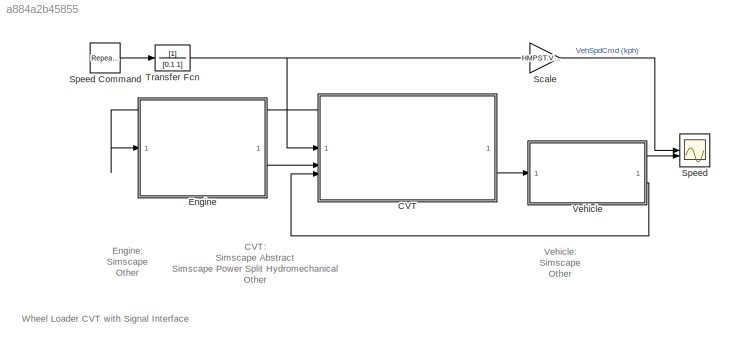
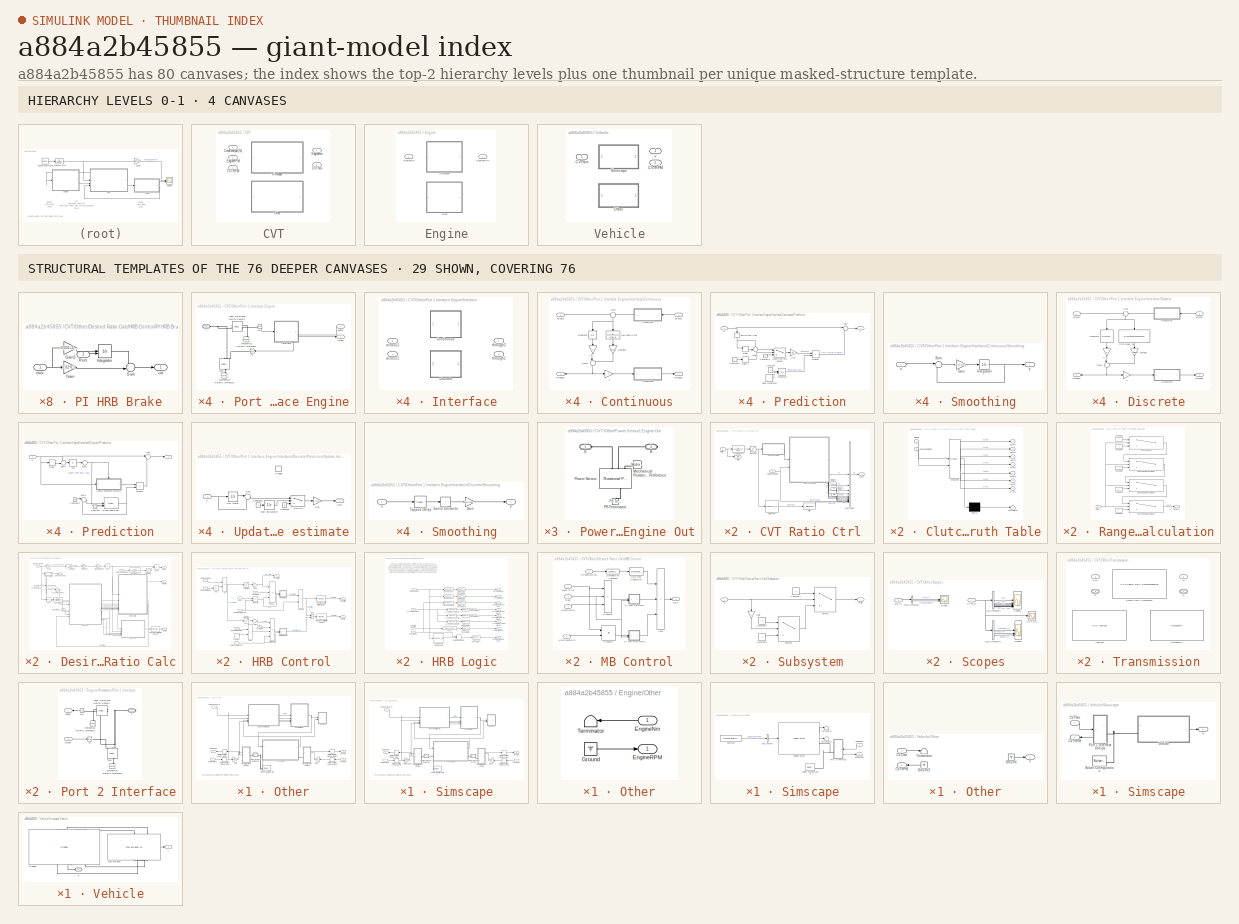
[diagram: thumbnail index - top-2 hierarchy levels (4 canvases) + 29 structural-template representatives of the remaining 76 canvases]
MODEL slx_a884a2b45855
KIND model
CONFIG AbsTol = 1e-3
CONFIG SolverName = ode23t
CONFIG StartFcn = tic
CONFIG StopFcn = Elapsed_Sim_Time = toc;\ndisp(['Elapsed Sim Time = ' num2str(Elapsed_Sim_Time)]);
CONFIG StopTime = 70
BLOCK [SubSystem] CVT
  AttributesFormatString = %<LabelModeActiveChoice>
  LabelModeActiveChoice = Simscape
  Variant = on
  VariantControl = CVT
  VariantControlMode = label
BLOCK [Outport] CVT/CVTNm
  Port = 2
BLOCK [Inport] CVT/CVTRPM
  Port = 3
BLOCK [Inport] CVT/CmdVehSpd (%)
BLOCK [Outport] CVT/EngineNm
BLOCK [Inport] CVT/EngineRPM
  Port = 2
BLOCK [SubSystem] CVT/Other
  VariantControl = Other
BLOCK [SubSystem] CVT/Other/CVT Ratio Ctrl
BLOCK [BusCreator] CVT/Other/CVT Ratio Ctrl/Bus Creator
  DisplayOption = bar
  InheritFromInputs = on
  Inputs = 12
BLOCK [Outport] CVT/Other/CVT Ratio Ctrl/CVT Ctrl
BLOCK [SubSystem] CVT/Other/CVT Ratio Ctrl/Clutch Truth Table
  ErrorFcn = Stateflow.Translate.translate
  PermitHierarchicalResolution = ExplicitOnly
  SFBlockType = Chart
  TreatAsAtomicUnit = on
BLOCK [Demux] CVT/Other/CVT Ratio Ctrl/Clutch Truth Table/ Demux 
  Outputs = 1
BLOCK [S-Function] CVT/Other/CVT Ratio Ctrl/Clutch Truth Table/ SFunction 
  EnableBusSupport = off
  FunctionName = sf_sfun
  PortCounts = [2 8]
  SFcnIsStateOwnerBlock = off
  SFunctionDeploymentMode = off
  Tag = Stateflow S-Function 2
BLOCK [Terminator] CVT/Other/CVT Ratio Ctrl/Clutch Truth Table/ Terminator 
BLOCK [Inport] CVT/Other/CVT Ratio Ctrl/Clutch Truth Table/CmdVehSpdDir
  Port = 2
BLOCK [Outport] CVT/Other/CVT Ratio Ctrl/Clutch Truth Table/K1Actv
BLOCK [Outport] CVT/Other/CVT Ratio Ctrl/Clutch Truth Table/K2Actv
  Port = 2
BLOCK [Outport] CVT/Other/CVT Ratio Ctrl/Clutch Truth Table/K3Actv
  Port = 3
BLOCK [Outport] CVT/Other/CVT Ratio Ctrl/Clutch Truth Table/K4Actv
  Port = 4
BLOCK [Outport] CVT/Other/CVT Ratio Ctrl/Clutch Truth Table/KbActv
  Port = 5
BLOCK [Outport] CVT/Other/CVT Ratio Ctrl/Clutch Truth Table/KrActv
  Port = 7
BLOCK [Outport] CVT/Other/CVT Ratio Ctrl/Clutch Truth Table/KvActv
  Port = 6
BLOCK [Inport] CVT/Other/CVT Ratio Ctrl/Clutch Truth Table/Range
BLOCK [Inport] CVT/Other/CVT Ratio Ctrl/CmdVehSpdDir
  Port = 2
BLOCK [StateSpace] CVT/Other/CVT Ratio Ctrl/Filter
  A = -200
  C = 200
  D = 0
  InitialCondition = HMPST.Ctrl.Swash.XY_A(1,1)/200
BLOCK [From] CVT/Other/CVT Ratio Ctrl/From
  GotoTag = ratio
BLOCK [Goto] CVT/Other/CVT Ratio Ctrl/Goto
  GotoTag = ratio
BLOCK [Inport] CVT/Other/CVT Ratio Ctrl/HRBCtrl (-)
  Port = 3
BLOCK [Inport] CVT/Other/CVT Ratio Ctrl/MBCtrl (-)
  Port = 4
BLOCK [SubSystem] CVT/Other/CVT Ratio Ctrl/Range Calculation
BLOCK [Switch] CVT/Other/CVT Ratio Ctrl/Range Calculation/Check Range 0 or higher
  InputSameDT = off
  SaturateOnIntegerOverflow = off
  Threshold = XY_I(1,2)
BLOCK [Switch] CVT/Other/CVT Ratio Ctrl/Range Calculation/Check Range 2 or higher
  InputSameDT = off
  SaturateOnIntegerOverflow = off
  Threshold = XY_I(2,2)
BLOCK [Switch] CVT/Other/CVT Ratio Ctrl/Range Calculation/Check Range 3 or higher
  InputSameDT = off
  SaturateOnIntegerOverflow = off
  Threshold = XY_I(3,2)
BLOCK [Switch] CVT/Other/CVT Ratio Ctrl/Range Calculation/Check Range 4
  InputSameDT = off
  SaturateOnIntegerOverflow = off
  Threshold = XY_I(4,2)
BLOCK [Constant] CVT/Other/CVT Ratio Ctrl/Range Calculation/Constant1
  SampleTime = HMPST.Simu.TimeStep
  Value = 2
BLOCK [Constant] CVT/Other/CVT Ratio Ctrl/Range Calculation/Constant2
  SampleTime = HMPST.Simu.TimeStep
BLOCK [Constant] CVT/Other/CVT Ratio Ctrl/Range Calculation/Constant3
  SampleTime = HMPST.Simu.TimeStep
  Value = -1
BLOCK [Constant] CVT/Other/CVT Ratio Ctrl/Range Calculation/Constant4
  SampleTime = HMPST.Simu.TimeStep
  Value = 3
BLOCK [Constant] CVT/Other/CVT Ratio Ctrl/Range Calculation/Constant5
  SampleTime = HMPST.Simu.TimeStep
  Value = 4
BLOCK [Outport] CVT/Other/CVT Ratio Ctrl/Range Calculation/Range (-)
BLOCK [Inport] CVT/Other/CVT Ratio Ctrl/Range Calculation/Ratio (-)
BLOCK [Inport] CVT/Other/CVT Ratio Ctrl/Ratio (-)
BLOCK [Saturate] CVT/Other/CVT Ratio Ctrl/Saturation
  LowerLimit = 0
  UpperLimit = HMPST.DesignReq.MaxCVTOutputSpeed/HMPST.Eng.wTarget
  ZeroCross = off
BLOCK [Lookup_n-D] CVT/Other/CVT Ratio Ctrl/Swash Ctrl
  BeginIndexSearchUsingPreviousIndexResult = on
  BreakpointsForDimension1 = HMPST.Ctrl.Swash.XY_A(:,2)
  InputPortMap = u0
  InternalRulePriority = Speed
  NumberOfTableDimensions = 1
  RndMeth = Simplest
  Table = HMPST.Ctrl.Swash.XY_A(:,1)
BLOCK [TransferFcn] CVT/Other/CVT Ratio Ctrl/Transfer Fcn
  Denominator = [0.1 1]
BLOCK [Outport] CVT/Other/CVTNm
  Port = 2
BLOCK [Inport] CVT/Other/CVTRPM
  Port = 3
BLOCK [Inport] CVT/Other/CmdVehSpd (%)
BLOCK [SubSystem] CVT/Other/Desired Ratio Calc
BLOCK [Abs] CVT/Other/Desired Ratio Calc/Abs
  SaturateOnIntegerOverflow = off
  ZeroCross = off
BLOCK [Abs] CVT/Other/Desired Ratio Calc/Abs2
  SaturateOnIntegerOverflow = off
  ZeroCross = off
BLOCK [Gain] CVT/Other/Desired Ratio Calc/AccumPress (MPa)
BLOCK [Inport] CVT/Other/Desired Ratio Calc/ActuEngSpd (RPM)
  Port = 2
BLOCK [BusSelector] CVT/Other/Desired Ratio Calc/Bus Selector
  NameLocation = right
  OutputSignals = OutputShaft,P_acc
BLOCK [Inport] CVT/Other/Desired Ratio Calc/CVTFeedback
  Port = 3
BLOCK [Inport] CVT/Other/Desired Ratio Calc/CmdVehSpd (%)
  NameLocation = top
  SampleTime = HMPST.Simu.TimeStep
BLOCK [Outport] CVT/Other/Desired Ratio Calc/CmdVehSpdDir
  Port = 2
BLOCK [Product] CVT/Other/Desired Ratio Calc/Divide
  Inputs = */
BLOCK [Inport] CVT/Other/Desired Ratio Calc/EngTrq (Nm)
  Port = 4
BLOCK [SubSystem] CVT/Other/Desired Ratio Calc/HRB Control
BLOCK [Abs] CVT/Other/Desired Ratio Calc/HRB Control/Abs1
  SaturateOnIntegerOverflow = off
  ZeroCross = off
BLOCK [Inport] CVT/Other/Desired Ratio Calc/HRB Control/AccelCmd
  Port = 4
BLOCK [Sum] CVT/Other/Desired Ratio Calc/HRB Control/Add
  IconShape = rectangular
  Inputs = +-
BLOCK [Sum] CVT/Other/Desired Ratio Calc/HRB Control/Add2
  IconShape = rectangular
BLOCK [Sum] CVT/Other/Desired Ratio Calc/HRB Control/Add3
  IconShape = rectangular
  Inputs = -+
BLOCK [Constant] CVT/Other/Desired Ratio Calc/HRB Control/Constant
BLOCK [Inport] CVT/Other/Desired Ratio Calc/HRB Control/DecelCmd
  Port = 3
BLOCK [Outport] CVT/Other/Desired Ratio Calc/HRB Control/DecelError
  Port = 3
BLOCK [Inport] CVT/Other/Desired Ratio Calc/HRB Control/EngineBrkTrqOut
  Port = 5
BLOCK [Gain] CVT/Other/Desired Ratio Calc/HRB Control/Gain1
  Gain = -1
BLOCK [Gain] CVT/Other/Desired Ratio Calc/HRB Control/Gain2
  Gain = -1
BLOCK [Outport] CVT/Other/Desired Ratio Calc/HRB Control/HRBCtrl
BLOCK [Outport] CVT/Other/Desired Ratio Calc/HRB Control/HRBCtrlBrk
  Port = 2
BLOCK [Inport] CVT/Other/Desired Ratio Calc/HRB Control/HRBLoEnergyLim
  Port = 7
BLOCK [Inport] CVT/Other/Desired Ratio Calc/HRB Control/HRBUpEnergyLim
  Port = 6
BLOCK [SubSystem] CVT/Other/Desired Ratio Calc/HRB Control/PI HRB Brake
BLOCK [Gain] CVT/Other/Desired Ratio Calc/HRB Control/PI HRB Brake/Gain
  Gain = 0.02*0.2
BLOCK [Gain] CVT/Other/Desired Ratio Calc/HRB Control/PI HRB Brake/Gain3
  Gain = 0.002+0.0005
BLOCK [Integrator] CVT/Other/Desired Ratio Calc/HRB Control/PI HRB Brake/Integrator
  ExternalReset = falling
BLOCK [Inport] CVT/Other/Desired Ratio Calc/HRB Control/PI HRB Brake/Rset
  Port = 2
BLOCK [Sum] CVT/Other/Desired Ratio Calc/HRB Control/PI HRB Brake/Sum
  Inputs = ++|
BLOCK [Outport] CVT/Other/Desired Ratio Calc/HRB Control/PI HRB Brake/ctrl
BLOCK [Inport] CVT/Other/Desired Ratio Calc/HRB Control/PI HRB Brake/error
BLOCK [SubSystem] CVT/Other/Desired Ratio Calc/HRB Control/PI HRB Regen
BLOCK [Gain] CVT/Other/Desired Ratio Calc/HRB Control/PI HRB Regen/Gain
  Gain = 0.01*0.2
BLOCK [Gain] CVT/Other/Desired Ratio Calc/HRB Control/PI HRB Regen/Gain3
  Gain = 0.001
BLOCK [Integrator] CVT/Other/Desired Ratio Calc/HRB Control/PI HRB Regen/Integrator
  ExternalReset = falling
BLOCK [Inport] CVT/Other/Desired Ratio Calc/HRB Control/PI HRB Regen/Rset
  Port = 2
BLOCK [Sum] CVT/Other/Desired Ratio Calc/HRB Control/PI HRB Regen/Sum
  Inputs = ++|
BLOCK [Outport] CVT/Other/Desired Ratio Calc/HRB Control/PI HRB Regen/ctrl
BLOCK [Inport] CVT/Other/Desired Ratio Calc/HRB Control/PI HRB Regen/error
BLOCK [Product] CVT/Other/Desired Ratio Calc/HRB Control/Product
  Inputs = 3
BLOCK [Product] CVT/Other/Desired Ratio Calc/HRB Control/Product1
BLOCK [Product] CVT/Other/Desired Ratio Calc/HRB Control/Product2
BLOCK [Product] CVT/Other/Desired Ratio Calc/HRB Control/Product5
  Inputs = 4
BLOCK [Inport] CVT/Other/Desired Ratio Calc/HRB Control/Rset
  Port = 8
BLOCK [Saturate] CVT/Other/Desired Ratio Calc/HRB Control/Saturation1
  LowerLimit = -inf
  UpperLimit = 0
  ZeroCross = off
BLOCK [Saturate] CVT/Other/Desired Ratio Calc/HRB Control/Saturation2
  LowerLimit = 0
  UpperLimit = inf
  ZeroCross = off
BLOCK [Reference] CVT/Other/Desired Ratio Calc/HRB Control/Transfer Fcn (with initial outputs)  REF=simulink_extras/Additional
Linear/Transfer Fcn
(with initial outputs)
  SourceBlock = simulink_extras/Additional\nLinear/Transfer Fcn\n(with initial outputs)
  SourceType = Transfer Function with Initial Outputs
BLOCK [Reference] CVT/Other/Desired Ratio Calc/HRB Control/Transfer Fcn (with initial outputs)1  REF=simulink_extras/Additional
Linear/Transfer Fcn
(with initial outputs)
  SourceBlock = simulink_extras/Additional\nLinear/Transfer Fcn\n(with initial outputs)
  SourceType = Transfer Function with Initial Outputs
BLOCK [Inport] CVT/Other/Desired Ratio Calc/HRB Control/wTransOutCmd
BLOCK [Inport] CVT/Other/Desired Ratio Calc/HRB Control/wTransOutMeas
  Port = 2
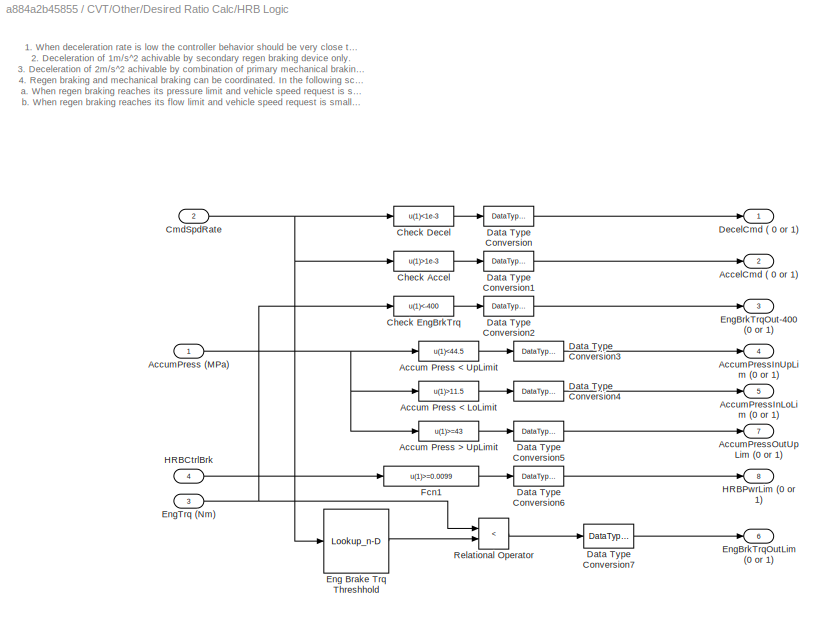
BLOCK [SubSystem] CVT/Other/Desired Ratio Calc/HRB Logic
BLOCK [Outport] CVT/Other/Desired Ratio Calc/HRB Logic/AccelCmd ( 0 or 1)
  Port = 2
BLOCK [Fcn] CVT/Other/Desired Ratio Calc/HRB Logic/Accum Press < LoLimit
  Expr = u(1)>11.5
BLOCK [Fcn] CVT/Other/Desired Ratio Calc/HRB Logic/Accum Press < UpLimit
  Expr = u(1)<44.5
BLOCK [Fcn] CVT/Other/Desired Ratio Calc/HRB Logic/Accum Press > UpLimit
  Expr = u(1)>=43
BLOCK [Inport] CVT/Other/Desired Ratio Calc/HRB Logic/AccumPress (MPa)
BLOCK [Outport] CVT/Other/Desired Ratio Calc/HRB Logic/AccumPressInLoLim (0 or 1)
  Port = 5
BLOCK [Outport] CVT/Other/Desired Ratio Calc/HRB Logic/AccumPressInUpLim (0 or 1)
  Port = 4
BLOCK [Outport] CVT/Other/Desired Ratio Calc/HRB Logic/AccumPressOutUpLim (0 or 1)
  Port = 7
BLOCK [Fcn] CVT/Other/Desired Ratio Calc/HRB Logic/Check Accel
  Expr = u(1)>1e-3
BLOCK [Fcn] CVT/Other/Desired Ratio Calc/HRB Logic/Check Decel
  Expr = u(1)<1e-3
BLOCK [Fcn] CVT/Other/Desired Ratio Calc/HRB Logic/Check EngBrkTrq
  Expr = u(1)<-400
BLOCK [Inport] CVT/Other/Desired Ratio Calc/HRB Logic/CmdSpdRate
  Port = 2
BLOCK [DataTypeConversion] CVT/Other/Desired Ratio Calc/HRB Logic/Data Type Conversion
  OutDataTypeStr = double
  RndMeth = Floor
  SaturateOnIntegerOverflow = off
BLOCK [DataTypeConversion] CVT/Other/Desired Ratio Calc/HRB Logic/Data Type Conversion1
  OutDataTypeStr = double
  RndMeth = Floor
  SaturateOnIntegerOverflow = off
BLOCK [DataTypeConversion] CVT/Other/Desired Ratio Calc/HRB Logic/Data Type Conversion2
  OutDataTypeStr = double
  RndMeth = Floor
  SaturateOnIntegerOverflow = off
BLOCK [DataTypeConversion] CVT/Other/Desired Ratio Calc/HRB Logic/Data Type Conversion3
  OutDataTypeStr = double
  RndMeth = Floor
  SaturateOnIntegerOverflow = off
BLOCK [DataTypeConversion] CVT/Other/Desired Ratio Calc/HRB Logic/Data Type Conversion4
  OutDataTypeStr = double
  RndMeth = Floor
  SaturateOnIntegerOverflow = off
BLOCK [DataTypeConversion] CVT/Other/Desired Ratio Calc/HRB Logic/Data Type Conversion5
  OutDataTypeStr = double
  RndMeth = Floor
  SaturateOnIntegerOverflow = off
BLOCK [DataTypeConversion] CVT/Other/Desired Ratio Calc/HRB Logic/Data Type Conversion6
  OutDataTypeStr = double
  RndMeth = Floor
  SaturateOnIntegerOverflow = off
BLOCK [DataTypeConversion] CVT/Other/Desired Ratio Calc/HRB Logic/Data Type Conversion7
  OutDataTypeStr = double
  RndMeth = Floor
  SaturateOnIntegerOverflow = off
BLOCK [Outport] CVT/Other/Desired Ratio Calc/HRB Logic/DecelCmd ( 0 or 1)
BLOCK [Lookup_n-D] CVT/Other/Desired Ratio Calc/HRB Logic/Eng Brake Trq Threshhold
  BreakpointsForDimension1 = [-3 -2 -1 -0.5 0 1]
  InputPortMap = u0
  InternalRulePriority = Speed
  NumberOfTableDimensions = 1
  RndMeth = Simplest
  Table = [-450 -450 -225 -113 0 0]*0.6
BLOCK [Outport] CVT/Other/Desired Ratio Calc/HRB Logic/EngBrkTrqOut-400 (0 or 1)
  Port = 3
BLOCK [Outport] CVT/Other/Desired Ratio Calc/HRB Logic/EngBrkTrqOutLim (0 or 1)
  Port = 6
BLOCK [Inport] CVT/Other/Desired Ratio Calc/HRB Logic/EngTrq (Nm)
  Port = 3
BLOCK [Fcn] CVT/Other/Desired Ratio Calc/HRB Logic/Fcn1
  Expr = u(1)>=0.0099
BLOCK [Inport] CVT/Other/Desired Ratio Calc/HRB Logic/HRBCtrlBrk
  Port = 4
BLOCK [Outport] CVT/Other/Desired Ratio Calc/HRB Logic/HRBPwrLim (0 or 1)
  Port = 8
BLOCK [RelationalOperator] CVT/Other/Desired Ratio Calc/HRB Logic/Relational Operator
  InputSameDT = off
  Operator = <
  OutDataTypeStr = boolean
  ZeroCross = off
BLOCK [Outport] CVT/Other/Desired Ratio Calc/HRBCtrl (-)
  Port = 3
BLOCK [SubSystem] CVT/Other/Desired Ratio Calc/MB Control
BLOCK [Inport] CVT/Other/Desired Ratio Calc/MB Control/AccumLimUp
  Port = 4
BLOCK [Sum] CVT/Other/Desired Ratio Calc/MB Control/Add1
  IconShape = rectangular
  Inputs = +++
BLOCK [Reference] CVT/Other/Desired Ratio Calc/MB Control/Compare To Constant  REF=simulink/Logic and Bit
Operations/Compare
To Constant
  SourceBlock = simulink/Logic and Bit\nOperations/Compare\nTo Constant
  SourceType = Compare To Constant
BLOCK [DataTypeConversion] CVT/Other/Desired Ratio Calc/MB Control/Data Type Conversion
  OutDataTypeStr = double
  RndMeth = Floor
  SaturateOnIntegerOverflow = off
BLOCK [Inport] CVT/Other/Desired Ratio Calc/MB Control/Decel Error
BLOCK [Inport] CVT/Other/Desired Ratio Calc/MB Control/HRBPowerLim
  Port = 5
BLOCK [Outport] CVT/Other/Desired Ratio Calc/MB Control/Out1
BLOCK [SubSystem] CVT/Other/Desired Ratio Calc/MB Control/PI MB No HRB
BLOCK [Gain] CVT/Other/Desired Ratio Calc/MB Control/PI MB No HRB/Gain
  Gain = 0.01
BLOCK [Gain] CVT/Other/Desired Ratio Calc/MB Control/PI MB No HRB/Gain3
  Gain = 0.002
BLOCK [Integrator] CVT/Other/Desired Ratio Calc/MB Control/PI MB No HRB/Integrator
  ExternalReset = falling
BLOCK [Inport] CVT/Other/Desired Ratio Calc/MB Control/PI MB No HRB/Rset
  Port = 2
BLOCK [Sum] CVT/Other/Desired Ratio Calc/MB Control/PI MB No HRB/Sum
  Inputs = ++|
BLOCK [Outport] CVT/Other/Desired Ratio Calc/MB Control/PI MB No HRB/ctrl
BLOCK [Inport] CVT/Other/Desired Ratio Calc/MB Control/PI MB No HRB/error
BLOCK [SubSystem] CVT/Other/Desired Ratio Calc/MB Control/PI MB with MRB
BLOCK [Gain] CVT/Other/Desired Ratio Calc/MB Control/PI MB with MRB/Gain
  Gain = 0.005
BLOCK [Gain] CVT/Other/Desired Ratio Calc/MB Control/PI MB with MRB/Gain3
  Gain = 0.002
BLOCK [Integrator] CVT/Other/Desired Ratio Calc/MB Control/PI MB with MRB/Integrator
  ExternalReset = falling
BLOCK [Inport] CVT/Other/Desired Ratio Calc/MB Control/PI MB with MRB/Rset
  Port = 2
BLOCK [Sum] CVT/Other/Desired Ratio Calc/MB Control/PI MB with MRB/Sum
  Inputs = ++|
BLOCK [Outport] CVT/Other/Desired Ratio Calc/MB Control/PI MB with MRB/ctrl
BLOCK [Inport] CVT/Other/Desired Ratio Calc/MB Control/PI MB with MRB/error
BLOCK [Product] CVT/Other/Desired Ratio Calc/MB Control/Product3
  Inputs = 3
BLOCK [Product] CVT/Other/Desired Ratio Calc/MB Control/Product4
BLOCK [Inport] CVT/Other/Desired Ratio Calc/MB Control/Rset
  Port = 3
BLOCK [Inport] CVT/Other/Desired Ratio Calc/MB Control/wTransOutCmd
  Port = 2
BLOCK [Outport] CVT/Other/Desired Ratio Calc/MBCtrl (-)
  Port = 4
BLOCK [Outport] CVT/Other/Desired Ratio Calc/Ratio (-)
BLOCK [Saturate] CVT/Other/Desired Ratio Calc/Saturation
  LowerLimit = 0.5
  UpperLimit = 2500
BLOCK [Gain] CVT/Other/Desired Ratio Calc/Scale
  Gain = HMPST.Veh.TopSpeed/100
BLOCK [SubSystem] CVT/Other/Desired Ratio Calc/Subsystem
BLOCK [Constant] CVT/Other/Desired Ratio Calc/Subsystem/Constant1
BLOCK [Constant] CVT/Other/Desired Ratio Calc/Subsystem/Constant2
  Value = -1
BLOCK [Constant] CVT/Other/Desired Ratio Calc/Subsystem/Constant3
  Value = 0
BLOCK [Gain] CVT/Other/Desired Ratio Calc/Subsystem/Gain
  Gain = -1
  NameLocation = left
BLOCK [Switch] CVT/Other/Desired Ratio Calc/Subsystem/Switch
  Criteria = u2 > Threshold
  InputSameDT = off
  SaturateOnIntegerOverflow = off
  Threshold = 0.001
BLOCK [Switch] CVT/Other/Desired Ratio Calc/Subsystem/Switch1
  Criteria = u2 > Threshold
  InputSameDT = off
  SaturateOnIntegerOverflow = off
  Threshold = 0.001
BLOCK [Inport] CVT/Other/Desired Ratio Calc/Subsystem/u
BLOCK [Outport] CVT/Other/Desired Ratio Calc/Subsystem/u_dir
BLOCK [TransferFcn] CVT/Other/Desired Ratio Calc/Transfer Fcn
  Denominator = [0.01 1]
  Numerator = [0.5 0]
BLOCK [Reference] CVT/Other/Desired Ratio Calc/Transfer Fcn (with initial outputs)2  REF=simulink_extras/Additional
Linear/Transfer Fcn
(with initial outputs)
  SourceBlock = simulink_extras/Additional\nLinear/Transfer Fcn\n(with initial outputs)
  SourceType = Transfer Function with Initial Outputs
BLOCK [TransferFcn] CVT/Other/Desired Ratio Calc/Transfer Fcn1
  Denominator = [0.01 1]
BLOCK [Gain] CVT/Other/Desired Ratio Calc/WRPM to ORPM
  Gain = HMPST.OutputTransferGearPair.Ratio*HMPST.Differential.Ratio*HMPST.FinalDrive.Ratio
BLOCK [Gain] CVT/Other/Desired Ratio Calc/km//h to m//s
  Gain = 1/3.6
BLOCK [Gain] CVT/Other/Desired Ratio Calc/m//s to RPM
  Gain = 1/HMPST.Tire.Rad*30/pi
BLOCK [Outport] CVT/Other/EngineNm
BLOCK [Inport] CVT/Other/EngineRPM
  Port = 2
BLOCK [Gain] CVT/Other/Gain
  Gain = pi/30
BLOCK [Gain] CVT/Other/Gain1
  Gain = pi/30
BLOCK [SubSystem] CVT/Other/Port 1 Interface Engine
  PortSchema = {"entries":[{"content":{"sides":[{"content":{"connectorIds":["LConn1"]},"type":"ConnectorPlacement.EquallySpacedRectSide","uuid":"a6d4a9fd-b5aa-40dc-ab7e-2b646b9b57bc"},{"content":{"connectorIds":["Out1","In1"],"side":"RIGHT"},"type":"ConnectorPlacement.EquallySpacedRectSide","uuid":"31bb6273-5b9b-48d0-a1a2-6fbacb979b97"},{"content":{"connectorIds":[],"side":"TOP"},"type":"ConnectorPlacement.Equal...<+249ch>  <repeated x4 — deduplicated; at blocks: Port 1 Interface Engine, Port 1 Interface Vehicle>
BLOCK [PMIOPort] CVT/Other/Port 1 Interface Engine/1
  Side = Left
BLOCK [Reference] CVT/Other/Port 1 Interface Engine/Ideal Rotational Motion Sensor1  REF=fl_lib/Mechanical/Mechanical Sensors/Ideal Rotational
Motion Sensor
  SourceBlock = fl_lib/Mechanical/Mechanical Sensors/Ideal Rotational\nMotion Sensor
  SourceType = Ideal Rotational\nMotion Sensor
BLOCK [SubSystem] CVT/Other/Port 1 Interface Engine/Interface
  LabelModeActiveChoice = Continuous
  PortSchema = {"entries":[{"content":{"sides":[{"content":{"connectorIds":["In1","Out2"]},"type":"ConnectorPlacement.EquallySpacedRectSide","uuid":"aa56821c-7799-44e3-b228-553c5b43a68d"},{"content":{"connectorIds":["In2","Out1"],"side":"RIGHT"},"type":"ConnectorPlacement.EquallySpacedRectSide","uuid":"8658dee5-55e2-4f33-bdec-e6600ce27fc1"},{"content":{"connectorIds":[],"side":"TOP"},"type":"ConnectorPlacement.E...<+253ch>  <repeated x4 — deduplicated; at blocks: Interface>
  Variant = on
  VariantControl = Variant1
  VariantControlMode = label
BLOCK [SubSystem] CVT/Other/Port 1 Interface Engine/Interface/Continuous
  VariantControl = Continuous
BLOCK [Gain] CVT/Other/Port 1 Interface Engine/Interface/Continuous/-1
  Gain = -1
  OutDataTypeStr = Inherit: Same as input
  ParamDataTypeStr = Inherit: Same as input
  SaturateOnIntegerOverflow = on
BLOCK [Integrator] CVT/Other/Port 1 Interface Engine/Interface/Continuous/Integrator
  InitialCondition = x0
  NameLocation = left
BLOCK [Gain] CVT/Other/Port 1 Interface Engine/Interface/Continuous/K
  Gain = K
  NameLocation = left
  OutDataTypeStr = Inherit: Same as input
  ParamDataTypeStr = Inherit: Same as input
  SaturateOnIntegerOverflow = on
BLOCK [Gain] CVT/Other/Port 1 Interface Engine/Interface/Continuous/Lambda
  Gain = Lambda
  NameLocation = right
  OutDataTypeStr = Inherit: Same as input
  ParamDataTypeStr = Inherit: Same as input
  SaturateOnIntegerOverflow = on
BLOCK [TransferFcn] CVT/Other/Port 1 Interface Engine/Interface/Continuous/Low-pass filter
  Denominator = [tau 1]
  NameLocation = right
  Numerator = 1
BLOCK [SubSystem] CVT/Other/Port 1 Interface Engine/Interface/Continuous/Prediction
  Commented = through
BLOCK [Gain] CVT/Other/Port 1 Interface Engine/Interface/Continuous/Prediction/1//h2
  Gain = 1/h2
BLOCK [Constant] CVT/Other/Port 1 Interface Engine/Interface/Continuous/Prediction/Constant
  SampleTime = h2
BLOCK [Constant] CVT/Other/Port 1 Interface Engine/Interface/Continuous/Prediction/Constant1
  SampleTime = h2
  Value = 0
BLOCK [Constant] CVT/Other/Port 1 Interface Engine/Interface/Continuous/Prediction/Constant2
  SampleTime = h2
BLOCK [Delay] CVT/Other/Port 1 Interface Engine/Interface/Continuous/Prediction/Delay 
  DelayLength = 1
  InputPortMap = u0
  SampleTime = h2
BLOCK [Delay] CVT/Other/Port 1 Interface Engine/Interface/Continuous/Prediction/Delay 1
  DelayLength = 1
  InputPortMap = u0
  SampleTime = h2
BLOCK [Switch] CVT/Other/Port 1 Interface Engine/Interface/Continuous/Prediction/Ignore the first output
  Criteria = u2 > Threshold
  InputSameDT = off
  SaturateOnIntegerOverflow = off
BLOCK [Integrator] CVT/Other/Port 1 Interface Engine/Interface/Continuous/Prediction/Integrator
  ExternalReset = either
  LimitOutput = on
  LowerSaturationLimit = 0
  UpperSaturationLimit = 1
BLOCK [Product] CVT/Other/Port 1 Interface Engine/Interface/Continuous/Prediction/Product
BLOCK [DiscretePulseGenerator] CVT/Other/Port 1 Interface Engine/Interface/Continuous/Prediction/Pulse Generator
  SampleTime = h2
BLOCK [Sum] CVT/Other/Port 1 Interface Engine/Interface/Continuous/Prediction/Sum
  Inputs = |++
BLOCK [Sum] CVT/Other/Port 1 Interface Engine/Interface/Continuous/Prediction/Sum4
  Inputs = +-|
BLOCK [ZeroOrderHold] CVT/Other/Port 1 Interface Engine/Interface/Continuous/Prediction/Zero-Order Hold
  NameLocation = right
  SampleTime = h2
BLOCK [Inport] CVT/Other/Port 1 Interface Engine/Interface/Continuous/Prediction/u
BLOCK [Outport] CVT/Other/Port 1 Interface Engine/Interface/Continuous/Prediction/y
BLOCK [SubSystem] CVT/Other/Port 1 Interface Engine/Interface/Continuous/Smoothing
  Commented = through
BLOCK [Gain] CVT/Other/Port 1 Interface Engine/Interface/Continuous/Smoothing/Gain
  Gain = 1/tsSmoothing
BLOCK [Integrator] CVT/Other/Port 1 Interface Engine/Interface/Continuous/Smoothing/Integrator
  InitialCondition = smoothing0
BLOCK [Sum] CVT/Other/Port 1 Interface Engine/Interface/Continuous/Smoothing/Sum
  Inputs = |+-
BLOCK [Inport] CVT/Other/Port 1 Interface Engine/Interface/Continuous/Smoothing/u
BLOCK [Outport] CVT/Other/Port 1 Interface Engine/Interface/Continuous/Smoothing/y
BLOCK [Sum] CVT/Other/Port 1 Interface Engine/Interface/Continuous/Sum
  InputSameDT = on
  Inputs = +-
  NameLocation = left
  OutDataTypeStr = Inherit: Same as first input
  SaturateOnIntegerOverflow = on
BLOCK [Sum] CVT/Other/Port 1 Interface Engine/Interface/Continuous/Sum2
  Inputs = |++
  NameLocation = left
BLOCK [Inport] CVT/Other/Port 1 Interface Engine/Interface/Continuous/across1
  Port = 2
BLOCK [Inport] CVT/Other/Port 1 Interface Engine/Interface/Continuous/across2
BLOCK [Outport] CVT/Other/Port 1 Interface Engine/Interface/Continuous/through1
  Port = 2
BLOCK [Outport] CVT/Other/Port 1 Interface Engine/Interface/Continuous/through2
BLOCK [SubSystem] CVT/Other/Port 1 Interface Engine/Interface/Discrete
  VariantControl = Discrete
BLOCK [Gain] CVT/Other/Port 1 Interface Engine/Interface/Discrete/-1
  Gain = -1
  OutDataTypeStr = Inherit: Same as input
  ParamDataTypeStr = Inherit: Same as input
  SaturateOnIntegerOverflow = on
BLOCK [DiscreteTransferFcn] CVT/Other/Port 1 Interface Engine/Interface/Discrete/First-order lag
  Denominator = [tau h1-tau]
  InputPortMap = u0
  NameLocation = right
  Numerator = h1
  SampleTime = h1
BLOCK [DiscreteIntegrator] CVT/Other/Port 1 Interface Engine/Interface/Discrete/Integrator
  ICPrevOutput = DiscIntNeverNeededParam
  ICPrevScaledInput = DiscIntNeverNeededParam
  InitialCondition = x0
  InitialConditionSetting = Auto
  NameLocation = left
  SampleTime = h1
BLOCK [Gain] CVT/Other/Port 1 Interface Engine/Interface/Discrete/K
  Gain = K
  NameLocation = left
  OutDataTypeStr = Inherit: Same as input
  ParamDataTypeStr = Inherit: Same as input
  SaturateOnIntegerOverflow = on
BLOCK [Gain] CVT/Other/Port 1 Interface Engine/Interface/Discrete/Lambda
  Gain = Lambda
  NameLocation = right
  OutDataTypeStr = Inherit: Same as input
  ParamDataTypeStr = Inherit: Same as input
  SaturateOnIntegerOverflow = on
BLOCK [SubSystem] CVT/Other/Port 1 Interface Engine/Interface/Discrete/Prediction
  Commented = through
BLOCK [Abs] CVT/Other/Port 1 Interface Engine/Interface/Discrete/Prediction/Abs
  SaturateOnIntegerOverflow = off
BLOCK [Constant] CVT/Other/Port 1 Interface Engine/Interface/Discrete/Prediction/Constant
  SampleTime = h1
  Value = 0
BLOCK [Constant] CVT/Other/Port 1 Interface Engine/Interface/Discrete/Prediction/Constant2
  SampleTime = h1
  Value = h1
BLOCK [Delay] CVT/Other/Port 1 Interface Engine/Interface/Discrete/Prediction/Delay 
  DelayLength = 1
  InputPortMap = u0
  SampleTime = h1
BLOCK [Product] CVT/Other/Port 1 Interface Engine/Interface/Discrete/Prediction/Product
BLOCK [Delay] CVT/Other/Port 1 Interface Engine/Interface/Discrete/Prediction/Resettable Delay
  DelayLength = 1
  ExternalReset = Rising
  InitialConditionSource = Input port
  InputPortMap = u0,r5,p4
  SampleTime = h1
BLOCK [Sum] CVT/Other/Port 1 Interface Engine/Interface/Discrete/Prediction/Sum
  Inputs = |++
BLOCK [Sum] CVT/Other/Port 1 Interface Engine/Interface/Discrete/Prediction/Sum1
  Inputs = |++
BLOCK [Sum] CVT/Other/Port 1 Interface Engine/Interface/Discrete/Prediction/Sum2
  Inputs = +
BLOCK [Sum] CVT/Other/Port 1 Interface Engine/Interface/Discrete/Prediction/Sum4
  Inputs = +-|
BLOCK [SubSystem] CVT/Other/Port 1 Interface Engine/Interface/Discrete/Prediction/Update derivative estimate
  TreatAsAtomicUnit = on
BLOCK [Gain] CVT/Other/Port 1 Interface Engine/Interface/Discrete/Prediction/Update derivative estimate/1//h2
  Gain = 1/h2
BLOCK [Constant] CVT/Other/Port 1 Interface Engine/Interface/Discrete/Prediction/Update derivative estimate/Constant
  SampleTime = -1
  Value = 0
BLOCK [Constant] CVT/Other/Port 1 Interface Engine/Interface/Discrete/Prediction/Update derivative estimate/Constant1
  SampleTime = -1
BLOCK [Outport] CVT/Other/Port 1 Interface Engine/Interface/Discrete/Prediction/Update derivative estimate/Out1
BLOCK [Sum] CVT/Other/Port 1 Interface Engine/Interface/Discrete/Prediction/Update derivative estimate/Sum
  Inputs = |-+
BLOCK [Switch] CVT/Other/Port 1 Interface Engine/Interface/Discrete/Prediction/Update derivative estimate/Switch
  Criteria = u2 > Threshold
  InputSameDT = off
  SaturateOnIntegerOverflow = off
BLOCK [TriggerPort] CVT/Other/Port 1 Interface Engine/Interface/Discrete/Prediction/Update derivative estimate/Trigger
  StatesWhenEnabling = held
  VariantControl = (inherit)
BLOCK [UnitDelay] CVT/Other/Port 1 Interface Engine/Interface/Discrete/Prediction/Update derivative estimate/Unit Delay
  SampleTime = -1
BLOCK [UnitDelay] CVT/Other/Port 1 Interface Engine/Interface/Discrete/Prediction/Update derivative estimate/Wait one sample
  SampleTime = -1
BLOCK [Inport] CVT/Other/Port 1 Interface Engine/Interface/Discrete/Prediction/Update derivative estimate/u
BLOCK [Inport] CVT/Other/Port 1 Interface Engine/Interface/Discrete/Prediction/u
BLOCK [Outport] CVT/Other/Port 1 Interface Engine/Interface/Discrete/Prediction/y
BLOCK [SubSystem] CVT/Other/Port 1 Interface Engine/Interface/Discrete/Smoothing
  Commented = through
BLOCK [Gain] CVT/Other/Port 1 Interface Engine/Interface/Discrete/Smoothing/Gain
  Gain = 1/nSmooth
BLOCK [Sum] CVT/Other/Port 1 Interface Engine/Interface/Discrete/Smoothing/Sum of Elements
  IconShape = rectangular
  Inputs = +
BLOCK [Reference] CVT/Other/Port 1 Interface Engine/Interface/Discrete/Smoothing/Tapped Delay  REF=simulink/Discrete/Tapped Delay
  SourceBlock = simulink/Discrete/Tapped Delay
  SourceType = Tapped Delay Line
BLOCK [Inport] CVT/Other/Port 1 Interface Engine/Interface/Discrete/Smoothing/u
BLOCK [Outport] CVT/Other/Port 1 Interface Engine/Interface/Discrete/Smoothing/y
BLOCK [Sum] CVT/Other/Port 1 Interface Engine/Interface/Discrete/Sum
  InputSameDT = on
  Inputs = +-
  NameLocation = left
  OutDataTypeStr = Inherit: Same as first input
  SaturateOnIntegerOverflow = on
BLOCK [Sum] CVT/Other/Port 1 Interface Engine/Interface/Discrete/Sum1
  Inputs = |++
  NameLocation = left
BLOCK [Inport] CVT/Other/Port 1 Interface Engine/Interface/Discrete/across1
  Port = 2
BLOCK [Inport] CVT/Other/Port 1 Interface Engine/Interface/Discrete/across2
BLOCK [Outport] CVT/Other/Port 1 Interface Engine/Interface/Discrete/through1
  Port = 2
BLOCK [Outport] CVT/Other/Port 1 Interface Engine/Interface/Discrete/through2
BLOCK [Inport] CVT/Other/Port 1 Interface Engine/Interface/across1
BLOCK [Inport] CVT/Other/Port 1 Interface Engine/Interface/across2
  Port = 2
BLOCK [Outport] CVT/Other/Port 1 Interface Engine/Interface/through1
  Port = 2
BLOCK [Outport] CVT/Other/Port 1 Interface Engine/Interface/through2
BLOCK [Reference] CVT/Other/Port 1 Interface Engine/Mechanical Rotational Reference2  REF=fl_lib/Mechanical/Rotational Elements/Mechanical
Rotational Reference
  NameLocation = right
  SourceBlock = fl_lib/Mechanical/Rotational Elements/Mechanical\nRotational Reference
  SourceType = Mechanical\nRotational Reference
BLOCK [Reference] CVT/Other/Port 1 Interface Engine/Mechanical Rotational Reference3  REF=fl_lib/Mechanical/Rotational Elements/Mechanical
Rotational Reference
  NameLocation = right
  SourceBlock = fl_lib/Mechanical/Rotational Elements/Mechanical\nRotational Reference
  SourceType = Mechanical\nRotational Reference
BLOCK [Reference] CVT/Other/Port 1 Interface Engine/T1  REF=nesl_utility/Simulink-PS
Converter
  SourceBlock = nesl_utility/Simulink-PS\nConverter
  SourceType = Simulink-PS\nConverter
BLOCK [Reference] CVT/Other/Port 1 Interface Engine/Tau1  REF=fl_lib/Mechanical/Mechanical Sources/Ideal Torque Source
  NameLocation = left
  SourceBlock = fl_lib/Mechanical/Mechanical Sources/Ideal Torque Source
  SourceType = Ideal Torque Source
BLOCK [Inport] CVT/Other/Port 1 Interface Engine/speed
BLOCK [Outport] CVT/Other/Port 1 Interface Engine/torque
BLOCK [Reference] CVT/Other/Port 1 Interface Engine/w1  REF=nesl_utility/PS-Simulink
Converter
  SourceBlock = nesl_utility/PS-Simulink\nConverter
  SourceType = PS-Simulink\nConverter
BLOCK [SubSystem] CVT/Other/Port 1 Interface Vehicle
BLOCK [PMIOPort] CVT/Other/Port 1 Interface Vehicle/1
  Side = Left
BLOCK [Reference] CVT/Other/Port 1 Interface Vehicle/Ideal Rotational Motion Sensor1  REF=fl_lib/Mechanical/Mechanical Sensors/Ideal Rotational
Motion Sensor
  SourceBlock = fl_lib/Mechanical/Mechanical Sensors/Ideal Rotational\nMotion Sensor
  SourceType = Ideal Rotational\nMotion Sensor
BLOCK [SubSystem] CVT/Other/Port 1 Interface Vehicle/Interface
  LabelModeActiveChoice = Continuous
  Variant = on
  VariantControl = Variant1
  VariantControlMode = label
BLOCK [SubSystem] CVT/Other/Port 1 Interface Vehicle/Interface/Continuous
  VariantControl = Continuous
BLOCK [Gain] CVT/Other/Port 1 Interface Vehicle/Interface/Continuous/-1
  Gain = -1
  OutDataTypeStr = Inherit: Same as input
  ParamDataTypeStr = Inherit: Same as input
  SaturateOnIntegerOverflow = on
BLOCK [Integrator] CVT/Other/Port 1 Interface Vehicle/Interface/Continuous/Integrator
  InitialCondition = x0
  NameLocation = left
BLOCK [Gain] CVT/Other/Port 1 Interface Vehicle/Interface/Continuous/K
  Gain = K
  NameLocation = left
  OutDataTypeStr = Inherit: Same as input
  ParamDataTypeStr = Inherit: Same as input
  SaturateOnIntegerOverflow = on
BLOCK [Gain] CVT/Other/Port 1 Interface Vehicle/Interface/Continuous/Lambda
  Gain = Lambda
  NameLocation = right
  OutDataTypeStr = Inherit: Same as input
  ParamDataTypeStr = Inherit: Same as input
  SaturateOnIntegerOverflow = on
BLOCK [TransferFcn] CVT/Other/Port 1 Interface Vehicle/Interface/Continuous/Low-pass filter
  Denominator = [tau 1]
  NameLocation = right
  Numerator = 1
BLOCK [SubSystem] CVT/Other/Port 1 Interface Vehicle/Interface/Continuous/Prediction
  Commented = through
BLOCK [Gain] CVT/Other/Port 1 Interface Vehicle/Interface/Continuous/Prediction/1//h2
  Gain = 1/h2
BLOCK [Constant] CVT/Other/Port 1 Interface Vehicle/Interface/Continuous/Prediction/Constant
  SampleTime = h2
BLOCK [Constant] CVT/Other/Port 1 Interface Vehicle/Interface/Continuous/Prediction/Constant1
  SampleTime = h2
  Value = 0
BLOCK [Constant] CVT/Other/Port 1 Interface Vehicle/Interface/Continuous/Prediction/Constant2
  SampleTime = h2
BLOCK [Delay] CVT/Other/Port 1 Interface Vehicle/Interface/Continuous/Prediction/Delay 
  DelayLength = 1
  InputPortMap = u0
  SampleTime = h2
BLOCK [Delay] CVT/Other/Port 1 Interface Vehicle/Interface/Continuous/Prediction/Delay 1
  DelayLength = 1
  InputPortMap = u0
  SampleTime = h2
BLOCK [Switch] CVT/Other/Port 1 Interface Vehicle/Interface/Continuous/Prediction/Ignore the first output
  Criteria = u2 > Threshold
  InputSameDT = off
  SaturateOnIntegerOverflow = off
BLOCK [Integrator] CVT/Other/Port 1 Interface Vehicle/Interface/Continuous/Prediction/Integrator
  ExternalReset = either
  LimitOutput = on
  LowerSaturationLimit = 0
  UpperSaturationLimit = 1
BLOCK [Product] CVT/Other/Port 1 Interface Vehicle/Interface/Continuous/Prediction/Product
BLOCK [DiscretePulseGenerator] CVT/Other/Port 1 Interface Vehicle/Interface/Continuous/Prediction/Pulse Generator
  SampleTime = h2
BLOCK [Sum] CVT/Other/Port 1 Interface Vehicle/Interface/Continuous/Prediction/Sum
  Inputs = |++
BLOCK [Sum] CVT/Other/Port 1 Interface Vehicle/Interface/Continuous/Prediction/Sum4
  Inputs = +-|
BLOCK [ZeroOrderHold] CVT/Other/Port 1 Interface Vehicle/Interface/Continuous/Prediction/Zero-Order Hold
  NameLocation = right
  SampleTime = h2
BLOCK [Inport] CVT/Other/Port 1 Interface Vehicle/Interface/Continuous/Prediction/u
BLOCK [Outport] CVT/Other/Port 1 Interface Vehicle/Interface/Continuous/Prediction/y
BLOCK [SubSystem] CVT/Other/Port 1 Interface Vehicle/Interface/Continuous/Smoothing
  Commented = through
BLOCK [Gain] CVT/Other/Port 1 Interface Vehicle/Interface/Continuous/Smoothing/Gain
  Gain = 1/tsSmoothing
BLOCK [Integrator] CVT/Other/Port 1 Interface Vehicle/Interface/Continuous/Smoothing/Integrator
  InitialCondition = smoothing0
BLOCK [Sum] CVT/Other/Port 1 Interface Vehicle/Interface/Continuous/Smoothing/Sum
  Inputs = |+-
BLOCK [Inport] CVT/Other/Port 1 Interface Vehicle/Interface/Continuous/Smoothing/u
BLOCK [Outport] CVT/Other/Port 1 Interface Vehicle/Interface/Continuous/Smoothing/y
BLOCK [Sum] CVT/Other/Port 1 Interface Vehicle/Interface/Continuous/Sum
  InputSameDT = on
  Inputs = +-
  NameLocation = left
  OutDataTypeStr = Inherit: Same as first input
  SaturateOnIntegerOverflow = on
BLOCK [Sum] CVT/Other/Port 1 Interface Vehicle/Interface/Continuous/Sum2
  Inputs = |++
  NameLocation = left
BLOCK [Inport] CVT/Other/Port 1 Interface Vehicle/Interface/Continuous/across1
  Port = 2
BLOCK [Inport] CVT/Other/Port 1 Interface Vehicle/Interface/Continuous/across2
BLOCK [Outport] CVT/Other/Port 1 Interface Vehicle/Interface/Continuous/through1
  Port = 2
BLOCK [Outport] CVT/Other/Port 1 Interface Vehicle/Interface/Continuous/through2
BLOCK [SubSystem] CVT/Other/Port 1 Interface Vehicle/Interface/Discrete
  VariantControl = Discrete
BLOCK [Gain] CVT/Other/Port 1 Interface Vehicle/Interface/Discrete/-1
  Gain = -1
  OutDataTypeStr = Inherit: Same as input
  ParamDataTypeStr = Inherit: Same as input
  SaturateOnIntegerOverflow = on
BLOCK [DiscreteTransferFcn] CVT/Other/Port 1 Interface Vehicle/Interface/Discrete/First-order lag
  Denominator = [tau h1-tau]
  InputPortMap = u0
  NameLocation = right
  Numerator = h1
  SampleTime = h1
BLOCK [DiscreteIntegrator] CVT/Other/Port 1 Interface Vehicle/Interface/Discrete/Integrator
  ICPrevOutput = DiscIntNeverNeededParam
  ICPrevScaledInput = DiscIntNeverNeededParam
  InitialCondition = x0
  InitialConditionSetting = Auto
  NameLocation = left
  SampleTime = h1
BLOCK [Gain] CVT/Other/Port 1 Interface Vehicle/Interface/Discrete/K
  Gain = K
  NameLocation = left
  OutDataTypeStr = Inherit: Same as input
  ParamDataTypeStr = Inherit: Same as input
  SaturateOnIntegerOverflow = on
BLOCK [Gain] CVT/Other/Port 1 Interface Vehicle/Interface/Discrete/Lambda
  Gain = Lambda
  NameLocation = right
  OutDataTypeStr = Inherit: Same as input
  ParamDataTypeStr = Inherit: Same as input
  SaturateOnIntegerOverflow = on
BLOCK [SubSystem] CVT/Other/Port 1 Interface Vehicle/Interface/Discrete/Prediction
  Commented = through
BLOCK [Abs] CVT/Other/Port 1 Interface Vehicle/Interface/Discrete/Prediction/Abs
  SaturateOnIntegerOverflow = off
BLOCK [Constant] CVT/Other/Port 1 Interface Vehicle/Interface/Discrete/Prediction/Constant
  SampleTime = h1
  Value = 0
BLOCK [Constant] CVT/Other/Port 1 Interface Vehicle/Interface/Discrete/Prediction/Constant2
  SampleTime = h1
  Value = h1
BLOCK [Delay] CVT/Other/Port 1 Interface Vehicle/Interface/Discrete/Prediction/Delay 
  DelayLength = 1
  InputPortMap = u0
  SampleTime = h1
BLOCK [Product] CVT/Other/Port 1 Interface Vehicle/Interface/Discrete/Prediction/Product
BLOCK [Delay] CVT/Other/Port 1 Interface Vehicle/Interface/Discrete/Prediction/Resettable Delay
  DelayLength = 1
  ExternalReset = Rising
  InitialConditionSource = Input port
  InputPortMap = u0,r5,p4
  SampleTime = h1
BLOCK [Sum] CVT/Other/Port 1 Interface Vehicle/Interface/Discrete/Prediction/Sum
  Inputs = |++
BLOCK [Sum] CVT/Other/Port 1 Interface Vehicle/Interface/Discrete/Prediction/Sum1
  Inputs = |++
BLOCK [Sum] CVT/Other/Port 1 Interface Vehicle/Interface/Discrete/Prediction/Sum2
  Inputs = +
BLOCK [Sum] CVT/Other/Port 1 Interface Vehicle/Interface/Discrete/Prediction/Sum4
  Inputs = +-|
BLOCK [SubSystem] CVT/Other/Port 1 Interface Vehicle/Interface/Discrete/Prediction/Update derivative estimate
  TreatAsAtomicUnit = on
BLOCK [Gain] CVT/Other/Port 1 Interface Vehicle/Interface/Discrete/Prediction/Update derivative estimate/1//h2
  Gain = 1/h2
BLOCK [Constant] CVT/Other/Port 1 Interface Vehicle/Interface/Discrete/Prediction/Update derivative estimate/Constant
  SampleTime = -1
  Value = 0
BLOCK [Constant] CVT/Other/Port 1 Interface Vehicle/Interface/Discrete/Prediction/Update derivative estimate/Constant1
  SampleTime = -1
BLOCK [Outport] CVT/Other/Port 1 Interface Vehicle/Interface/Discrete/Prediction/Update derivative estimate/Out1
BLOCK [Sum] CVT/Other/Port 1 Interface Vehicle/Interface/Discrete/Prediction/Update derivative estimate/Sum
  Inputs = |-+
BLOCK [Switch] CVT/Other/Port 1 Interface Vehicle/Interface/Discrete/Prediction/Update derivative estimate/Switch
  Criteria = u2 > Threshold
  InputSameDT = off
  SaturateOnIntegerOverflow = off
BLOCK [TriggerPort] CVT/Other/Port 1 Interface Vehicle/Interface/Discrete/Prediction/Update derivative estimate/Trigger
  StatesWhenEnabling = held
  VariantControl = (inherit)
BLOCK [UnitDelay] CVT/Other/Port 1 Interface Vehicle/Interface/Discrete/Prediction/Update derivative estimate/Unit Delay
  SampleTime = -1
BLOCK [UnitDelay] CVT/Other/Port 1 Interface Vehicle/Interface/Discrete/Prediction/Update derivative estimate/Wait one sample
  SampleTime = -1
BLOCK [Inport] CVT/Other/Port 1 Interface Vehicle/Interface/Discrete/Prediction/Update derivative estimate/u
BLOCK [Inport] CVT/Other/Port 1 Interface Vehicle/Interface/Discrete/Prediction/u
BLOCK [Outport] CVT/Other/Port 1 Interface Vehicle/Interface/Discrete/Prediction/y
BLOCK [SubSystem] CVT/Other/Port 1 Interface Vehicle/Interface/Discrete/Smoothing
  Commented = through
BLOCK [Gain] CVT/Other/Port 1 Interface Vehicle/Interface/Discrete/Smoothing/Gain
  Gain = 1/nSmooth
BLOCK [Sum] CVT/Other/Port 1 Interface Vehicle/Interface/Discrete/Smoothing/Sum of Elements
  IconShape = rectangular
  Inputs = +
BLOCK [Reference] CVT/Other/Port 1 Interface Vehicle/Interface/Discrete/Smoothing/Tapped Delay  REF=simulink/Discrete/Tapped Delay
  SourceBlock = simulink/Discrete/Tapped Delay
  SourceType = Tapped Delay Line
BLOCK [Inport] CVT/Other/Port 1 Interface Vehicle/Interface/Discrete/Smoothing/u
BLOCK [Outport] CVT/Other/Port 1 Interface Vehicle/Interface/Discrete/Smoothing/y
BLOCK [Sum] CVT/Other/Port 1 Interface Vehicle/Interface/Discrete/Sum
  InputSameDT = on
  Inputs = +-
  NameLocation = left
  OutDataTypeStr = Inherit: Same as first input
  SaturateOnIntegerOverflow = on
BLOCK [Sum] CVT/Other/Port 1 Interface Vehicle/Interface/Discrete/Sum1
  Inputs = |++
  NameLocation = left
BLOCK [Inport] CVT/Other/Port 1 Interface Vehicle/Interface/Discrete/across1
  Port = 2
BLOCK [Inport] CVT/Other/Port 1 Interface Vehicle/Interface/Discrete/across2
BLOCK [Outport] CVT/Other/Port 1 Interface Vehicle/Interface/Discrete/through1
  Port = 2
BLOCK [Outport] CVT/Other/Port 1 Interface Vehicle/Interface/Discrete/through2
BLOCK [Inport] CVT/Other/Port 1 Interface Vehicle/Interface/across1
BLOCK [Inport] CVT/Other/Port 1 Interface Vehicle/Interface/across2
  Port = 2
BLOCK [Outport] CVT/Other/Port 1 Interface Vehicle/Interface/through1
  Port = 2
BLOCK [Outport] CVT/Other/Port 1 Interface Vehicle/Interface/through2
BLOCK [Reference] CVT/Other/Port 1 Interface Vehicle/Mechanical Rotational Reference2  REF=fl_lib/Mechanical/Rotational Elements/Mechanical
Rotational Reference
  NameLocation = right
  SourceBlock = fl_lib/Mechanical/Rotational Elements/Mechanical\nRotational Reference
  SourceType = Mechanical\nRotational Reference
BLOCK [Reference] CVT/Other/Port 1 Interface Vehicle/Mechanical Rotational Reference3  REF=fl_lib/Mechanical/Rotational Elements/Mechanical
Rotational Reference
  NameLocation = right
  SourceBlock = fl_lib/Mechanical/Rotational Elements/Mechanical\nRotational Reference
  SourceType = Mechanical\nRotational Reference
BLOCK [Reference] CVT/Other/Port 1 Interface Vehicle/T1  REF=nesl_utility/Simulink-PS
Converter
  SourceBlock = nesl_utility/Simulink-PS\nConverter
  SourceType = Simulink-PS\nConverter
BLOCK [Reference] CVT/Other/Port 1 Interface Vehicle/Tau1  REF=fl_lib/Mechanical/Mechanical Sources/Ideal Torque Source
  NameLocation = left
  SourceBlock = fl_lib/Mechanical/Mechanical Sources/Ideal Torque Source
  SourceType = Ideal Torque Source
BLOCK [Inport] CVT/Other/Port 1 Interface Vehicle/speed
BLOCK [Outport] CVT/Other/Port 1 Interface Vehicle/torque
BLOCK [Reference] CVT/Other/Port 1 Interface Vehicle/w1  REF=nesl_utility/PS-Simulink
Converter
  SourceBlock = nesl_utility/PS-Simulink\nConverter
  SourceType = PS-Simulink\nConverter
BLOCK [SubSystem] CVT/Other/Power Sensor1 Engine Out
BLOCK [Reference] CVT/Other/Power Sensor1 Engine Out/Mechanical Rotational Reference  REF=fl_lib/Mechanical/Rotational Elements/Mechanical
Rotational Reference
  NameLocation = top
  SourceBlock = fl_lib/Mechanical/Rotational Elements/Mechanical\nRotational Reference
  SourceType = Mechanical\nRotational Reference
BLOCK [Reference] CVT/Other/Power Sensor1 Engine Out/PS Terminator  REF=fl_lib/Physical Signals/Sinks/PS Terminator
  NameLocation = left
  SourceBlock = fl_lib/Physical Signals/Sinks/PS Terminator
  SourceType = PS Terminator
BLOCK [Reference] CVT/Other/Power Sensor1 Engine Out/Power Sensor  REF=sdl_lib/Sensors/Rotational Power
Sensor
  NameLocation = left
  SourceBlock = sdl_lib/Sensors/Rotational Power\nSensor
  SourceType = Rotational Power\nSensor
BLOCK [PMIOPort] CVT/Other/Power Sensor1 Engine Out/R
  Port = 2
  Side = Right
BLOCK [PMIOPort] CVT/Other/Power Sensor1 Engine Out/S
  Side = Left
BLOCK [RateTransition] CVT/Other/Rate transition (fast-to-slow)
  Integrity = off
  NameLocation = top
BLOCK [RateTransition] CVT/Other/Rate transition (fast-to-slow)1
  Integrity = off
  NameLocation = top
BLOCK [RateTransition] CVT/Other/Rate transition (slow-to-fast)
  Integrity = off
BLOCK [RateTransition] CVT/Other/Rate transition (slow-to-fast)1
  Integrity = off
BLOCK [SubSystem] CVT/Other/Scopes
BLOCK [BusSelector] CVT/Other/Scopes/Bus Selector1
  OutputSignals = wIn,OutputShaft
BLOCK [BusSelector] CVT/Other/Scopes/Bus Selector2
  NameLocation = top
  OutputSignals = K1,K2,K3,K4,Kb,Kv,Kr
BLOCK [BusSelector] CVT/Other/Scopes/Bus Selector3
  OutputSignals = SwashCtrl,HRBCtrl,MBCtrl
BLOCK [Scope] CVT/Other/Scopes/CVT Ctrl
  ActiveDisplayYMaximum = 1.21887
  ActiveDisplayYMinimum = -0.96987
  DataLoggingVariableName = ScopeData2
  Floating = off
  GraphicalSettings = {"GraphicalSettings":{"LegacySettings":true,"Style":{"AxesScalingProperties":{"ScaleAxesLimitsAtStop":false},"Style":{"AxesColor":"[0 0 0]","ChannelNames":[""],"ColorOrder":"[1 1 0.0666666666666667;0.0745098039215686 0.623529411764706 1;1 0.411764705882353 0.16078431372549;0.392156862745098 0.831372549019608 0.0745098039215686;0.717647058823529 0.274509803921569 1;0.0588235294117647 1 1;1 0.074509...<+659ch>
  MultipleDisplayCache = [{"MaxYLimMag":1.21887,"MaxYLimReal":1.21887,"MinYLimMag":0,"MinYLimReal":-0.96987,"PlotAsMagnitudePhase":false,"ShowGrid":true,"ShowLegend":true,"Title":"%<SignalLabel>","YLabel":""}]
  NumInputPorts = 1
  ShowLegend = on
  WasSavedAsWebScope = on
  WindowPosition = [16 507 898 448]
BLOCK [Inport] CVT/Other/Scopes/CVTCtrl
BLOCK [Scope] CVT/Other/Scopes/Scope
  ActiveDisplayYMaximum = 1460.04785
  ActiveDisplayYMinimum = -1460.02488
  DataLoggingVariableName = ScopeData4
  Floating = off
  GraphicalSettings = {"GraphicalSettings":{"LegacySettings":true,"Style":{"Style":{"AxesColor":"[0 0 0]","ChannelNames":["",""],"ColorOrder":"[1 1 0.0666666666666667;0.0745098039215686 0.623529411764706 1;1 0.411764705882353 0.16078431372549;0.392156862745098 0.831372549019608 0.0745098039215686;0.717647058823529 0.274509803921569 1;0.0588235294117647 1 1;1 0.0745098039215686 0.650980392156863]","CurrentConfiguration"...<+374ch>
  LayoutDimensionsString = [2 1]
  MultipleDisplayCache = [{"MaxYLimMag":1460.04785,"MaxYLimReal":1460.04785,"MinYLimMag":0,"MinYLimReal":-1460.02488,"PlotAsMagnitudePhase":false,"ShowGrid":true,"ShowLegend":false,"Title":"%<SignalLabel>","YLabel":""},{"MaxYLimMag":10,"MaxYLimReal":11.77737,"MinYLimMag":0,"MinYLimReal":10.91361,"PlotAsMagnitudePhase":false,"ShowGrid":true,"ShowLegend":false,"Title":"%<SignalLabel>","YLabel":""}]
  NumInputPorts = 2
  WasSavedAsWebScope = on
  WindowPosition = [434 93 560 420]
BLOCK [Scope] CVT/Other/Scopes/Scope1
  ActiveDisplayYMaximum = 1.125
  ActiveDisplayYMinimum = -0.125
  DataLoggingVariableName = ScopeData3
  Floating = off
  GraphicalSettings = {"GraphicalSettings":{"LegacySettings":true,"Style":{"Style":{"AxesColor":"[0 0 0]","ChannelNames":["","","","","","","",""],"ColorOrder":"[1 1 0.0666666666666667;0.0745098039215686 0.623529411764706 1;1 0.411764705882353 0.16078431372549;0.392156862745098 0.831372549019608 0.0745098039215686;0.717647058823529 0.274509803921569 1;0.0588235294117647 1 1;1 0.0745098039215686 0.650980392156863]","Cur...<+586ch>
  LayoutDimensionsString = [4 2]
  MultipleDisplayCache = [{"MaxYLimMag":1.125,"MaxYLimReal":1.125,"MinYLimMag":0,"MinYLimReal":-0.125,"PlotAsMagnitudePhase":false,"ShowGrid":true,"ShowLegend":false,"Title":"%<SignalLabel>","YLabel":""},{"MaxYLimMag":10,"MaxYLimReal":1.125,"MinYLimMag":0,"MinYLimReal":-0.125,"PlotAsMagnitudePhase":false,"ShowGrid":true,"ShowLegend":false,"Title":"%<SignalLabel>","YLabel":""},{"MaxYLimMag":10,"MaxYLimReal":1.125,"MinYLimM...<+976ch>
  NumInputPorts = 7
  WasSavedAsWebScope = on
BLOCK [Scope] CVT/Other/Scopes/Scope2
  ActiveDisplayYMaximum = 1.21887
  ActiveDisplayYMinimum = -0.96987
  DataLoggingVariableName = ScopeData4
  Floating = off
  GraphicalSettings = {"GraphicalSettings":{"LegacySettings":true,"Style":{"Style":{"AxesColor":"[0 0 0]","ChannelNames":[""],"ColorOrder":"[1 1 0.0666666666666667;0.0745098039215686 0.623529411764706 1;1 0.411764705882353 0.16078431372549;0.392156862745098 0.831372549019608 0.0745098039215686;0.717647058823529 0.274509803921569 1;0.0588235294117647 1 1;1 0.0745098039215686 0.650980392156863]","CurrentConfiguration":"e...<+384ch>
  MultipleDisplayCache = [{"MaxYLimMag":1.21887,"MaxYLimReal":1.21887,"MinYLimMag":0,"MinYLimReal":-0.96987,"PlotAsMagnitudePhase":false,"ShowGrid":true,"ShowLegend":false,"Title":"%<SignalLabel>","YLabel":""}]
  NumInputPorts = 3
  WasSavedAsWebScope = on
BLOCK [Inport] CVT/Other/Scopes/mCVT
  Port = 2
BLOCK [Reference] CVT/Other/Solver Configuration  REF=nesl_utility/Solver
Configuration
  SourceBlock = nesl_utility/Solver\nConfiguration
  SourceType = Solver\nConfiguration
BLOCK [SubSystem] CVT/Other/Transmission
  AttributesFormatString = %<LabelModeActiveChoice>
  LabelModeActiveChoice = Abstract
  Variant = on
  VariantControl = Choice
  VariantControlMode = label
BLOCK [Reference] CVT/Other/Transmission/Abstract  REF=sm_wheel_loader_lib/CVT Abstract  (lib defined in slx_2f13f0afc9e9, slx_78fdec152d5c)
  SourceBlock = sm_wheel_loader_lib/CVT Abstract
  SourceType = Continuously Variable Transmission (Abstract)
BLOCK [Inport] CVT/Other/Transmission/Ctrl
BLOCK [PMIOPort] CVT/Other/Transmission/D
  Port = 2
  Side = Right
BLOCK [PMIOPort] CVT/Other/Transmission/E
  Side = Left
BLOCK [Reference] CVT/Other/Transmission/Hydrostatic  REF=sm_wheel_loader_lib/Hydrostatic  (lib defined in slx_2f13f0afc9e9, slx_78fdec152d5c)
  SourceBlock = sm_wheel_loader_lib/Hydrostatic
BLOCK [Reference] CVT/Other/Transmission/Power Split Hydromech  REF=sm_wheel_loader_lib/CVT Power Split Hydromechanical  (lib defined in slx_2f13f0afc9e9, slx_78fdec152d5c)
  LibrarySourceBlock = sm_wheel_loader_lib/CVT Powersplit Hydromechanical
  SourceBlock = sm_wheel_loader_lib/CVT Power Split Hydromechanical
BLOCK [Outport] CVT/Other/Transmission/m
BLOCK [SubSystem] CVT/Simscape
  VariantControl = Simscape
BLOCK [SubSystem] CVT/Simscape/CVT Ratio Ctrl
BLOCK [BusCreator] CVT/Simscape/CVT Ratio Ctrl/Bus Creator
  DisplayOption = bar
  InheritFromInputs = on
  Inputs = 12
BLOCK [Outport] CVT/Simscape/CVT Ratio Ctrl/CVT Ctrl
BLOCK [SubSystem] CVT/Simscape/CVT Ratio Ctrl/Clutch Truth Table
  ErrorFcn = Stateflow.Translate.translate
  PermitHierarchicalResolution = ExplicitOnly
  SFBlockType = Chart
  TreatAsAtomicUnit = on
BLOCK [Demux] CVT/Simscape/CVT Ratio Ctrl/Clutch Truth Table/ Demux 
  Outputs = 1
BLOCK [S-Function] CVT/Simscape/CVT Ratio Ctrl/Clutch Truth Table/ SFunction 
  EnableBusSupport = off
  FunctionName = sf_sfun
  PortCounts = [2 8]
  SFcnIsStateOwnerBlock = off
  SFunctionDeploymentMode = off
  Tag = Stateflow S-Function 1
BLOCK [Terminator] CVT/Simscape/CVT Ratio Ctrl/Clutch Truth Table/ Terminator 
BLOCK [Inport] CVT/Simscape/CVT Ratio Ctrl/Clutch Truth Table/CmdVehSpdDir
  Port = 2
BLOCK [Outport] CVT/Simscape/CVT Ratio Ctrl/Clutch Truth Table/K1Actv
BLOCK [Outport] CVT/Simscape/CVT Ratio Ctrl/Clutch Truth Table/K2Actv
  Port = 2
BLOCK [Outport] CVT/Simscape/CVT Ratio Ctrl/Clutch Truth Table/K3Actv
  Port = 3
BLOCK [Outport] CVT/Simscape/CVT Ratio Ctrl/Clutch Truth Table/K4Actv
  Port = 4
BLOCK [Outport] CVT/Simscape/CVT Ratio Ctrl/Clutch Truth Table/KbActv
  Port = 5
BLOCK [Outport] CVT/Simscape/CVT Ratio Ctrl/Clutch Truth Table/KrActv
  Port = 7
BLOCK [Outport] CVT/Simscape/CVT Ratio Ctrl/Clutch Truth Table/KvActv
  Port = 6
BLOCK [Inport] CVT/Simscape/CVT Ratio Ctrl/Clutch Truth Table/Range
BLOCK [Inport] CVT/Simscape/CVT Ratio Ctrl/CmdVehSpdDir
  Port = 2
BLOCK [StateSpace] CVT/Simscape/CVT Ratio Ctrl/Filter
  A = -200
  C = 200
  D = 0
  InitialCondition = HMPST.Ctrl.Swash.XY_A(1,1)/200
BLOCK [From] CVT/Simscape/CVT Ratio Ctrl/From
  GotoTag = ratio
BLOCK [Goto] CVT/Simscape/CVT Ratio Ctrl/Goto
  GotoTag = ratio
BLOCK [Inport] CVT/Simscape/CVT Ratio Ctrl/HRBCtrl (-)
  Port = 3
BLOCK [Inport] CVT/Simscape/CVT Ratio Ctrl/MBCtrl (-)
  Port = 4
BLOCK [SubSystem] CVT/Simscape/CVT Ratio Ctrl/Range Calculation
BLOCK [Switch] CVT/Simscape/CVT Ratio Ctrl/Range Calculation/Check Range 0 or higher
  InputSameDT = off
  SaturateOnIntegerOverflow = off
  Threshold = XY_I(1,2)
BLOCK [Switch] CVT/Simscape/CVT Ratio Ctrl/Range Calculation/Check Range 2 or higher
  InputSameDT = off
  SaturateOnIntegerOverflow = off
  Threshold = XY_I(2,2)
BLOCK [Switch] CVT/Simscape/CVT Ratio Ctrl/Range Calculation/Check Range 3 or higher
  InputSameDT = off
  SaturateOnIntegerOverflow = off
  Threshold = XY_I(3,2)
BLOCK [Switch] CVT/Simscape/CVT Ratio Ctrl/Range Calculation/Check Range 4
  InputSameDT = off
  SaturateOnIntegerOverflow = off
  Threshold = XY_I(4,2)
BLOCK [Constant] CVT/Simscape/CVT Ratio Ctrl/Range Calculation/Constant1
  SampleTime = HMPST.Simu.TimeStep
  Value = 2
BLOCK [Constant] CVT/Simscape/CVT Ratio Ctrl/Range Calculation/Constant2
  SampleTime = HMPST.Simu.TimeStep
BLOCK [Constant] CVT/Simscape/CVT Ratio Ctrl/Range Calculation/Constant3
  SampleTime = HMPST.Simu.TimeStep
  Value = -1
BLOCK [Constant] CVT/Simscape/CVT Ratio Ctrl/Range Calculation/Constant4
  SampleTime = HMPST.Simu.TimeStep
  Value = 3
BLOCK [Constant] CVT/Simscape/CVT Ratio Ctrl/Range Calculation/Constant5
  SampleTime = HMPST.Simu.TimeStep
  Value = 4
BLOCK [Outport] CVT/Simscape/CVT Ratio Ctrl/Range Calculation/Range (-)
BLOCK [Inport] CVT/Simscape/CVT Ratio Ctrl/Range Calculation/Ratio (-)
BLOCK [Inport] CVT/Simscape/CVT Ratio Ctrl/Ratio (-)
BLOCK [Saturate] CVT/Simscape/CVT Ratio Ctrl/Saturation
  LowerLimit = 0
  UpperLimit = HMPST.DesignReq.MaxCVTOutputSpeed/HMPST.Eng.wTarget
  ZeroCross = off
BLOCK [Lookup_n-D] CVT/Simscape/CVT Ratio Ctrl/Swash Ctrl
  BeginIndexSearchUsingPreviousIndexResult = on
  BreakpointsForDimension1 = HMPST.Ctrl.Swash.XY_A(:,2)
  InputPortMap = u0
  InternalRulePriority = Speed
  NumberOfTableDimensions = 1
  RndMeth = Simplest
  Table = HMPST.Ctrl.Swash.XY_A(:,1)
BLOCK [TransferFcn] CVT/Simscape/CVT Ratio Ctrl/Transfer Fcn
  Denominator = [0.1 1]
BLOCK [Outport] CVT/Simscape/CVTNm
  Port = 2
BLOCK [Inport] CVT/Simscape/CVTRPM
  Port = 3
BLOCK [Inport] CVT/Simscape/CmdVehSpd (%)
BLOCK [SubSystem] CVT/Simscape/Desired Ratio Calc
BLOCK [Abs] CVT/Simscape/Desired Ratio Calc/Abs
  SaturateOnIntegerOverflow = off
  ZeroCross = off
BLOCK [Abs] CVT/Simscape/Desired Ratio Calc/Abs2
  SaturateOnIntegerOverflow = off
  ZeroCross = off
BLOCK [Gain] CVT/Simscape/Desired Ratio Calc/AccumPress (MPa)
BLOCK [Inport] CVT/Simscape/Desired Ratio Calc/ActuEngSpd (RPM)
  Port = 2
BLOCK [BusSelector] CVT/Simscape/Desired Ratio Calc/Bus Selector
  NameLocation = right
  OutputSignals = OutputShaft,P_acc
BLOCK [Inport] CVT/Simscape/Desired Ratio Calc/CVTFeedback
  Port = 3
BLOCK [Inport] CVT/Simscape/Desired Ratio Calc/CmdVehSpd (%)
  NameLocation = top
  SampleTime = HMPST.Simu.TimeStep
BLOCK [Outport] CVT/Simscape/Desired Ratio Calc/CmdVehSpdDir
  Port = 2
BLOCK [Product] CVT/Simscape/Desired Ratio Calc/Divide
  Inputs = */
BLOCK [Inport] CVT/Simscape/Desired Ratio Calc/EngTrq (Nm)
  Port = 4
BLOCK [SubSystem] CVT/Simscape/Desired Ratio Calc/HRB Control
BLOCK [Abs] CVT/Simscape/Desired Ratio Calc/HRB Control/Abs1
  SaturateOnIntegerOverflow = off
  ZeroCross = off
BLOCK [Inport] CVT/Simscape/Desired Ratio Calc/HRB Control/AccelCmd
  Port = 4
BLOCK [Sum] CVT/Simscape/Desired Ratio Calc/HRB Control/Add
  IconShape = rectangular
  Inputs = +-
BLOCK [Sum] CVT/Simscape/Desired Ratio Calc/HRB Control/Add2
  IconShape = rectangular
BLOCK [Sum] CVT/Simscape/Desired Ratio Calc/HRB Control/Add3
  IconShape = rectangular
  Inputs = -+
BLOCK [Constant] CVT/Simscape/Desired Ratio Calc/HRB Control/Constant
BLOCK [Inport] CVT/Simscape/Desired Ratio Calc/HRB Control/DecelCmd
  Port = 3
BLOCK [Outport] CVT/Simscape/Desired Ratio Calc/HRB Control/DecelError
  Port = 3
BLOCK [Inport] CVT/Simscape/Desired Ratio Calc/HRB Control/EngineBrkTrqOut
  Port = 5
BLOCK [Gain] CVT/Simscape/Desired Ratio Calc/HRB Control/Gain1
  Gain = -1
BLOCK [Gain] CVT/Simscape/Desired Ratio Calc/HRB Control/Gain2
  Gain = -1
BLOCK [Outport] CVT/Simscape/Desired Ratio Calc/HRB Control/HRBCtrl
BLOCK [Outport] CVT/Simscape/Desired Ratio Calc/HRB Control/HRBCtrlBrk
  Port = 2
BLOCK [Inport] CVT/Simscape/Desired Ratio Calc/HRB Control/HRBLoEnergyLim
  Port = 7
BLOCK [Inport] CVT/Simscape/Desired Ratio Calc/HRB Control/HRBUpEnergyLim
  Port = 6
BLOCK [SubSystem] CVT/Simscape/Desired Ratio Calc/HRB Control/PI HRB Brake
BLOCK [Gain] CVT/Simscape/Desired Ratio Calc/HRB Control/PI HRB Brake/Gain
  Gain = 0.02*0.2
BLOCK [Gain] CVT/Simscape/Desired Ratio Calc/HRB Control/PI HRB Brake/Gain3
  Gain = 0.002+0.0005
BLOCK [Integrator] CVT/Simscape/Desired Ratio Calc/HRB Control/PI HRB Brake/Integrator
  ExternalReset = falling
BLOCK [Inport] CVT/Simscape/Desired Ratio Calc/HRB Control/PI HRB Brake/Rset
  Port = 2
BLOCK [Sum] CVT/Simscape/Desired Ratio Calc/HRB Control/PI HRB Brake/Sum
  Inputs = ++|
BLOCK [Outport] CVT/Simscape/Desired Ratio Calc/HRB Control/PI HRB Brake/ctrl
BLOCK [Inport] CVT/Simscape/Desired Ratio Calc/HRB Control/PI HRB Brake/error
BLOCK [SubSystem] CVT/Simscape/Desired Ratio Calc/HRB Control/PI HRB Regen
BLOCK [Gain] CVT/Simscape/Desired Ratio Calc/HRB Control/PI HRB Regen/Gain
  Gain = 0.01*0.2
BLOCK [Gain] CVT/Simscape/Desired Ratio Calc/HRB Control/PI HRB Regen/Gain3
  Gain = 0.001
BLOCK [Integrator] CVT/Simscape/Desired Ratio Calc/HRB Control/PI HRB Regen/Integrator
  ExternalReset = falling
BLOCK [Inport] CVT/Simscape/Desired Ratio Calc/HRB Control/PI HRB Regen/Rset
  Port = 2
BLOCK [Sum] CVT/Simscape/Desired Ratio Calc/HRB Control/PI HRB Regen/Sum
  Inputs = ++|
BLOCK [Outport] CVT/Simscape/Desired Ratio Calc/HRB Control/PI HRB Regen/ctrl
BLOCK [Inport] CVT/Simscape/Desired Ratio Calc/HRB Control/PI HRB Regen/error
BLOCK [Product] CVT/Simscape/Desired Ratio Calc/HRB Control/Product
  Inputs = 3
BLOCK [Product] CVT/Simscape/Desired Ratio Calc/HRB Control/Product1
BLOCK [Product] CVT/Simscape/Desired Ratio Calc/HRB Control/Product2
BLOCK [Product] CVT/Simscape/Desired Ratio Calc/HRB Control/Product5
  Inputs = 4
BLOCK [Inport] CVT/Simscape/Desired Ratio Calc/HRB Control/Rset
  Port = 8
BLOCK [Saturate] CVT/Simscape/Desired Ratio Calc/HRB Control/Saturation1
  LowerLimit = -inf
  UpperLimit = 0
  ZeroCross = off
BLOCK [Saturate] CVT/Simscape/Desired Ratio Calc/HRB Control/Saturation2
  LowerLimit = 0
  UpperLimit = inf
  ZeroCross = off
BLOCK [Reference] CVT/Simscape/Desired Ratio Calc/HRB Control/Transfer Fcn (with initial outputs)  REF=simulink_extras/Additional
Linear/Transfer Fcn
(with initial outputs)
  SourceBlock = simulink_extras/Additional\nLinear/Transfer Fcn\n(with initial outputs)
  SourceType = Transfer Function with Initial Outputs
BLOCK [Reference] CVT/Simscape/Desired Ratio Calc/HRB Control/Transfer Fcn (with initial outputs)1  REF=simulink_extras/Additional
Linear/Transfer Fcn
(with initial outputs)
  SourceBlock = simulink_extras/Additional\nLinear/Transfer Fcn\n(with initial outputs)
  SourceType = Transfer Function with Initial Outputs
BLOCK [Inport] CVT/Simscape/Desired Ratio Calc/HRB Control/wTransOutCmd
BLOCK [Inport] CVT/Simscape/Desired Ratio Calc/HRB Control/wTransOutMeas
  Port = 2
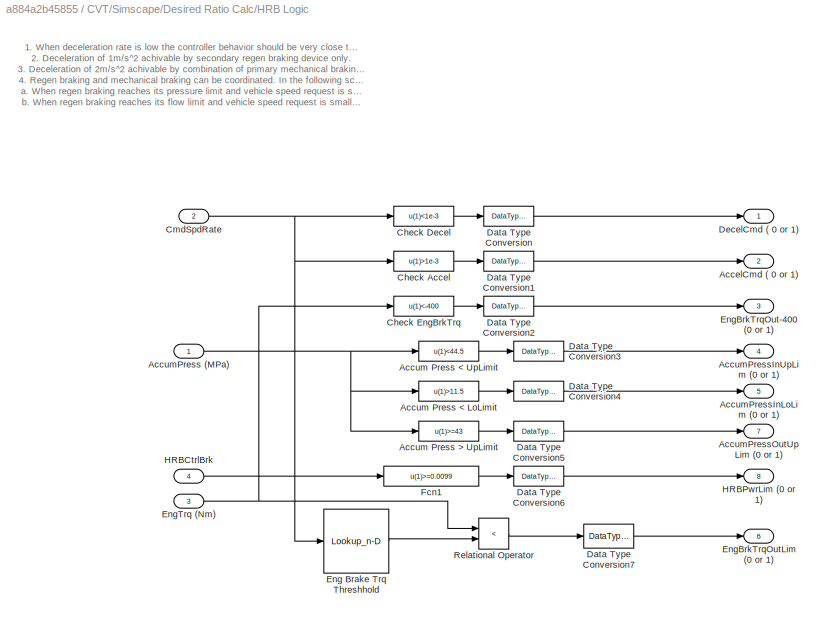
BLOCK [SubSystem] CVT/Simscape/Desired Ratio Calc/HRB Logic
BLOCK [Outport] CVT/Simscape/Desired Ratio Calc/HRB Logic/AccelCmd ( 0 or 1)
  Port = 2
BLOCK [Fcn] CVT/Simscape/Desired Ratio Calc/HRB Logic/Accum Press < LoLimit
  Expr = u(1)>11.5
BLOCK [Fcn] CVT/Simscape/Desired Ratio Calc/HRB Logic/Accum Press < UpLimit
  Expr = u(1)<44.5
BLOCK [Fcn] CVT/Simscape/Desired Ratio Calc/HRB Logic/Accum Press > UpLimit
  Expr = u(1)>=43
BLOCK [Inport] CVT/Simscape/Desired Ratio Calc/HRB Logic/AccumPress (MPa)
BLOCK [Outport] CVT/Simscape/Desired Ratio Calc/HRB Logic/AccumPressInLoLim (0 or 1)
  Port = 5
BLOCK [Outport] CVT/Simscape/Desired Ratio Calc/HRB Logic/AccumPressInUpLim (0 or 1)
  Port = 4
BLOCK [Outport] CVT/Simscape/Desired Ratio Calc/HRB Logic/AccumPressOutUpLim (0 or 1)
  Port = 7
BLOCK [Fcn] CVT/Simscape/Desired Ratio Calc/HRB Logic/Check Accel
  Expr = u(1)>1e-3
BLOCK [Fcn] CVT/Simscape/Desired Ratio Calc/HRB Logic/Check Decel
  Expr = u(1)<1e-3
BLOCK [Fcn] CVT/Simscape/Desired Ratio Calc/HRB Logic/Check EngBrkTrq
  Expr = u(1)<-400
BLOCK [Inport] CVT/Simscape/Desired Ratio Calc/HRB Logic/CmdSpdRate
  Port = 2
BLOCK [DataTypeConversion] CVT/Simscape/Desired Ratio Calc/HRB Logic/Data Type Conversion
  OutDataTypeStr = double
  RndMeth = Floor
  SaturateOnIntegerOverflow = off
BLOCK [DataTypeConversion] CVT/Simscape/Desired Ratio Calc/HRB Logic/Data Type Conversion1
  OutDataTypeStr = double
  RndMeth = Floor
  SaturateOnIntegerOverflow = off
BLOCK [DataTypeConversion] CVT/Simscape/Desired Ratio Calc/HRB Logic/Data Type Conversion2
  OutDataTypeStr = double
  RndMeth = Floor
  SaturateOnIntegerOverflow = off
BLOCK [DataTypeConversion] CVT/Simscape/Desired Ratio Calc/HRB Logic/Data Type Conversion3
  OutDataTypeStr = double
  RndMeth = Floor
  SaturateOnIntegerOverflow = off
BLOCK [DataTypeConversion] CVT/Simscape/Desired Ratio Calc/HRB Logic/Data Type Conversion4
  OutDataTypeStr = double
  RndMeth = Floor
  SaturateOnIntegerOverflow = off
BLOCK [DataTypeConversion] CVT/Simscape/Desired Ratio Calc/HRB Logic/Data Type Conversion5
  OutDataTypeStr = double
  RndMeth = Floor
  SaturateOnIntegerOverflow = off
BLOCK [DataTypeConversion] CVT/Simscape/Desired Ratio Calc/HRB Logic/Data Type Conversion6
  OutDataTypeStr = double
  RndMeth = Floor
  SaturateOnIntegerOverflow = off
BLOCK [DataTypeConversion] CVT/Simscape/Desired Ratio Calc/HRB Logic/Data Type Conversion7
  OutDataTypeStr = double
  RndMeth = Floor
  SaturateOnIntegerOverflow = off
BLOCK [Outport] CVT/Simscape/Desired Ratio Calc/HRB Logic/DecelCmd ( 0 or 1)
BLOCK [Lookup_n-D] CVT/Simscape/Desired Ratio Calc/HRB Logic/Eng Brake Trq Threshhold
  BreakpointsForDimension1 = [-3 -2 -1 -0.5 0 1]
  InputPortMap = u0
  InternalRulePriority = Speed
  NumberOfTableDimensions = 1
  RndMeth = Simplest
  Table = [-450 -450 -225 -113 0 0]*0.6
BLOCK [Outport] CVT/Simscape/Desired Ratio Calc/HRB Logic/EngBrkTrqOut-400 (0 or 1)
  Port = 3
BLOCK [Outport] CVT/Simscape/Desired Ratio Calc/HRB Logic/EngBrkTrqOutLim (0 or 1)
  Port = 6
BLOCK [Inport] CVT/Simscape/Desired Ratio Calc/HRB Logic/EngTrq (Nm)
  Port = 3
BLOCK [Fcn] CVT/Simscape/Desired Ratio Calc/HRB Logic/Fcn1
  Expr = u(1)>=0.0099
BLOCK [Inport] CVT/Simscape/Desired Ratio Calc/HRB Logic/HRBCtrlBrk
  Port = 4
BLOCK [Outport] CVT/Simscape/Desired Ratio Calc/HRB Logic/HRBPwrLim (0 or 1)
  Port = 8
BLOCK [RelationalOperator] CVT/Simscape/Desired Ratio Calc/HRB Logic/Relational Operator
  InputSameDT = off
  Operator = <
  OutDataTypeStr = boolean
  ZeroCross = off
BLOCK [Outport] CVT/Simscape/Desired Ratio Calc/HRBCtrl (-)
  Port = 3
BLOCK [SubSystem] CVT/Simscape/Desired Ratio Calc/MB Control
BLOCK [Inport] CVT/Simscape/Desired Ratio Calc/MB Control/AccumLimUp
  Port = 4
BLOCK [Sum] CVT/Simscape/Desired Ratio Calc/MB Control/Add1
  IconShape = rectangular
  Inputs = +++
BLOCK [Reference] CVT/Simscape/Desired Ratio Calc/MB Control/Compare To Constant  REF=simulink/Logic and Bit
Operations/Compare
To Constant
  SourceBlock = simulink/Logic and Bit\nOperations/Compare\nTo Constant
  SourceType = Compare To Constant
BLOCK [DataTypeConversion] CVT/Simscape/Desired Ratio Calc/MB Control/Data Type Conversion
  OutDataTypeStr = double
  RndMeth = Floor
  SaturateOnIntegerOverflow = off
BLOCK [Inport] CVT/Simscape/Desired Ratio Calc/MB Control/Decel Error
BLOCK [Inport] CVT/Simscape/Desired Ratio Calc/MB Control/HRBPowerLim
  Port = 5
BLOCK [Outport] CVT/Simscape/Desired Ratio Calc/MB Control/Out1
BLOCK [SubSystem] CVT/Simscape/Desired Ratio Calc/MB Control/PI MB No HRB
BLOCK [Gain] CVT/Simscape/Desired Ratio Calc/MB Control/PI MB No HRB/Gain
  Gain = 0.01
BLOCK [Gain] CVT/Simscape/Desired Ratio Calc/MB Control/PI MB No HRB/Gain3
  Gain = 0.002
BLOCK [Integrator] CVT/Simscape/Desired Ratio Calc/MB Control/PI MB No HRB/Integrator
  ExternalReset = falling
BLOCK [Inport] CVT/Simscape/Desired Ratio Calc/MB Control/PI MB No HRB/Rset
  Port = 2
BLOCK [Sum] CVT/Simscape/Desired Ratio Calc/MB Control/PI MB No HRB/Sum
  Inputs = ++|
BLOCK [Outport] CVT/Simscape/Desired Ratio Calc/MB Control/PI MB No HRB/ctrl
BLOCK [Inport] CVT/Simscape/Desired Ratio Calc/MB Control/PI MB No HRB/error
BLOCK [SubSystem] CVT/Simscape/Desired Ratio Calc/MB Control/PI MB with MRB
BLOCK [Gain] CVT/Simscape/Desired Ratio Calc/MB Control/PI MB with MRB/Gain
  Gain = 0.005
BLOCK [Gain] CVT/Simscape/Desired Ratio Calc/MB Control/PI MB with MRB/Gain3
  Gain = 0.002
BLOCK [Integrator] CVT/Simscape/Desired Ratio Calc/MB Control/PI MB with MRB/Integrator
  ExternalReset = falling
BLOCK [Inport] CVT/Simscape/Desired Ratio Calc/MB Control/PI MB with MRB/Rset
  Port = 2
BLOCK [Sum] CVT/Simscape/Desired Ratio Calc/MB Control/PI MB with MRB/Sum
  Inputs = ++|
BLOCK [Outport] CVT/Simscape/Desired Ratio Calc/MB Control/PI MB with MRB/ctrl
BLOCK [Inport] CVT/Simscape/Desired Ratio Calc/MB Control/PI MB with MRB/error
BLOCK [Product] CVT/Simscape/Desired Ratio Calc/MB Control/Product3
  Inputs = 3
BLOCK [Product] CVT/Simscape/Desired Ratio Calc/MB Control/Product4
BLOCK [Inport] CVT/Simscape/Desired Ratio Calc/MB Control/Rset
  Port = 3
BLOCK [Inport] CVT/Simscape/Desired Ratio Calc/MB Control/wTransOutCmd
  Port = 2
BLOCK [Outport] CVT/Simscape/Desired Ratio Calc/MBCtrl (-)
  Port = 4
BLOCK [Outport] CVT/Simscape/Desired Ratio Calc/Ratio (-)
BLOCK [Saturate] CVT/Simscape/Desired Ratio Calc/Saturation
  LowerLimit = 0.5
  UpperLimit = 2500
BLOCK [Gain] CVT/Simscape/Desired Ratio Calc/Scale
  Gain = HMPST.Veh.TopSpeed/100
BLOCK [SubSystem] CVT/Simscape/Desired Ratio Calc/Subsystem
BLOCK [Constant] CVT/Simscape/Desired Ratio Calc/Subsystem/Constant1
BLOCK [Constant] CVT/Simscape/Desired Ratio Calc/Subsystem/Constant2
  Value = -1
BLOCK [Constant] CVT/Simscape/Desired Ratio Calc/Subsystem/Constant3
  Value = 0
BLOCK [Gain] CVT/Simscape/Desired Ratio Calc/Subsystem/Gain
  Gain = -1
  NameLocation = left
BLOCK [Switch] CVT/Simscape/Desired Ratio Calc/Subsystem/Switch
  Criteria = u2 > Threshold
  InputSameDT = off
  SaturateOnIntegerOverflow = off
  Threshold = 0.001
BLOCK [Switch] CVT/Simscape/Desired Ratio Calc/Subsystem/Switch1
  Criteria = u2 > Threshold
  InputSameDT = off
  SaturateOnIntegerOverflow = off
  Threshold = 0.001
BLOCK [Inport] CVT/Simscape/Desired Ratio Calc/Subsystem/u
BLOCK [Outport] CVT/Simscape/Desired Ratio Calc/Subsystem/u_dir
BLOCK [TransferFcn] CVT/Simscape/Desired Ratio Calc/Transfer Fcn
  Denominator = [0.01 1]
  Numerator = [0.5 0]
BLOCK [Reference] CVT/Simscape/Desired Ratio Calc/Transfer Fcn (with initial outputs)2  REF=simulink_extras/Additional
Linear/Transfer Fcn
(with initial outputs)
  SourceBlock = simulink_extras/Additional\nLinear/Transfer Fcn\n(with initial outputs)
  SourceType = Transfer Function with Initial Outputs
BLOCK [TransferFcn] CVT/Simscape/Desired Ratio Calc/Transfer Fcn1
  Denominator = [0.01 1]
BLOCK [Gain] CVT/Simscape/Desired Ratio Calc/WRPM to ORPM
  Gain = HMPST.OutputTransferGearPair.Ratio*HMPST.Differential.Ratio*HMPST.FinalDrive.Ratio
BLOCK [Gain] CVT/Simscape/Desired Ratio Calc/km//h to m//s
  Gain = 1/3.6
BLOCK [Gain] CVT/Simscape/Desired Ratio Calc/m//s to RPM
  Gain = 1/HMPST.Tire.Rad*30/pi
BLOCK [Outport] CVT/Simscape/EngineNm
BLOCK [Inport] CVT/Simscape/EngineRPM
  Port = 2
BLOCK [Gain] CVT/Simscape/Gain1
  Gain = pi/30
BLOCK [SubSystem] CVT/Simscape/Port 1 Interface Engine
BLOCK [PMIOPort] CVT/Simscape/Port 1 Interface Engine/1
  Side = Left
BLOCK [Reference] CVT/Simscape/Port 1 Interface Engine/Ideal Rotational Motion Sensor1  REF=fl_lib/Mechanical/Mechanical Sensors/Ideal Rotational
Motion Sensor
  SourceBlock = fl_lib/Mechanical/Mechanical Sensors/Ideal Rotational\nMotion Sensor
  SourceType = Ideal Rotational\nMotion Sensor
BLOCK [SubSystem] CVT/Simscape/Port 1 Interface Engine/Interface
  LabelModeActiveChoice = Continuous
  Variant = on
  VariantControl = Variant1
  VariantControlMode = label
BLOCK [SubSystem] CVT/Simscape/Port 1 Interface Engine/Interface/Continuous
  VariantControl = Continuous
BLOCK [Gain] CVT/Simscape/Port 1 Interface Engine/Interface/Continuous/-1
  Gain = -1
  OutDataTypeStr = Inherit: Same as input
  ParamDataTypeStr = Inherit: Same as input
  SaturateOnIntegerOverflow = on
BLOCK [Integrator] CVT/Simscape/Port 1 Interface Engine/Interface/Continuous/Integrator
  InitialCondition = x0
  NameLocation = left
BLOCK [Gain] CVT/Simscape/Port 1 Interface Engine/Interface/Continuous/K
  Gain = K
  NameLocation = left
  OutDataTypeStr = Inherit: Same as input
  ParamDataTypeStr = Inherit: Same as input
  SaturateOnIntegerOverflow = on
BLOCK [Gain] CVT/Simscape/Port 1 Interface Engine/Interface/Continuous/Lambda
  Gain = Lambda
  NameLocation = right
  OutDataTypeStr = Inherit: Same as input
  ParamDataTypeStr = Inherit: Same as input
  SaturateOnIntegerOverflow = on
BLOCK [TransferFcn] CVT/Simscape/Port 1 Interface Engine/Interface/Continuous/Low-pass filter
  Denominator = [tau 1]
  NameLocation = right
  Numerator = 1
BLOCK [SubSystem] CVT/Simscape/Port 1 Interface Engine/Interface/Continuous/Prediction
  Commented = through
BLOCK [Gain] CVT/Simscape/Port 1 Interface Engine/Interface/Continuous/Prediction/1//h2
  Gain = 1/h2
BLOCK [Constant] CVT/Simscape/Port 1 Interface Engine/Interface/Continuous/Prediction/Constant
  SampleTime = h2
BLOCK [Constant] CVT/Simscape/Port 1 Interface Engine/Interface/Continuous/Prediction/Constant1
  SampleTime = h2
  Value = 0
BLOCK [Constant] CVT/Simscape/Port 1 Interface Engine/Interface/Continuous/Prediction/Constant2
  SampleTime = h2
BLOCK [Delay] CVT/Simscape/Port 1 Interface Engine/Interface/Continuous/Prediction/Delay 
  DelayLength = 1
  InputPortMap = u0
  SampleTime = h2
BLOCK [Delay] CVT/Simscape/Port 1 Interface Engine/Interface/Continuous/Prediction/Delay 1
  DelayLength = 1
  InputPortMap = u0
  SampleTime = h2
BLOCK [Switch] CVT/Simscape/Port 1 Interface Engine/Interface/Continuous/Prediction/Ignore the first output
  Criteria = u2 > Threshold
  InputSameDT = off
  SaturateOnIntegerOverflow = off
BLOCK [Integrator] CVT/Simscape/Port 1 Interface Engine/Interface/Continuous/Prediction/Integrator
  ExternalReset = either
  LimitOutput = on
  LowerSaturationLimit = 0
  UpperSaturationLimit = 1
BLOCK [Product] CVT/Simscape/Port 1 Interface Engine/Interface/Continuous/Prediction/Product
BLOCK [DiscretePulseGenerator] CVT/Simscape/Port 1 Interface Engine/Interface/Continuous/Prediction/Pulse Generator
  SampleTime = h2
BLOCK [Sum] CVT/Simscape/Port 1 Interface Engine/Interface/Continuous/Prediction/Sum
  Inputs = |++
BLOCK [Sum] CVT/Simscape/Port 1 Interface Engine/Interface/Continuous/Prediction/Sum4
  Inputs = +-|
BLOCK [ZeroOrderHold] CVT/Simscape/Port 1 Interface Engine/Interface/Continuous/Prediction/Zero-Order Hold
  NameLocation = right
  SampleTime = h2
BLOCK [Inport] CVT/Simscape/Port 1 Interface Engine/Interface/Continuous/Prediction/u
BLOCK [Outport] CVT/Simscape/Port 1 Interface Engine/Interface/Continuous/Prediction/y
BLOCK [SubSystem] CVT/Simscape/Port 1 Interface Engine/Interface/Continuous/Smoothing
  Commented = through
BLOCK [Gain] CVT/Simscape/Port 1 Interface Engine/Interface/Continuous/Smoothing/Gain
  Gain = 1/tsSmoothing
BLOCK [Integrator] CVT/Simscape/Port 1 Interface Engine/Interface/Continuous/Smoothing/Integrator
  InitialCondition = smoothing0
BLOCK [Sum] CVT/Simscape/Port 1 Interface Engine/Interface/Continuous/Smoothing/Sum
  Inputs = |+-
BLOCK [Inport] CVT/Simscape/Port 1 Interface Engine/Interface/Continuous/Smoothing/u
BLOCK [Outport] CVT/Simscape/Port 1 Interface Engine/Interface/Continuous/Smoothing/y
BLOCK [Sum] CVT/Simscape/Port 1 Interface Engine/Interface/Continuous/Sum
  InputSameDT = on
  Inputs = +-
  NameLocation = left
  OutDataTypeStr = Inherit: Same as first input
  SaturateOnIntegerOverflow = on
BLOCK [Sum] CVT/Simscape/Port 1 Interface Engine/Interface/Continuous/Sum2
  Inputs = |++
  NameLocation = left
BLOCK [Inport] CVT/Simscape/Port 1 Interface Engine/Interface/Continuous/across1
  Port = 2
BLOCK [Inport] CVT/Simscape/Port 1 Interface Engine/Interface/Continuous/across2
BLOCK [Outport] CVT/Simscape/Port 1 Interface Engine/Interface/Continuous/through1
  Port = 2
BLOCK [Outport] CVT/Simscape/Port 1 Interface Engine/Interface/Continuous/through2
BLOCK [SubSystem] CVT/Simscape/Port 1 Interface Engine/Interface/Discrete
  VariantControl = Discrete
BLOCK [Gain] CVT/Simscape/Port 1 Interface Engine/Interface/Discrete/-1
  Gain = -1
  OutDataTypeStr = Inherit: Same as input
  ParamDataTypeStr = Inherit: Same as input
  SaturateOnIntegerOverflow = on
BLOCK [DiscreteTransferFcn] CVT/Simscape/Port 1 Interface Engine/Interface/Discrete/First-order lag
  Denominator = [tau h1-tau]
  InputPortMap = u0
  NameLocation = right
  Numerator = h1
  SampleTime = h1
BLOCK [DiscreteIntegrator] CVT/Simscape/Port 1 Interface Engine/Interface/Discrete/Integrator
  ICPrevOutput = DiscIntNeverNeededParam
  ICPrevScaledInput = DiscIntNeverNeededParam
  InitialCondition = x0
  InitialConditionSetting = Auto
  NameLocation = left
  SampleTime = h1
BLOCK [Gain] CVT/Simscape/Port 1 Interface Engine/Interface/Discrete/K
  Gain = K
  NameLocation = left
  OutDataTypeStr = Inherit: Same as input
  ParamDataTypeStr = Inherit: Same as input
  SaturateOnIntegerOverflow = on
BLOCK [Gain] CVT/Simscape/Port 1 Interface Engine/Interface/Discrete/Lambda
  Gain = Lambda
  NameLocation = right
  OutDataTypeStr = Inherit: Same as input
  ParamDataTypeStr = Inherit: Same as input
  SaturateOnIntegerOverflow = on
BLOCK [SubSystem] CVT/Simscape/Port 1 Interface Engine/Interface/Discrete/Prediction
  Commented = through
BLOCK [Abs] CVT/Simscape/Port 1 Interface Engine/Interface/Discrete/Prediction/Abs
  SaturateOnIntegerOverflow = off
BLOCK [Constant] CVT/Simscape/Port 1 Interface Engine/Interface/Discrete/Prediction/Constant
  SampleTime = h1
  Value = 0
BLOCK [Constant] CVT/Simscape/Port 1 Interface Engine/Interface/Discrete/Prediction/Constant2
  SampleTime = h1
  Value = h1
BLOCK [Delay] CVT/Simscape/Port 1 Interface Engine/Interface/Discrete/Prediction/Delay 
  DelayLength = 1
  InputPortMap = u0
  SampleTime = h1
BLOCK [Product] CVT/Simscape/Port 1 Interface Engine/Interface/Discrete/Prediction/Product
BLOCK [Delay] CVT/Simscape/Port 1 Interface Engine/Interface/Discrete/Prediction/Resettable Delay
  DelayLength = 1
  ExternalReset = Rising
  InitialConditionSource = Input port
  InputPortMap = u0,r5,p4
  SampleTime = h1
BLOCK [Sum] CVT/Simscape/Port 1 Interface Engine/Interface/Discrete/Prediction/Sum
  Inputs = |++
BLOCK [Sum] CVT/Simscape/Port 1 Interface Engine/Interface/Discrete/Prediction/Sum1
  Inputs = |++
BLOCK [Sum] CVT/Simscape/Port 1 Interface Engine/Interface/Discrete/Prediction/Sum2
  Inputs = +
BLOCK [Sum] CVT/Simscape/Port 1 Interface Engine/Interface/Discrete/Prediction/Sum4
  Inputs = +-|
BLOCK [SubSystem] CVT/Simscape/Port 1 Interface Engine/Interface/Discrete/Prediction/Update derivative estimate
  TreatAsAtomicUnit = on
BLOCK [Gain] CVT/Simscape/Port 1 Interface Engine/Interface/Discrete/Prediction/Update derivative estimate/1//h2
  Gain = 1/h2
BLOCK [Constant] CVT/Simscape/Port 1 Interface Engine/Interface/Discrete/Prediction/Update derivative estimate/Constant
  SampleTime = -1
  Value = 0
BLOCK [Constant] CVT/Simscape/Port 1 Interface Engine/Interface/Discrete/Prediction/Update derivative estimate/Constant1
  SampleTime = -1
BLOCK [Outport] CVT/Simscape/Port 1 Interface Engine/Interface/Discrete/Prediction/Update derivative estimate/Out1
BLOCK [Sum] CVT/Simscape/Port 1 Interface Engine/Interface/Discrete/Prediction/Update derivative estimate/Sum
  Inputs = |-+
BLOCK [Switch] CVT/Simscape/Port 1 Interface Engine/Interface/Discrete/Prediction/Update derivative estimate/Switch
  Criteria = u2 > Threshold
  InputSameDT = off
  SaturateOnIntegerOverflow = off
BLOCK [TriggerPort] CVT/Simscape/Port 1 Interface Engine/Interface/Discrete/Prediction/Update derivative estimate/Trigger
  StatesWhenEnabling = held
  VariantControl = (inherit)
BLOCK [UnitDelay] CVT/Simscape/Port 1 Interface Engine/Interface/Discrete/Prediction/Update derivative estimate/Unit Delay
  SampleTime = -1
BLOCK [UnitDelay] CVT/Simscape/Port 1 Interface Engine/Interface/Discrete/Prediction/Update derivative estimate/Wait one sample
  SampleTime = -1
BLOCK [Inport] CVT/Simscape/Port 1 Interface Engine/Interface/Discrete/Prediction/Update derivative estimate/u
BLOCK [Inport] CVT/Simscape/Port 1 Interface Engine/Interface/Discrete/Prediction/u
BLOCK [Outport] CVT/Simscape/Port 1 Interface Engine/Interface/Discrete/Prediction/y
BLOCK [SubSystem] CVT/Simscape/Port 1 Interface Engine/Interface/Discrete/Smoothing
  Commented = through
BLOCK [Gain] CVT/Simscape/Port 1 Interface Engine/Interface/Discrete/Smoothing/Gain
  Gain = 1/nSmooth
BLOCK [Sum] CVT/Simscape/Port 1 Interface Engine/Interface/Discrete/Smoothing/Sum of Elements
  IconShape = rectangular
  Inputs = +
BLOCK [Reference] CVT/Simscape/Port 1 Interface Engine/Interface/Discrete/Smoothing/Tapped Delay  REF=simulink/Discrete/Tapped Delay
  SourceBlock = simulink/Discrete/Tapped Delay
  SourceType = Tapped Delay Line
BLOCK [Inport] CVT/Simscape/Port 1 Interface Engine/Interface/Discrete/Smoothing/u
BLOCK [Outport] CVT/Simscape/Port 1 Interface Engine/Interface/Discrete/Smoothing/y
BLOCK [Sum] CVT/Simscape/Port 1 Interface Engine/Interface/Discrete/Sum
  InputSameDT = on
  Inputs = +-
  NameLocation = left
  OutDataTypeStr = Inherit: Same as first input
  SaturateOnIntegerOverflow = on
BLOCK [Sum] CVT/Simscape/Port 1 Interface Engine/Interface/Discrete/Sum1
  Inputs = |++
  NameLocation = left
BLOCK [Inport] CVT/Simscape/Port 1 Interface Engine/Interface/Discrete/across1
  Port = 2
BLOCK [Inport] CVT/Simscape/Port 1 Interface Engine/Interface/Discrete/across2
BLOCK [Outport] CVT/Simscape/Port 1 Interface Engine/Interface/Discrete/through1
  Port = 2
BLOCK [Outport] CVT/Simscape/Port 1 Interface Engine/Interface/Discrete/through2
BLOCK [Inport] CVT/Simscape/Port 1 Interface Engine/Interface/across1
BLOCK [Inport] CVT/Simscape/Port 1 Interface Engine/Interface/across2
  Port = 2
BLOCK [Outport] CVT/Simscape/Port 1 Interface Engine/Interface/through1
  Port = 2
BLOCK [Outport] CVT/Simscape/Port 1 Interface Engine/Interface/through2
BLOCK [Reference] CVT/Simscape/Port 1 Interface Engine/Mechanical Rotational Reference2  REF=fl_lib/Mechanical/Rotational Elements/Mechanical
Rotational Reference
  NameLocation = right
  SourceBlock = fl_lib/Mechanical/Rotational Elements/Mechanical\nRotational Reference
  SourceType = Mechanical\nRotational Reference
BLOCK [Reference] CVT/Simscape/Port 1 Interface Engine/Mechanical Rotational Reference3  REF=fl_lib/Mechanical/Rotational Elements/Mechanical
Rotational Reference
  NameLocation = right
  SourceBlock = fl_lib/Mechanical/Rotational Elements/Mechanical\nRotational Reference
  SourceType = Mechanical\nRotational Reference
BLOCK [Reference] CVT/Simscape/Port 1 Interface Engine/T1  REF=nesl_utility/Simulink-PS
Converter
  SourceBlock = nesl_utility/Simulink-PS\nConverter
  SourceType = Simulink-PS\nConverter
BLOCK [Reference] CVT/Simscape/Port 1 Interface Engine/Tau1  REF=fl_lib/Mechanical/Mechanical Sources/Ideal Torque Source
  NameLocation = left
  SourceBlock = fl_lib/Mechanical/Mechanical Sources/Ideal Torque Source
  SourceType = Ideal Torque Source
BLOCK [Inport] CVT/Simscape/Port 1 Interface Engine/speed
BLOCK [Outport] CVT/Simscape/Port 1 Interface Engine/torque
BLOCK [Reference] CVT/Simscape/Port 1 Interface Engine/w1  REF=nesl_utility/PS-Simulink
Converter
  SourceBlock = nesl_utility/PS-Simulink\nConverter
  SourceType = PS-Simulink\nConverter
BLOCK [SubSystem] CVT/Simscape/Port 1 Interface Vehicle
BLOCK [PMIOPort] CVT/Simscape/Port 1 Interface Vehicle/1
  Side = Left
BLOCK [Reference] CVT/Simscape/Port 1 Interface Vehicle/Ideal Rotational Motion Sensor1  REF=fl_lib/Mechanical/Mechanical Sensors/Ideal Rotational
Motion Sensor
  SourceBlock = fl_lib/Mechanical/Mechanical Sensors/Ideal Rotational\nMotion Sensor
  SourceType = Ideal Rotational\nMotion Sensor
BLOCK [SubSystem] CVT/Simscape/Port 1 Interface Vehicle/Interface
  LabelModeActiveChoice = Continuous
  Variant = on
  VariantControl = Variant1
  VariantControlMode = label
BLOCK [SubSystem] CVT/Simscape/Port 1 Interface Vehicle/Interface/Continuous
  VariantControl = Continuous
BLOCK [Gain] CVT/Simscape/Port 1 Interface Vehicle/Interface/Continuous/-1
  Gain = -1
  OutDataTypeStr = Inherit: Same as input
  ParamDataTypeStr = Inherit: Same as input
  SaturateOnIntegerOverflow = on
BLOCK [Integrator] CVT/Simscape/Port 1 Interface Vehicle/Interface/Continuous/Integrator
  InitialCondition = x0
  NameLocation = left
BLOCK [Gain] CVT/Simscape/Port 1 Interface Vehicle/Interface/Continuous/K
  Gain = K
  NameLocation = left
  OutDataTypeStr = Inherit: Same as input
  ParamDataTypeStr = Inherit: Same as input
  SaturateOnIntegerOverflow = on
BLOCK [Gain] CVT/Simscape/Port 1 Interface Vehicle/Interface/Continuous/Lambda
  Gain = Lambda
  NameLocation = right
  OutDataTypeStr = Inherit: Same as input
  ParamDataTypeStr = Inherit: Same as input
  SaturateOnIntegerOverflow = on
BLOCK [TransferFcn] CVT/Simscape/Port 1 Interface Vehicle/Interface/Continuous/Low-pass filter
  Denominator = [tau 1]
  NameLocation = right
  Numerator = 1
BLOCK [SubSystem] CVT/Simscape/Port 1 Interface Vehicle/Interface/Continuous/Prediction
  Commented = through
BLOCK [Gain] CVT/Simscape/Port 1 Interface Vehicle/Interface/Continuous/Prediction/1//h2
  Gain = 1/h2
BLOCK [Constant] CVT/Simscape/Port 1 Interface Vehicle/Interface/Continuous/Prediction/Constant
  SampleTime = h2
BLOCK [Constant] CVT/Simscape/Port 1 Interface Vehicle/Interface/Continuous/Prediction/Constant1
  SampleTime = h2
  Value = 0
BLOCK [Constant] CVT/Simscape/Port 1 Interface Vehicle/Interface/Continuous/Prediction/Constant2
  SampleTime = h2
BLOCK [Delay] CVT/Simscape/Port 1 Interface Vehicle/Interface/Continuous/Prediction/Delay 
  DelayLength = 1
  InputPortMap = u0
  SampleTime = h2
BLOCK [Delay] CVT/Simscape/Port 1 Interface Vehicle/Interface/Continuous/Prediction/Delay 1
  DelayLength = 1
  InputPortMap = u0
  SampleTime = h2
BLOCK [Switch] CVT/Simscape/Port 1 Interface Vehicle/Interface/Continuous/Prediction/Ignore the first output
  Criteria = u2 > Threshold
  InputSameDT = off
  SaturateOnIntegerOverflow = off
BLOCK [Integrator] CVT/Simscape/Port 1 Interface Vehicle/Interface/Continuous/Prediction/Integrator
  ExternalReset = either
  LimitOutput = on
  LowerSaturationLimit = 0
  UpperSaturationLimit = 1
BLOCK [Product] CVT/Simscape/Port 1 Interface Vehicle/Interface/Continuous/Prediction/Product
BLOCK [DiscretePulseGenerator] CVT/Simscape/Port 1 Interface Vehicle/Interface/Continuous/Prediction/Pulse Generator
  SampleTime = h2
BLOCK [Sum] CVT/Simscape/Port 1 Interface Vehicle/Interface/Continuous/Prediction/Sum
  Inputs = |++
BLOCK [Sum] CVT/Simscape/Port 1 Interface Vehicle/Interface/Continuous/Prediction/Sum4
  Inputs = +-|
BLOCK [ZeroOrderHold] CVT/Simscape/Port 1 Interface Vehicle/Interface/Continuous/Prediction/Zero-Order Hold
  NameLocation = right
  SampleTime = h2
BLOCK [Inport] CVT/Simscape/Port 1 Interface Vehicle/Interface/Continuous/Prediction/u
BLOCK [Outport] CVT/Simscape/Port 1 Interface Vehicle/Interface/Continuous/Prediction/y
BLOCK [SubSystem] CVT/Simscape/Port 1 Interface Vehicle/Interface/Continuous/Smoothing
  Commented = through
BLOCK [Gain] CVT/Simscape/Port 1 Interface Vehicle/Interface/Continuous/Smoothing/Gain
  Gain = 1/tsSmoothing
BLOCK [Integrator] CVT/Simscape/Port 1 Interface Vehicle/Interface/Continuous/Smoothing/Integrator
  InitialCondition = smoothing0
BLOCK [Sum] CVT/Simscape/Port 1 Interface Vehicle/Interface/Continuous/Smoothing/Sum
  Inputs = |+-
BLOCK [Inport] CVT/Simscape/Port 1 Interface Vehicle/Interface/Continuous/Smoothing/u
BLOCK [Outport] CVT/Simscape/Port 1 Interface Vehicle/Interface/Continuous/Smoothing/y
BLOCK [Sum] CVT/Simscape/Port 1 Interface Vehicle/Interface/Continuous/Sum
  InputSameDT = on
  Inputs = +-
  NameLocation = left
  OutDataTypeStr = Inherit: Same as first input
  SaturateOnIntegerOverflow = on
BLOCK [Sum] CVT/Simscape/Port 1 Interface Vehicle/Interface/Continuous/Sum2
  Inputs = |++
  NameLocation = left
BLOCK [Inport] CVT/Simscape/Port 1 Interface Vehicle/Interface/Continuous/across1
  Port = 2
BLOCK [Inport] CVT/Simscape/Port 1 Interface Vehicle/Interface/Continuous/across2
BLOCK [Outport] CVT/Simscape/Port 1 Interface Vehicle/Interface/Continuous/through1
  Port = 2
BLOCK [Outport] CVT/Simscape/Port 1 Interface Vehicle/Interface/Continuous/through2
BLOCK [SubSystem] CVT/Simscape/Port 1 Interface Vehicle/Interface/Discrete
  VariantControl = Discrete
BLOCK [Gain] CVT/Simscape/Port 1 Interface Vehicle/Interface/Discrete/-1
  Gain = -1
  OutDataTypeStr = Inherit: Same as input
  ParamDataTypeStr = Inherit: Same as input
  SaturateOnIntegerOverflow = on
BLOCK [DiscreteTransferFcn] CVT/Simscape/Port 1 Interface Vehicle/Interface/Discrete/First-order lag
  Denominator = [tau h1-tau]
  InputPortMap = u0
  NameLocation = right
  Numerator = h1
  SampleTime = h1
BLOCK [DiscreteIntegrator] CVT/Simscape/Port 1 Interface Vehicle/Interface/Discrete/Integrator
  ICPrevOutput = DiscIntNeverNeededParam
  ICPrevScaledInput = DiscIntNeverNeededParam
  InitialCondition = x0
  InitialConditionSetting = Auto
  NameLocation = left
  SampleTime = h1
BLOCK [Gain] CVT/Simscape/Port 1 Interface Vehicle/Interface/Discrete/K
  Gain = K
  NameLocation = left
  OutDataTypeStr = Inherit: Same as input
  ParamDataTypeStr = Inherit: Same as input
  SaturateOnIntegerOverflow = on
BLOCK [Gain] CVT/Simscape/Port 1 Interface Vehicle/Interface/Discrete/Lambda
  Gain = Lambda
  NameLocation = right
  OutDataTypeStr = Inherit: Same as input
  ParamDataTypeStr = Inherit: Same as input
  SaturateOnIntegerOverflow = on
BLOCK [SubSystem] CVT/Simscape/Port 1 Interface Vehicle/Interface/Discrete/Prediction
  Commented = through
BLOCK [Abs] CVT/Simscape/Port 1 Interface Vehicle/Interface/Discrete/Prediction/Abs
  SaturateOnIntegerOverflow = off
BLOCK [Constant] CVT/Simscape/Port 1 Interface Vehicle/Interface/Discrete/Prediction/Constant
  SampleTime = h1
  Value = 0
BLOCK [Constant] CVT/Simscape/Port 1 Interface Vehicle/Interface/Discrete/Prediction/Constant2
  SampleTime = h1
  Value = h1
BLOCK [Delay] CVT/Simscape/Port 1 Interface Vehicle/Interface/Discrete/Prediction/Delay 
  DelayLength = 1
  InputPortMap = u0
  SampleTime = h1
BLOCK [Product] CVT/Simscape/Port 1 Interface Vehicle/Interface/Discrete/Prediction/Product
BLOCK [Delay] CVT/Simscape/Port 1 Interface Vehicle/Interface/Discrete/Prediction/Resettable Delay
  DelayLength = 1
  ExternalReset = Rising
  InitialConditionSource = Input port
  InputPortMap = u0,r5,p4
  SampleTime = h1
BLOCK [Sum] CVT/Simscape/Port 1 Interface Vehicle/Interface/Discrete/Prediction/Sum
  Inputs = |++
BLOCK [Sum] CVT/Simscape/Port 1 Interface Vehicle/Interface/Discrete/Prediction/Sum1
  Inputs = |++
BLOCK [Sum] CVT/Simscape/Port 1 Interface Vehicle/Interface/Discrete/Prediction/Sum2
  Inputs = +
BLOCK [Sum] CVT/Simscape/Port 1 Interface Vehicle/Interface/Discrete/Prediction/Sum4
  Inputs = +-|
BLOCK [SubSystem] CVT/Simscape/Port 1 Interface Vehicle/Interface/Discrete/Prediction/Update derivative estimate
  TreatAsAtomicUnit = on
BLOCK [Gain] CVT/Simscape/Port 1 Interface Vehicle/Interface/Discrete/Prediction/Update derivative estimate/1//h2
  Gain = 1/h2
BLOCK [Constant] CVT/Simscape/Port 1 Interface Vehicle/Interface/Discrete/Prediction/Update derivative estimate/Constant
  SampleTime = -1
  Value = 0
BLOCK [Constant] CVT/Simscape/Port 1 Interface Vehicle/Interface/Discrete/Prediction/Update derivative estimate/Constant1
  SampleTime = -1
BLOCK [Outport] CVT/Simscape/Port 1 Interface Vehicle/Interface/Discrete/Prediction/Update derivative estimate/Out1
BLOCK [Sum] CVT/Simscape/Port 1 Interface Vehicle/Interface/Discrete/Prediction/Update derivative estimate/Sum
  Inputs = |-+
BLOCK [Switch] CVT/Simscape/Port 1 Interface Vehicle/Interface/Discrete/Prediction/Update derivative estimate/Switch
  Criteria = u2 > Threshold
  InputSameDT = off
  SaturateOnIntegerOverflow = off
BLOCK [TriggerPort] CVT/Simscape/Port 1 Interface Vehicle/Interface/Discrete/Prediction/Update derivative estimate/Trigger
  StatesWhenEnabling = held
  VariantControl = (inherit)
BLOCK [UnitDelay] CVT/Simscape/Port 1 Interface Vehicle/Interface/Discrete/Prediction/Update derivative estimate/Unit Delay
  SampleTime = -1
BLOCK [UnitDelay] CVT/Simscape/Port 1 Interface Vehicle/Interface/Discrete/Prediction/Update derivative estimate/Wait one sample
  SampleTime = -1
BLOCK [Inport] CVT/Simscape/Port 1 Interface Vehicle/Interface/Discrete/Prediction/Update derivative estimate/u
BLOCK [Inport] CVT/Simscape/Port 1 Interface Vehicle/Interface/Discrete/Prediction/u
BLOCK [Outport] CVT/Simscape/Port 1 Interface Vehicle/Interface/Discrete/Prediction/y
BLOCK [SubSystem] CVT/Simscape/Port 1 Interface Vehicle/Interface/Discrete/Smoothing
  Commented = through
BLOCK [Gain] CVT/Simscape/Port 1 Interface Vehicle/Interface/Discrete/Smoothing/Gain
  Gain = 1/nSmooth
BLOCK [Sum] CVT/Simscape/Port 1 Interface Vehicle/Interface/Discrete/Smoothing/Sum of Elements
  IconShape = rectangular
  Inputs = +
BLOCK [Reference] CVT/Simscape/Port 1 Interface Vehicle/Interface/Discrete/Smoothing/Tapped Delay  REF=simulink/Discrete/Tapped Delay
  SourceBlock = simulink/Discrete/Tapped Delay
  SourceType = Tapped Delay Line
BLOCK [Inport] CVT/Simscape/Port 1 Interface Vehicle/Interface/Discrete/Smoothing/u
BLOCK [Outport] CVT/Simscape/Port 1 Interface Vehicle/Interface/Discrete/Smoothing/y
BLOCK [Sum] CVT/Simscape/Port 1 Interface Vehicle/Interface/Discrete/Sum
  InputSameDT = on
  Inputs = +-
  NameLocation = left
  OutDataTypeStr = Inherit: Same as first input
  SaturateOnIntegerOverflow = on
BLOCK [Sum] CVT/Simscape/Port 1 Interface Vehicle/Interface/Discrete/Sum1
  Inputs = |++
  NameLocation = left
BLOCK [Inport] CVT/Simscape/Port 1 Interface Vehicle/Interface/Discrete/across1
  Port = 2
BLOCK [Inport] CVT/Simscape/Port 1 Interface Vehicle/Interface/Discrete/across2
BLOCK [Outport] CVT/Simscape/Port 1 Interface Vehicle/Interface/Discrete/through1
  Port = 2
BLOCK [Outport] CVT/Simscape/Port 1 Interface Vehicle/Interface/Discrete/through2
BLOCK [Inport] CVT/Simscape/Port 1 Interface Vehicle/Interface/across1
BLOCK [Inport] CVT/Simscape/Port 1 Interface Vehicle/Interface/across2
  Port = 2
BLOCK [Outport] CVT/Simscape/Port 1 Interface Vehicle/Interface/through1
  Port = 2
BLOCK [Outport] CVT/Simscape/Port 1 Interface Vehicle/Interface/through2
BLOCK [Reference] CVT/Simscape/Port 1 Interface Vehicle/Mechanical Rotational Reference2  REF=fl_lib/Mechanical/Rotational Elements/Mechanical
Rotational Reference
  NameLocation = right
  SourceBlock = fl_lib/Mechanical/Rotational Elements/Mechanical\nRotational Reference
  SourceType = Mechanical\nRotational Reference
BLOCK [Reference] CVT/Simscape/Port 1 Interface Vehicle/Mechanical Rotational Reference3  REF=fl_lib/Mechanical/Rotational Elements/Mechanical
Rotational Reference
  NameLocation = right
  SourceBlock = fl_lib/Mechanical/Rotational Elements/Mechanical\nRotational Reference
  SourceType = Mechanical\nRotational Reference
BLOCK [Reference] CVT/Simscape/Port 1 Interface Vehicle/T1  REF=nesl_utility/Simulink-PS
Converter
  SourceBlock = nesl_utility/Simulink-PS\nConverter
  SourceType = Simulink-PS\nConverter
BLOCK [Reference] CVT/Simscape/Port 1 Interface Vehicle/Tau1  REF=fl_lib/Mechanical/Mechanical Sources/Ideal Torque Source
  NameLocation = left
  SourceBlock = fl_lib/Mechanical/Mechanical Sources/Ideal Torque Source
  SourceType = Ideal Torque Source
BLOCK [Inport] CVT/Simscape/Port 1 Interface Vehicle/speed
BLOCK [Outport] CVT/Simscape/Port 1 Interface Vehicle/torque
BLOCK [Reference] CVT/Simscape/Port 1 Interface Vehicle/w1  REF=nesl_utility/PS-Simulink
Converter
  SourceBlock = nesl_utility/PS-Simulink\nConverter
  SourceType = PS-Simulink\nConverter
BLOCK [SubSystem] CVT/Simscape/Power Sensor1 Engine Out
BLOCK [Reference] CVT/Simscape/Power Sensor1 Engine Out/Mechanical Rotational Reference  REF=fl_lib/Mechanical/Rotational Elements/Mechanical
Rotational Reference
  NameLocation = top
  SourceBlock = fl_lib/Mechanical/Rotational Elements/Mechanical\nRotational Reference
  SourceType = Mechanical\nRotational Reference
BLOCK [Reference] CVT/Simscape/Power Sensor1 Engine Out/PS Terminator  REF=fl_lib/Physical Signals/Sinks/PS Terminator
  NameLocation = left
  SourceBlock = fl_lib/Physical Signals/Sinks/PS Terminator
  SourceType = PS Terminator
BLOCK [Reference] CVT/Simscape/Power Sensor1 Engine Out/Power Sensor  REF=sdl_lib/Sensors/Rotational Power
Sensor
  NameLocation = left
  SourceBlock = sdl_lib/Sensors/Rotational Power\nSensor
  SourceType = Rotational Power\nSensor
BLOCK [PMIOPort] CVT/Simscape/Power Sensor1 Engine Out/R
  Port = 2
  Side = Right
BLOCK [PMIOPort] CVT/Simscape/Power Sensor1 Engine Out/S
  Side = Left
BLOCK [SubSystem] CVT/Simscape/Power Sensor2 CVT Out
BLOCK [Reference] CVT/Simscape/Power Sensor2 CVT Out/Mechanical Rotational Reference  REF=fl_lib/Mechanical/Rotational Elements/Mechanical
Rotational Reference
  NameLocation = top
  SourceBlock = fl_lib/Mechanical/Rotational Elements/Mechanical\nRotational Reference
  SourceType = Mechanical\nRotational Reference
BLOCK [Reference] CVT/Simscape/Power Sensor2 CVT Out/PS Terminator  REF=fl_lib/Physical Signals/Sinks/PS Terminator
  NameLocation = left
  SourceBlock = fl_lib/Physical Signals/Sinks/PS Terminator
  SourceType = PS Terminator
BLOCK [Reference] CVT/Simscape/Power Sensor2 CVT Out/Power Sensor  REF=sdl_lib/Sensors/Rotational Power
Sensor
  NameLocation = left
  SourceBlock = sdl_lib/Sensors/Rotational Power\nSensor
  SourceType = Rotational Power\nSensor
BLOCK [PMIOPort] CVT/Simscape/Power Sensor2 CVT Out/R
  Port = 2
  Side = Right
BLOCK [PMIOPort] CVT/Simscape/Power Sensor2 CVT Out/S
  Side = Left
BLOCK [RateTransition] CVT/Simscape/Rate transition (fast-to-slow)
  Integrity = off
  NameLocation = top
BLOCK [RateTransition] CVT/Simscape/Rate transition (fast-to-slow)1
  Integrity = off
  NameLocation = top
BLOCK [RateTransition] CVT/Simscape/Rate transition (slow-to-fast)
  Integrity = off
BLOCK [RateTransition] CVT/Simscape/Rate transition (slow-to-fast)1
  Integrity = off
BLOCK [SubSystem] CVT/Simscape/Scopes
BLOCK [BusSelector] CVT/Simscape/Scopes/Bus Selector1
  OutputSignals = wIn,OutputShaft
BLOCK [BusSelector] CVT/Simscape/Scopes/Bus Selector2
  NameLocation = top
  OutputSignals = K1,K2,K3,K4,Kb,Kv,Kr
BLOCK [BusSelector] CVT/Simscape/Scopes/Bus Selector3
  OutputSignals = SwashCtrl,HRBCtrl,MBCtrl
BLOCK [Scope] CVT/Simscape/Scopes/CVT Ctrl
  ActiveDisplayYMaximum = 1.21887
  ActiveDisplayYMinimum = -0.96987
  DataLoggingVariableName = ScopeData2
  Floating = off
  GraphicalSettings = {"GraphicalSettings":{"LegacySettings":true,"Style":{"AxesScalingProperties":{"ScaleAxesLimitsAtStop":false},"Style":{"AxesColor":"[0 0 0]","ChannelNames":[""],"ColorOrder":"[1 1 0.0666666666666667;0.0745098039215686 0.623529411764706 1;1 0.411764705882353 0.16078431372549;0.392156862745098 0.831372549019608 0.0745098039215686;0.717647058823529 0.274509803921569 1;0.0588235294117647 1 1;1 0.074509...<+659ch>
  MultipleDisplayCache = [{"MaxYLimMag":1.21887,"MaxYLimReal":1.21887,"MinYLimMag":0,"MinYLimReal":-0.96987,"PlotAsMagnitudePhase":false,"ShowGrid":true,"ShowLegend":true,"Title":"%<SignalLabel>","YLabel":""}]
  NumInputPorts = 1
  ShowLegend = on
  WasSavedAsWebScope = on
  WindowPosition = [16 507 898 448]
BLOCK [Inport] CVT/Simscape/Scopes/CVTCtrl
BLOCK [Scope] CVT/Simscape/Scopes/Scope
  ActiveDisplayYMaximum = 1460.04785
  ActiveDisplayYMinimum = -1460.02488
  DataLoggingVariableName = ScopeData4
  Floating = off
  GraphicalSettings = {"GraphicalSettings":{"LegacySettings":true,"Style":{"Style":{"AxesColor":"[0 0 0]","ChannelNames":["",""],"ColorOrder":"[1 1 0.0666666666666667;0.0745098039215686 0.623529411764706 1;1 0.411764705882353 0.16078431372549;0.392156862745098 0.831372549019608 0.0745098039215686;0.717647058823529 0.274509803921569 1;0.0588235294117647 1 1;1 0.0745098039215686 0.650980392156863]","CurrentConfiguration"...<+374ch>
  LayoutDimensionsString = [2 1]
  MultipleDisplayCache = [{"MaxYLimMag":1460.04785,"MaxYLimReal":1460.04785,"MinYLimMag":0,"MinYLimReal":-1460.02488,"PlotAsMagnitudePhase":false,"ShowGrid":true,"ShowLegend":false,"Title":"%<SignalLabel>","YLabel":""},{"MaxYLimMag":10,"MaxYLimReal":11.77737,"MinYLimMag":0,"MinYLimReal":10.91361,"PlotAsMagnitudePhase":false,"ShowGrid":true,"ShowLegend":false,"Title":"%<SignalLabel>","YLabel":""}]
  NumInputPorts = 2
  WasSavedAsWebScope = on
  WindowPosition = [434 93 560 420]
BLOCK [Scope] CVT/Simscape/Scopes/Scope1
  ActiveDisplayYMaximum = 1.125
  ActiveDisplayYMinimum = -0.125
  DataLoggingVariableName = ScopeData3
  Floating = off
  GraphicalSettings = {"GraphicalSettings":{"LegacySettings":true,"Style":{"Style":{"AxesColor":"[0 0 0]","ChannelNames":["","","","","","","",""],"ColorOrder":"[1 1 0.0666666666666667;0.0745098039215686 0.623529411764706 1;1 0.411764705882353 0.16078431372549;0.392156862745098 0.831372549019608 0.0745098039215686;0.717647058823529 0.274509803921569 1;0.0588235294117647 1 1;1 0.0745098039215686 0.650980392156863]","Cur...<+586ch>
  LayoutDimensionsString = [4 2]
  MultipleDisplayCache = [{"MaxYLimMag":1.125,"MaxYLimReal":1.125,"MinYLimMag":0,"MinYLimReal":-0.125,"PlotAsMagnitudePhase":false,"ShowGrid":true,"ShowLegend":false,"Title":"%<SignalLabel>","YLabel":""},{"MaxYLimMag":10,"MaxYLimReal":1.125,"MinYLimMag":0,"MinYLimReal":-0.125,"PlotAsMagnitudePhase":false,"ShowGrid":true,"ShowLegend":false,"Title":"%<SignalLabel>","YLabel":""},{"MaxYLimMag":10,"MaxYLimReal":1.125,"MinYLimM...<+976ch>
  NumInputPorts = 7
  WasSavedAsWebScope = on
BLOCK [Scope] CVT/Simscape/Scopes/Scope2
  ActiveDisplayYMaximum = 1.21887
  ActiveDisplayYMinimum = -0.96987
  DataLoggingVariableName = ScopeData4
  Floating = off
  GraphicalSettings = {"GraphicalSettings":{"LegacySettings":true,"Style":{"Style":{"AxesColor":"[0 0 0]","ChannelNames":[""],"ColorOrder":"[1 1 0.0666666666666667;0.0745098039215686 0.623529411764706 1;1 0.411764705882353 0.16078431372549;0.392156862745098 0.831372549019608 0.0745098039215686;0.717647058823529 0.274509803921569 1;0.0588235294117647 1 1;1 0.0745098039215686 0.650980392156863]","CurrentConfiguration":"e...<+384ch>
  MultipleDisplayCache = [{"MaxYLimMag":1.21887,"MaxYLimReal":1.21887,"MinYLimMag":0,"MinYLimReal":-0.96987,"PlotAsMagnitudePhase":false,"ShowGrid":true,"ShowLegend":false,"Title":"%<SignalLabel>","YLabel":""}]
  NumInputPorts = 3
  WasSavedAsWebScope = on
BLOCK [Inport] CVT/Simscape/Scopes/mCVT
  Port = 2
BLOCK [Reference] CVT/Simscape/Solver Configuration  REF=nesl_utility/Solver
Configuration
  SourceBlock = nesl_utility/Solver\nConfiguration
  SourceType = Solver\nConfiguration
BLOCK [SubSystem] CVT/Simscape/Transmission
  AttributesFormatString = %<LabelModeActiveChoice>
  LabelModeActiveChoice = Abstract
  Variant = on
  VariantControl = Choice
  VariantControlMode = label
BLOCK [Reference] CVT/Simscape/Transmission/Abstract  REF=sm_wheel_loader_lib/CVT Abstract  (lib defined in slx_2f13f0afc9e9, slx_78fdec152d5c)
  SourceBlock = sm_wheel_loader_lib/CVT Abstract
  SourceType = Continuously Variable Transmission (Abstract)
BLOCK [Inport] CVT/Simscape/Transmission/Ctrl
BLOCK [PMIOPort] CVT/Simscape/Transmission/D
  Port = 2
  Side = Right
BLOCK [PMIOPort] CVT/Simscape/Transmission/E
  Side = Left
BLOCK [Reference] CVT/Simscape/Transmission/Hydrostatic  REF=sm_wheel_loader_lib/Hydrostatic  (lib defined in slx_2f13f0afc9e9, slx_78fdec152d5c)
  SourceBlock = sm_wheel_loader_lib/Hydrostatic
BLOCK [Reference] CVT/Simscape/Transmission/Power Split Hydromech  REF=sm_wheel_loader_lib/CVT Power Split Hydromechanical  (lib defined in slx_2f13f0afc9e9, slx_78fdec152d5c)
  LibrarySourceBlock = sm_wheel_loader_lib/CVT Powersplit Hydromechanical
  SourceBlock = sm_wheel_loader_lib/CVT Power Split Hydromechanical
BLOCK [Outport] CVT/Simscape/Transmission/m
BLOCK [Gain] CVT/Simscape/rpm to radps
  Gain = pi/30
BLOCK [SubSystem] Engine
  AttributesFormatString = %<LabelModeActiveChoice>
  LabelModeActiveChoice = Simscape
  Variant = on
  VariantControl = Engine
  VariantControlMode = label
BLOCK [Inport] Engine/EngineNm
BLOCK [Outport] Engine/EngineRPM
BLOCK [SubSystem] Engine/Other
  VariantControl = Other
BLOCK [Inport] Engine/Other/EngineNm
BLOCK [Outport] Engine/Other/EngineRPM
BLOCK [Ground] Engine/Other/Ground
BLOCK [Terminator] Engine/Other/Terminator
  NameLocation = top
BLOCK [SubSystem] Engine/Simscape
  VariantControl = Simscape
BLOCK [BusCreator] Engine/Simscape/Bus Creator
  DisplayOption = bar
  InheritFromInputs = on
  Inputs = 1
BLOCK [Constant] Engine/Simscape/Constant
  Value = HMPST.Eng.wTarget
BLOCK [Reference] Engine/Simscape/Engine Droop  REF=sm_wheel_loader_lib/Engine Droop  (lib defined in slx_2f13f0afc9e9, slx_78fdec152d5c)
  SourceBlock = sm_wheel_loader_lib/Engine Droop
BLOCK [Inport] Engine/Simscape/EngineNm
BLOCK [Outport] Engine/Simscape/EngineRPM
BLOCK [SubSystem] Engine/Simscape/Port 2 Interface
  PortSchema = {"entries":[{"content":{"sides":[{"content":{"connectorIds":["In1","Out1"]},"type":"ConnectorPlacement.EquallySpacedRectSide","uuid":"5a4c1550-e77d-42df-bf3e-b81963920de7"},{"content":{"connectorIds":["RConn1"],"side":"RIGHT"},"type":"ConnectorPlacement.EquallySpacedRectSide","uuid":"3fd730f7-5937-4563-a365-595aaae9027b"},{"content":{"connectorIds":[],"side":"TOP"},"type":"ConnectorPlacement.Equal...<+249ch>
BLOCK [PMIOPort] Engine/Simscape/Port 2 Interface/2
  Side = Right
BLOCK [Reference] Engine/Simscape/Port 2 Interface/Ideal Rotational Motion Sensor2  REF=fl_lib/Mechanical/Mechanical Sensors/Ideal Rotational
Motion Sensor
  SourceBlock = fl_lib/Mechanical/Mechanical Sensors/Ideal Rotational\nMotion Sensor
  SourceType = Ideal Rotational\nMotion Sensor
BLOCK [Reference] Engine/Simscape/Port 2 Interface/Mechanical Rotational Reference1  REF=fl_lib/Mechanical/Rotational Elements/Mechanical
Rotational Reference
  NameLocation = right
  SourceBlock = fl_lib/Mechanical/Rotational Elements/Mechanical\nRotational Reference
  SourceType = Mechanical\nRotational Reference
BLOCK [Reference] Engine/Simscape/Port 2 Interface/Mechanical Rotational Reference4  REF=fl_lib/Mechanical/Rotational Elements/Mechanical
Rotational Reference
  NameLocation = right
  SourceBlock = fl_lib/Mechanical/Rotational Elements/Mechanical\nRotational Reference
  SourceType = Mechanical\nRotational Reference
BLOCK [Reference] Engine/Simscape/Port 2 Interface/T2  REF=nesl_utility/Simulink-PS
Converter
  SourceBlock = nesl_utility/Simulink-PS\nConverter
  SourceType = Simulink-PS\nConverter
BLOCK [Reference] Engine/Simscape/Port 2 Interface/Tau2  REF=fl_lib/Mechanical/Mechanical Sources/Ideal Torque Source
  NameLocation = right
  SourceBlock = fl_lib/Mechanical/Mechanical Sources/Ideal Torque Source
  SourceType = Ideal Torque Source
BLOCK [Outport] Engine/Simscape/Port 2 Interface/speed
BLOCK [Inport] Engine/Simscape/Port 2 Interface/torque
BLOCK [Reference] Engine/Simscape/Port 2 Interface/w2  REF=nesl_utility/PS-Simulink
Converter
  SourceBlock = nesl_utility/PS-Simulink\nConverter
  SourceType = PS-Simulink\nConverter
BLOCK [Reference] Engine/Simscape/Solver Configuration  REF=nesl_utility/Solver
Configuration
  AttributesFormatString = Local Solver: %<UseLocalSolver>
  SourceBlock = nesl_utility/Solver\nConfiguration
  SourceType = Solver\nConfiguration
BLOCK [Terminator] Engine/Simscape/Terminator
BLOCK [Terminator] Engine/Simscape/Terminator1
BLOCK [Gain] Scale
  Gain = HMPST.Veh.TopSpeed/100
BLOCK [Scope] Speed
  ActiveDisplayYMaximum = 9.88206
  ActiveDisplayYMinimum = -9.8692
  DataLoggingVariableName = ScopeData1
  Floating = off
  GraphicalSettings = {"GraphicalSettings":{"LegacySettings":true,"Style":{"AxesScalingProperties":{"ScaleAxesLimitsAtStop":false},"Style":{"AxesColor":"[0 0 0]","ChannelNames":[""],"ColorOrder":"[1 0.909803921568627 0.392156862745098;0.149019607843137 0.549019607843137 0.866666666666667;0.96078431372549 0.466666666666667 0.16078431372549;0.286274509803922 0.858823529411765 0.250980392156863;0.752941176470588 0.3607843...<+513ch>
  MultipleDisplayCache = [{"MaxYLimMag":9.88206,"MaxYLimReal":9.88206,"MinYLimMag":0,"MinYLimReal":-9.8692,"PlotAsMagnitudePhase":false,"ShowGrid":true,"ShowLegend":false,"Title":"%<SignalLabel>","YLabel":""}]
  NumInputPorts = 2
  WasSavedAsWebScope = on
  WindowPosition = [1096 524 560 420]
BLOCK [Reference] Speed Command  REF=simulink/Sources/Repeating
Sequence
  NameLocation = top
  SourceBlock = simulink/Sources/Repeating\nSequence
  SourceType = Repeating table
BLOCK [TransferFcn] Transfer Fcn
  Denominator = [0.1 1]
  NameLocation = top
BLOCK [SubSystem] Vehicle
  AttributesFormatString = %<LabelModeActiveChoice>
  LabelModeActiveChoice = Simscape
  Variant = on
  VariantControl = Vehicle
  VariantControlMode = label
BLOCK [Inport] Vehicle/CVTNm
BLOCK [Outport] Vehicle/CVTRPM
  Port = 2
BLOCK [SubSystem] Vehicle/Other
  VariantControl = Other
BLOCK [Inport] Vehicle/Other/CVTNm
BLOCK [Outport] Vehicle/Other/CVTRPM
  Port = 2
BLOCK [Ground] Vehicle/Other/Ground
BLOCK [Ground] Vehicle/Other/Ground1
BLOCK [Terminator] Vehicle/Other/Terminator
BLOCK [Outport] Vehicle/Other/v
BLOCK [SubSystem] Vehicle/Simscape
  VariantControl = Simscape
BLOCK [Inport] Vehicle/Simscape/CVTNm
BLOCK [Outport] Vehicle/Simscape/CVTRPM
  Port = 2
BLOCK [SubSystem] Vehicle/Simscape/Port 2 Interface Vehicle
  PortSchema = {"entries":[{"content":{"sides":[{"content":{"connectorIds":["In1","Out1"]},"type":"ConnectorPlacement.EquallySpacedRectSide","uuid":"5a4c1550-e77d-42df-bf3e-b81963920de7"},{"content":{"connectorIds":["RConn1"],"side":"RIGHT"},"type":"ConnectorPlacement.EquallySpacedRectSide","uuid":"3fd730f7-5937-4563-a365-595aaae9027b"},{"content":{"connectorIds":[],"side":"TOP"},"type":"ConnectorPlacement.Equal...<+249ch>
BLOCK [PMIOPort] Vehicle/Simscape/Port 2 Interface Vehicle/2
  Side = Right
BLOCK [Reference] Vehicle/Simscape/Port 2 Interface Vehicle/Ideal Rotational Motion Sensor2  REF=fl_lib/Mechanical/Mechanical Sensors/Ideal Rotational
Motion Sensor
  SourceBlock = fl_lib/Mechanical/Mechanical Sensors/Ideal Rotational\nMotion Sensor
  SourceType = Ideal Rotational\nMotion Sensor
BLOCK [Reference] Vehicle/Simscape/Port 2 Interface Vehicle/Mechanical Rotational Reference1  REF=fl_lib/Mechanical/Rotational Elements/Mechanical
Rotational Reference
  NameLocation = right
  SourceBlock = fl_lib/Mechanical/Rotational Elements/Mechanical\nRotational Reference
  SourceType = Mechanical\nRotational Reference
BLOCK [Reference] Vehicle/Simscape/Port 2 Interface Vehicle/Mechanical Rotational Reference4  REF=fl_lib/Mechanical/Rotational Elements/Mechanical
Rotational Reference
  NameLocation = right
  SourceBlock = fl_lib/Mechanical/Rotational Elements/Mechanical\nRotational Reference
  SourceType = Mechanical\nRotational Reference
BLOCK [Reference] Vehicle/Simscape/Port 2 Interface Vehicle/T2  REF=nesl_utility/Simulink-PS
Converter
  SourceBlock = nesl_utility/Simulink-PS\nConverter
  SourceType = Simulink-PS\nConverter
BLOCK [Reference] Vehicle/Simscape/Port 2 Interface Vehicle/Tau2  REF=fl_lib/Mechanical/Mechanical Sources/Ideal Torque Source
  NameLocation = right
  SourceBlock = fl_lib/Mechanical/Mechanical Sources/Ideal Torque Source
  SourceType = Ideal Torque Source
BLOCK [Outport] Vehicle/Simscape/Port 2 Interface Vehicle/speed
BLOCK [Inport] Vehicle/Simscape/Port 2 Interface Vehicle/torque
BLOCK [Reference] Vehicle/Simscape/Port 2 Interface Vehicle/w2  REF=nesl_utility/PS-Simulink
Converter
  SourceBlock = nesl_utility/PS-Simulink\nConverter
  SourceType = PS-Simulink\nConverter
BLOCK [Reference] Vehicle/Simscape/Solver Configuration  REF=nesl_utility/Solver
Configuration
  AttributesFormatString = Local Solver: %<UseLocalSolver>
  SourceBlock = nesl_utility/Solver\nConfiguration
  SourceType = Solver\nConfiguration
BLOCK [SubSystem] Vehicle/Simscape/Vehicle
BLOCK [Reference] Vehicle/Simscape/Vehicle/Driveline  REF=sm_wheel_loader_lib/Wheel Loader Vehicle/Driveline/Driveline/Driveline 1D/Driveline  (lib defined in slx_2f13f0afc9e9, slx_78fdec152d5c)
  NameLocation = top
  SourceBlock = sm_wheel_loader_lib/Wheel Loader Vehicle/Driveline/Driveline/Driveline 1D/Driveline
BLOCK [Reference] Vehicle/Simscape/Vehicle/Tires and Body  REF=sm_wheel_loader_lib/Tires and Body 1D  (lib defined in slx_2f13f0afc9e9, slx_78fdec152d5c)
  NameLocation = top
  SourceBlock = sm_wheel_loader_lib/Tires and Body 1D
BLOCK [PMIOPort] Vehicle/Simscape/Vehicle/Tr
  Side = Left
BLOCK [Outport] Vehicle/Simscape/Vehicle/v
BLOCK [Outport] Vehicle/Simscape/v
BLOCK [Outport] Vehicle/v
ANNOTATION (root): CVT: Simscape Abstract Simscape Power Split Hydromechanical Other
ANNOTATION (root): Engine: Simscape Other
ANNOTATION (root): Vehicle: Simscape Other
ANNOTATION (root): Wheel Loader CVT with Signal Interface
ANNOTATION CVT/Other: CVT: Abstract , Hydrostatic , Power Split Hydromechanical
ANNOTATION CVT/Other/Desired Ratio Calc/HRB Logic: 1. When deceleration rate is low the controller behavior should be very close to coasting the vehicle. 2. Deceleration of 1m/s^2 achivable by secondary regen braking device only. 3. Deceleration of 2m/s^2 achivable by combination of primary mechanical braking and secondary regen braking. 4. Regen braking and mechanical braking can be coordinated. In the following scenariors mechanical braking shou...<+538ch>
ANNOTATION CVT/Simscape: CVT: Abstract , Hydrostatic , Power Split Hydromechanical
ANNOTATION CVT/Simscape/Desired Ratio Calc/HRB Logic: 1. When deceleration rate is low the controller behavior should be very close to coasting the vehicle. 2. Deceleration of 1m/s^2 achivable by secondary regen braking device only. 3. Deceleration of 2m/s^2 achivable by combination of primary mechanical braking and secondary regen braking. 4. Regen braking and mechanical braking can be coordinated. In the following scenariors mechanical braking shou...<+538ch>
LINE CVT/Other/CVT Ratio Ctrl/Bus Creator:1 -> CVT/Other/CVT Ratio Ctrl/CVT Ctrl:1
LINE CVT/Other/CVT Ratio Ctrl/Clutch Truth Table:1 -> CVT/Other/CVT Ratio Ctrl/Bus Creator:1
LINE CVT/Other/CVT Ratio Ctrl/Clutch Truth Table:2 -> CVT/Other/CVT Ratio Ctrl/Bus Creator:2
LINE CVT/Other/CVT Ratio Ctrl/Clutch Truth Table:3 -> CVT/Other/CVT Ratio Ctrl/Bus Creator:3
LINE CVT/Other/CVT Ratio Ctrl/Clutch Truth Table:4 -> CVT/Other/CVT Ratio Ctrl/Bus Creator:4
LINE CVT/Other/CVT Ratio Ctrl/Clutch Truth Table:5 -> CVT/Other/CVT Ratio Ctrl/Bus Creator:5
LINE CVT/Other/CVT Ratio Ctrl/Clutch Truth Table:6 -> CVT/Other/CVT Ratio Ctrl/Bus Creator:6
LINE CVT/Other/CVT Ratio Ctrl/Clutch Truth Table:7 -> CVT/Other/CVT Ratio Ctrl/Bus Creator:7
NET CVT/Other/CVT Ratio Ctrl/CmdVehSpdDir:1 -> CVT/Other/CVT Ratio Ctrl/Bus Creator:11, CVT/Other/CVT Ratio Ctrl/Clutch Truth Table:2
LINE CVT/Other/CVT Ratio Ctrl/Filter:1 -> CVT/Other/CVT Ratio Ctrl/Bus Creator:12
LINE CVT/Other/CVT Ratio Ctrl/From:1 -> CVT/Other/CVT Ratio Ctrl/Bus Creator:10
LINE CVT/Other/CVT Ratio Ctrl/HRBCtrl (-):1 -> CVT/Other/CVT Ratio Ctrl/Bus Creator:8
LINE CVT/Other/CVT Ratio Ctrl/MBCtrl (-):1 -> CVT/Other/CVT Ratio Ctrl/Bus Creator:9
LINE CVT/Other/CVT Ratio Ctrl/Range Calculation/Check Range 0 or higher:1 -> CVT/Other/CVT Ratio Ctrl/Range Calculation/Range (-):1
LINE CVT/Other/CVT Ratio Ctrl/Range Calculation/Check Range 2 or higher:1 -> CVT/Other/CVT Ratio Ctrl/Range Calculation/Check Range 0 or higher:1
LINE CVT/Other/CVT Ratio Ctrl/Range Calculation/Check Range 3 or higher:1 -> CVT/Other/CVT Ratio Ctrl/Range Calculation/Check Range 2 or higher:1
LINE CVT/Other/CVT Ratio Ctrl/Range Calculation/Check Range 4:1 -> CVT/Other/CVT Ratio Ctrl/Range Calculation/Check Range 3 or higher:1
LINE CVT/Other/CVT Ratio Ctrl/Range Calculation/Constant1:1 -> CVT/Other/CVT Ratio Ctrl/Range Calculation/Check Range 3 or higher:3
LINE CVT/Other/CVT Ratio Ctrl/Range Calculation/Constant2:1 -> CVT/Other/CVT Ratio Ctrl/Range Calculation/Check Range 2 or higher:3
LINE CVT/Other/CVT Ratio Ctrl/Range Calculation/Constant3:1 -> CVT/Other/CVT Ratio Ctrl/Range Calculation/Check Range 0 or higher:3
LINE CVT/Other/CVT Ratio Ctrl/Range Calculation/Constant4:1 -> CVT/Other/CVT Ratio Ctrl/Range Calculation/Check Range 4:3
LINE CVT/Other/CVT Ratio Ctrl/Range Calculation/Constant5:1 -> CVT/Other/CVT Ratio Ctrl/Range Calculation/Check Range 4:1
NET CVT/Other/CVT Ratio Ctrl/Range Calculation/Ratio (-):1 -> CVT/Other/CVT Ratio Ctrl/Range Calculation/Check Range 0 or higher:2, CVT/Other/CVT Ratio Ctrl/Range Calculation/Check Range 2 or higher:2, CVT/Other/CVT Ratio Ctrl/Range Calculation/Check Range 3 or higher:2, CVT/Other/CVT Ratio Ctrl/Range Calculation/Check Range 4:2
LINE CVT/Other/CVT Ratio Ctrl/Range Calculation:1 -> CVT/Other/CVT Ratio Ctrl/Clutch Truth Table:1
NET CVT/Other/CVT Ratio Ctrl/Ratio (-):1 -> CVT/Other/CVT Ratio Ctrl/Goto:1, CVT/Other/CVT Ratio Ctrl/Transfer Fcn:1
NET CVT/Other/CVT Ratio Ctrl/Saturation:1 -> CVT/Other/CVT Ratio Ctrl/Range Calculation:1, CVT/Other/CVT Ratio Ctrl/Swash Ctrl:1
LINE CVT/Other/CVT Ratio Ctrl/Swash Ctrl:1 -> CVT/Other/CVT Ratio Ctrl/Filter:1
LINE CVT/Other/CVT Ratio Ctrl/Transfer Fcn:1 -> CVT/Other/CVT Ratio Ctrl/Saturation:1
NET CVT/Other/CVT Ratio Ctrl:1 -> CVT/Other/Scopes:1, CVT/Other/Transmission:1
LINE CVT/Other/CVTRPM:1 -> CVT/Other/Rate transition (slow-to-fast)1:1
LINE CVT/Other/CmdVehSpd (%):1 -> CVT/Other/Desired Ratio Calc:1
LINE CVT/Other/Desired Ratio Calc/Abs2:1 -> CVT/Other/Desired Ratio Calc/Transfer Fcn:1
NET CVT/Other/Desired Ratio Calc/Abs:1 -> CVT/Other/Desired Ratio Calc/Divide:1, CVT/Other/Desired Ratio Calc/HRB Control:1, CVT/Other/Desired Ratio Calc/MB Control:2
LINE CVT/Other/Desired Ratio Calc/AccumPress (MPa):1 -> CVT/Other/Desired Ratio Calc/HRB Logic:1
LINE CVT/Other/Desired Ratio Calc/ActuEngSpd (RPM):1 -> CVT/Other/Desired Ratio Calc/Transfer Fcn1:1
LINE CVT/Other/Desired Ratio Calc/Bus Selector:1 -> CVT/Other/Desired Ratio Calc/HRB Control:2
LINE CVT/Other/Desired Ratio Calc/Bus Selector:2 -> CVT/Other/Desired Ratio Calc/AccumPress (MPa):1
LINE CVT/Other/Desired Ratio Calc/CVTFeedback:1 -> CVT/Other/Desired Ratio Calc/Bus Selector:1
NET CVT/Other/Desired Ratio Calc/CmdVehSpd (%):1 -> CVT/Other/Desired Ratio Calc/Abs2:1, CVT/Other/Desired Ratio Calc/Scale:1, CVT/Other/Desired Ratio Calc/Subsystem:1
LINE CVT/Other/Desired Ratio Calc/Divide:1 -> CVT/Other/Desired Ratio Calc/Ratio (-):1
LINE CVT/Other/Desired Ratio Calc/EngTrq (Nm):1 -> CVT/Other/Desired Ratio Calc/HRB Logic:3
LINE CVT/Other/Desired Ratio Calc/HRB Control/Abs1:1 -> CVT/Other/Desired Ratio Calc/HRB Control/Add:2
LINE CVT/Other/Desired Ratio Calc/HRB Control/AccelCmd:1 -> CVT/Other/Desired Ratio Calc/HRB Control/Product5:2
LINE CVT/Other/Desired Ratio Calc/HRB Control/Add2:1 -> CVT/Other/Desired Ratio Calc/HRB Control/Transfer Fcn (with initial outputs):1
LINE CVT/Other/Desired Ratio Calc/HRB Control/Add3:1 -> CVT/Other/Desired Ratio Calc/HRB Control/Product5:3
NET CVT/Other/Desired Ratio Calc/HRB Control/Add:1 -> CVT/Other/Desired Ratio Calc/HRB Control/Saturation1:1, CVT/Other/Desired Ratio Calc/HRB Control/Saturation2:1
LINE CVT/Other/Desired Ratio Calc/HRB Control/Constant:1 -> CVT/Other/Desired Ratio Calc/HRB Control/Add3:2
LINE CVT/Other/Desired Ratio Calc/HRB Control/DecelCmd:1 -> CVT/Other/Desired Ratio Calc/HRB Control/Product:2
LINE CVT/Other/Desired Ratio Calc/HRB Control/EngineBrkTrqOut:1 -> CVT/Other/Desired Ratio Calc/HRB Control/Add3:1
LINE CVT/Other/Desired Ratio Calc/HRB Control/Gain1:1 -> CVT/Other/Desired Ratio Calc/HRB Control/Product5:1
NET CVT/Other/Desired Ratio Calc/HRB Control/Gain2:1 -> CVT/Other/Desired Ratio Calc/HRB Control/DecelError:1, CVT/Other/Desired Ratio Calc/HRB Control/Product:1
NET CVT/Other/Desired Ratio Calc/HRB Control/HRBLoEnergyLim:1 -> CVT/Other/Desired Ratio Calc/HRB Control/PI HRB Regen:2, CVT/Other/Desired Ratio Calc/HRB Control/Product5:4
NET CVT/Other/Desired Ratio Calc/HRB Control/HRBUpEnergyLim:1 -> CVT/Other/Desired Ratio Calc/HRB Control/Product1:2, CVT/Other/Desired Ratio Calc/HRB Control/Product2:2
LINE CVT/Other/Desired Ratio Calc/HRB Control/PI HRB Brake/Gain3:1 -> CVT/Other/Desired Ratio Calc/HRB Control/PI HRB Brake/Integrator:1
LINE CVT/Other/Desired Ratio Calc/HRB Control/PI HRB Brake/Gain:1 -> CVT/Other/Desired Ratio Calc/HRB Control/PI HRB Brake/Sum:2
LINE CVT/Other/Desired Ratio Calc/HRB Control/PI HRB Brake/Integrator:1 -> CVT/Other/Desired Ratio Calc/HRB Control/PI HRB Brake/Sum:1
LINE CVT/Other/Desired Ratio Calc/HRB Control/PI HRB Brake/Rset:1 -> CVT/Other/Desired Ratio Calc/HRB Control/PI HRB Brake/Integrator:2
LINE CVT/Other/Desired Ratio Calc/HRB Control/PI HRB Brake/Sum:1 -> CVT/Other/Desired Ratio Calc/HRB Control/PI HRB Brake/ctrl:1
NET CVT/Other/Desired Ratio Calc/HRB Control/PI HRB Brake/error:1 -> CVT/Other/Desired Ratio Calc/HRB Control/PI HRB Brake/Gain3:1, CVT/Other/Desired Ratio Calc/HRB Control/PI HRB Brake/Gain:1
LINE CVT/Other/Desired Ratio Calc/HRB Control/PI HRB Brake:1 -> CVT/Other/Desired Ratio Calc/HRB Control/Product2:1
LINE CVT/Other/Desired Ratio Calc/HRB Control/PI HRB Regen/Gain3:1 -> CVT/Other/Desired Ratio Calc/HRB Control/PI HRB Regen/Integrator:1
LINE CVT/Other/Desired Ratio Calc/HRB Control/PI HRB Regen/Gain:1 -> CVT/Other/Desired Ratio Calc/HRB Control/PI HRB Regen/Sum:2
LINE CVT/Other/Desired Ratio Calc/HRB Control/PI HRB Regen/Integrator:1 -> CVT/Other/Desired Ratio Calc/HRB Control/PI HRB Regen/Sum:1
LINE CVT/Other/Desired Ratio Calc/HRB Control/PI HRB Regen/Rset:1 -> CVT/Other/Desired Ratio Calc/HRB Control/PI HRB Regen/Integrator:2
LINE CVT/Other/Desired Ratio Calc/HRB Control/PI HRB Regen/Sum:1 -> CVT/Other/Desired Ratio Calc/HRB Control/PI HRB Regen/ctrl:1
NET CVT/Other/Desired Ratio Calc/HRB Control/PI HRB Regen/error:1 -> CVT/Other/Desired Ratio Calc/HRB Control/PI HRB Regen/Gain3:1, CVT/Other/Desired Ratio Calc/HRB Control/PI HRB Regen/Gain:1
LINE CVT/Other/Desired Ratio Calc/HRB Control/PI HRB Regen:1 -> CVT/Other/Desired Ratio Calc/HRB Control/Add2:2
NET CVT/Other/Desired Ratio Calc/HRB Control/Product1:1 -> CVT/Other/Desired Ratio Calc/HRB Control/PI HRB Brake:2, CVT/Other/Desired Ratio Calc/HRB Control/Product:3
NET CVT/Other/Desired Ratio Calc/HRB Control/Product2:1 -> CVT/Other/Desired Ratio Calc/HRB Control/Add2:1, CVT/Other/Desired Ratio Calc/HRB Control/Transfer Fcn (with initial outputs)1:1
LINE CVT/Other/Desired Ratio Calc/HRB Control/Product5:1 -> CVT/Other/Desired Ratio Calc/HRB Control/PI HRB Regen:1
LINE CVT/Other/Desired Ratio Calc/HRB Control/Product:1 -> CVT/Other/Desired Ratio Calc/HRB Control/PI HRB Brake:1
LINE CVT/Other/Desired Ratio Calc/HRB Control/Rset:1 -> CVT/Other/Desired Ratio Calc/HRB Control/Product1:1
LINE CVT/Other/Desired Ratio Calc/HRB Control/Saturation1:1 -> CVT/Other/Desired Ratio Calc/HRB Control/Gain2:1
LINE CVT/Other/Desired Ratio Calc/HRB Control/Saturation2:1 -> CVT/Other/Desired Ratio Calc/HRB Control/Gain1:1
LINE CVT/Other/Desired Ratio Calc/HRB Control/Transfer Fcn (with initial outputs)1:1 -> CVT/Other/Desired Ratio Calc/HRB Control/HRBCtrlBrk:1
LINE CVT/Other/Desired Ratio Calc/HRB Control/Transfer Fcn (with initial outputs):1 -> CVT/Other/Desired Ratio Calc/HRB Control/HRBCtrl:1
LINE CVT/Other/Desired Ratio Calc/HRB Control/wTransOutCmd:1 -> CVT/Other/Desired Ratio Calc/HRB Control/Add:1
LINE CVT/Other/Desired Ratio Calc/HRB Control/wTransOutMeas:1 -> CVT/Other/Desired Ratio Calc/HRB Control/Abs1:1
LINE CVT/Other/Desired Ratio Calc/HRB Control:1 -> CVT/Other/Desired Ratio Calc/HRBCtrl (-):1
LINE CVT/Other/Desired Ratio Calc/HRB Control:2 -> CVT/Other/Desired Ratio Calc/HRB Logic:4
LINE CVT/Other/Desired Ratio Calc/HRB Control:3 -> CVT/Other/Desired Ratio Calc/MB Control:1
LINE CVT/Other/Desired Ratio Calc/HRB Logic/Accum Press < LoLimit:1 -> CVT/Other/Desired Ratio Calc/HRB Logic/Data Type Conversion4:1
LINE CVT/Other/Desired Ratio Calc/HRB Logic/Accum Press < UpLimit:1 -> CVT/Other/Desired Ratio Calc/HRB Logic/Data Type Conversion3:1
LINE CVT/Other/Desired Ratio Calc/HRB Logic/Accum Press > UpLimit:1 -> CVT/Other/Desired Ratio Calc/HRB Logic/Data Type Conversion5:1
NET CVT/Other/Desired Ratio Calc/HRB Logic/AccumPress (MPa):1 -> CVT/Other/Desired Ratio Calc/HRB Logic/Accum Press < LoLimit:1, CVT/Other/Desired Ratio Calc/HRB Logic/Accum Press < UpLimit:1, CVT/Other/Desired Ratio Calc/HRB Logic/Accum Press > UpLimit:1
LINE CVT/Other/Desired Ratio Calc/HRB Logic/Check Accel:1 -> CVT/Other/Desired Ratio Calc/HRB Logic/Data Type Conversion1:1
LINE CVT/Other/Desired Ratio Calc/HRB Logic/Check Decel:1 -> CVT/Other/Desired Ratio Calc/HRB Logic/Data Type Conversion:1
LINE CVT/Other/Desired Ratio Calc/HRB Logic/Check EngBrkTrq:1 -> CVT/Other/Desired Ratio Calc/HRB Logic/Data Type Conversion2:1
NET CVT/Other/Desired Ratio Calc/HRB Logic/CmdSpdRate:1 -> CVT/Other/Desired Ratio Calc/HRB Logic/Check Accel:1, CVT/Other/Desired Ratio Calc/HRB Logic/Check Decel:1, CVT/Other/Desired Ratio Calc/HRB Logic/Eng Brake Trq Threshhold:1
LINE CVT/Other/Desired Ratio Calc/HRB Logic/Data Type Conversion1:1 -> CVT/Other/Desired Ratio Calc/HRB Logic/AccelCmd ( 0 or 1):1
LINE CVT/Other/Desired Ratio Calc/HRB Logic/Data Type Conversion2:1 -> CVT/Other/Desired Ratio Calc/HRB Logic/EngBrkTrqOut-400 (0 or 1):1
LINE CVT/Other/Desired Ratio Calc/HRB Logic/Data Type Conversion3:1 -> CVT/Other/Desired Ratio Calc/HRB Logic/AccumPressInUpLim (0 or 1):1
LINE CVT/Other/Desired Ratio Calc/HRB Logic/Data Type Conversion4:1 -> CVT/Other/Desired Ratio Calc/HRB Logic/AccumPressInLoLim (0 or 1):1
LINE CVT/Other/Desired Ratio Calc/HRB Logic/Data Type Conversion5:1 -> CVT/Other/Desired Ratio Calc/HRB Logic/AccumPressOutUpLim (0 or 1):1
LINE CVT/Other/Desired Ratio Calc/HRB Logic/Data Type Conversion6:1 -> CVT/Other/Desired Ratio Calc/HRB Logic/HRBPwrLim (0 or 1):1
LINE CVT/Other/Desired Ratio Calc/HRB Logic/Data Type Conversion7:1 -> CVT/Other/Desired Ratio Calc/HRB Logic/EngBrkTrqOutLim (0 or 1):1
LINE CVT/Other/Desired Ratio Calc/HRB Logic/Data Type Conversion:1 -> CVT/Other/Desired Ratio Calc/HRB Logic/DecelCmd ( 0 or 1):1
LINE CVT/Other/Desired Ratio Calc/HRB Logic/Eng Brake Trq Threshhold:1 -> CVT/Other/Desired Ratio Calc/HRB Logic/Relational Operator:2
NET CVT/Other/Desired Ratio Calc/HRB Logic/EngTrq (Nm):1 -> CVT/Other/Desired Ratio Calc/HRB Logic/Check EngBrkTrq:1, CVT/Other/Desired Ratio Calc/HRB Logic/Relational Operator:1
LINE CVT/Other/Desired Ratio Calc/HRB Logic/Fcn1:1 -> CVT/Other/Desired Ratio Calc/HRB Logic/Data Type Conversion6:1
LINE CVT/Other/Desired Ratio Calc/HRB Logic/HRBCtrlBrk:1 -> CVT/Other/Desired Ratio Calc/HRB Logic/Fcn1:1
LINE CVT/Other/Desired Ratio Calc/HRB Logic/Relational Operator:1 -> CVT/Other/Desired Ratio Calc/HRB Logic/Data Type Conversion7:1
LINE CVT/Other/Desired Ratio Calc/HRB Logic:1 -> CVT/Other/Desired Ratio Calc/HRB Control:3
LINE CVT/Other/Desired Ratio Calc/HRB Logic:2 -> CVT/Other/Desired Ratio Calc/HRB Control:4
LINE CVT/Other/Desired Ratio Calc/HRB Logic:3 -> CVT/Other/Desired Ratio Calc/HRB Control:5
LINE CVT/Other/Desired Ratio Calc/HRB Logic:4 -> CVT/Other/Desired Ratio Calc/HRB Control:6
LINE CVT/Other/Desired Ratio Calc/HRB Logic:5 -> CVT/Other/Desired Ratio Calc/HRB Control:7
NET CVT/Other/Desired Ratio Calc/HRB Logic:6 -> CVT/Other/Desired Ratio Calc/HRB Control:8, CVT/Other/Desired Ratio Calc/MB Control:3
LINE CVT/Other/Desired Ratio Calc/HRB Logic:7 -> CVT/Other/Desired Ratio Calc/MB Control:4
LINE CVT/Other/Desired Ratio Calc/HRB Logic:8 -> CVT/Other/Desired Ratio Calc/MB Control:5
LINE CVT/Other/Desired Ratio Calc/MB Control/AccumLimUp:1 -> CVT/Other/Desired Ratio Calc/MB Control/Product3:3
LINE CVT/Other/Desired Ratio Calc/MB Control/Add1:1 -> CVT/Other/Desired Ratio Calc/MB Control/Out1:1
LINE CVT/Other/Desired Ratio Calc/MB Control/Compare To Constant:1 -> CVT/Other/Desired Ratio Calc/MB Control/Data Type Conversion:1
LINE CVT/Other/Desired Ratio Calc/MB Control/Data Type Conversion:1 -> CVT/Other/Desired Ratio Calc/MB Control/Add1:1
NET CVT/Other/Desired Ratio Calc/MB Control/Decel Error:1 -> CVT/Other/Desired Ratio Calc/MB Control/Product3:1, CVT/Other/Desired Ratio Calc/MB Control/Product4:1
LINE CVT/Other/Desired Ratio Calc/MB Control/HRBPowerLim:1 -> CVT/Other/Desired Ratio Calc/MB Control/Product4:2
LINE CVT/Other/Desired Ratio Calc/MB Control/PI MB No HRB/Gain3:1 -> CVT/Other/Desired Ratio Calc/MB Control/PI MB No HRB/Integrator:1
LINE CVT/Other/Desired Ratio Calc/MB Control/PI MB No HRB/Gain:1 -> CVT/Other/Desired Ratio Calc/MB Control/PI MB No HRB/Sum:2
LINE CVT/Other/Desired Ratio Calc/MB Control/PI MB No HRB/Integrator:1 -> CVT/Other/Desired Ratio Calc/MB Control/PI MB No HRB/Sum:1
LINE CVT/Other/Desired Ratio Calc/MB Control/PI MB No HRB/Rset:1 -> CVT/Other/Desired Ratio Calc/MB Control/PI MB No HRB/Integrator:2
LINE CVT/Other/Desired Ratio Calc/MB Control/PI MB No HRB/Sum:1 -> CVT/Other/Desired Ratio Calc/MB Control/PI MB No HRB/ctrl:1
NET CVT/Other/Desired Ratio Calc/MB Control/PI MB No HRB/error:1 -> CVT/Other/Desired Ratio Calc/MB Control/PI MB No HRB/Gain3:1, CVT/Other/Desired Ratio Calc/MB Control/PI MB No HRB/Gain:1
LINE CVT/Other/Desired Ratio Calc/MB Control/PI MB No HRB:1 -> CVT/Other/Desired Ratio Calc/MB Control/Add1:2
LINE CVT/Other/Desired Ratio Calc/MB Control/PI MB with MRB/Gain3:1 -> CVT/Other/Desired Ratio Calc/MB Control/PI MB with MRB/Integrator:1
LINE CVT/Other/Desired Ratio Calc/MB Control/PI MB with MRB/Gain:1 -> CVT/Other/Desired Ratio Calc/MB Control/PI MB with MRB/Sum:2
LINE CVT/Other/Desired Ratio Calc/MB Control/PI MB with MRB/Integrator:1 -> CVT/Other/Desired Ratio Calc/MB Control/PI MB with MRB/Sum:1
LINE CVT/Other/Desired Ratio Calc/MB Control/PI MB with MRB/Rset:1 -> CVT/Other/Desired Ratio Calc/MB Control/PI MB with MRB/Integrator:2
LINE CVT/Other/Desired Ratio Calc/MB Control/PI MB with MRB/Sum:1 -> CVT/Other/Desired Ratio Calc/MB Control/PI MB with MRB/ctrl:1
NET CVT/Other/Desired Ratio Calc/MB Control/PI MB with MRB/error:1 -> CVT/Other/Desired Ratio Calc/MB Control/PI MB with MRB/Gain3:1, CVT/Other/Desired Ratio Calc/MB Control/PI MB with MRB/Gain:1
LINE CVT/Other/Desired Ratio Calc/MB Control/PI MB with MRB:1 -> CVT/Other/Desired Ratio Calc/MB Control/Add1:3
LINE CVT/Other/Desired Ratio Calc/MB Control/Product3:1 -> CVT/Other/Desired Ratio Calc/MB Control/PI MB No HRB:1
LINE CVT/Other/Desired Ratio Calc/MB Control/Product4:1 -> CVT/Other/Desired Ratio Calc/MB Control/PI MB with MRB:1
NET CVT/Other/Desired Ratio Calc/MB Control/Rset:1 -> CVT/Other/Desired Ratio Calc/MB Control/PI MB No HRB:2, CVT/Other/Desired Ratio Calc/MB Control/PI MB with MRB:2, CVT/Other/Desired Ratio Calc/MB Control/Product3:2
LINE CVT/Other/Desired Ratio Calc/MB Control/wTransOutCmd:1 -> CVT/Other/Desired Ratio Calc/MB Control/Compare To Constant:1
LINE CVT/Other/Desired Ratio Calc/MB Control:1 -> CVT/Other/Desired Ratio Calc/Transfer Fcn (with initial outputs)2:1
LINE CVT/Other/Desired Ratio Calc/Saturation:1 -> CVT/Other/Desired Ratio Calc/Divide:2
LINE CVT/Other/Desired Ratio Calc/Scale:1 -> CVT/Other/Desired Ratio Calc/km//h to m//s:1
LINE CVT/Other/Desired Ratio Calc/Subsystem/Constant1:1 -> CVT/Other/Desired Ratio Calc/Subsystem/Switch:1
LINE CVT/Other/Desired Ratio Calc/Subsystem/Constant2:1 -> CVT/Other/Desired Ratio Calc/Subsystem/Switch1:1
LINE CVT/Other/Desired Ratio Calc/Subsystem/Constant3:1 -> CVT/Other/Desired Ratio Calc/Subsystem/Switch1:3
LINE CVT/Other/Desired Ratio Calc/Subsystem/Gain:1 -> CVT/Other/Desired Ratio Calc/Subsystem/Switch1:2
LINE CVT/Other/Desired Ratio Calc/Subsystem/Switch1:1 -> CVT/Other/Desired Ratio Calc/Subsystem/Switch:3
LINE CVT/Other/Desired Ratio Calc/Subsystem/Switch:1 -> CVT/Other/Desired Ratio Calc/Subsystem/u_dir:1
NET CVT/Other/Desired Ratio Calc/Subsystem/u:1 -> CVT/Other/Desired Ratio Calc/Subsystem/Gain:1, CVT/Other/Desired Ratio Calc/Subsystem/Switch:2
LINE CVT/Other/Desired Ratio Calc/Subsystem:1 -> CVT/Other/Desired Ratio Calc/CmdVehSpdDir:1
LINE CVT/Other/Desired Ratio Calc/Transfer Fcn (with initial outputs)2:1 -> CVT/Other/Desired Ratio Calc/MBCtrl (-):1
LINE CVT/Other/Desired Ratio Calc/Transfer Fcn1:1 -> CVT/Other/Desired Ratio Calc/Saturation:1
LINE CVT/Other/Desired Ratio Calc/Transfer Fcn:1 -> CVT/Other/Desired Ratio Calc/HRB Logic:2
LINE CVT/Other/Desired Ratio Calc/WRPM to ORPM:1 -> CVT/Other/Desired Ratio Calc/Abs:1
LINE CVT/Other/Desired Ratio Calc/km//h to m//s:1 -> CVT/Other/Desired Ratio Calc/m//s to RPM:1
LINE CVT/Other/Desired Ratio Calc/m//s to RPM:1 -> CVT/Other/Desired Ratio Calc/WRPM to ORPM:1
LINE CVT/Other/Desired Ratio Calc:1 -> CVT/Other/CVT Ratio Ctrl:1
LINE CVT/Other/Desired Ratio Calc:2 -> CVT/Other/CVT Ratio Ctrl:2
LINE CVT/Other/Desired Ratio Calc:3 -> CVT/Other/CVT Ratio Ctrl:3
LINE CVT/Other/Desired Ratio Calc:4 -> CVT/Other/CVT Ratio Ctrl:4
LINE CVT/Other/EngineRPM:1 -> CVT/Other/Rate transition (slow-to-fast):1
LINE CVT/Other/Gain1:1 -> CVT/Other/Port 1 Interface Vehicle:1
LINE CVT/Other/Gain:1 -> CVT/Other/Port 1 Interface Engine:1
NET CVT/Other/Port 1 Interface Engine:1 -> CVT/Other/Desired Ratio Calc:4, CVT/Other/Rate transition (fast-to-slow):1
LINE CVT/Other/Port 1 Interface Vehicle:1 -> CVT/Other/Rate transition (fast-to-slow)1:1
LINE CVT/Other/Rate transition (fast-to-slow)1:1 -> CVT/Other/CVTNm:1
LINE CVT/Other/Rate transition (fast-to-slow):1 -> CVT/Other/EngineNm:1
LINE CVT/Other/Rate transition (slow-to-fast)1:1 -> CVT/Other/Gain1:1
NET CVT/Other/Rate transition (slow-to-fast):1 -> CVT/Other/Desired Ratio Calc:2, CVT/Other/Gain:1
LINE CVT/Other/Scopes/Bus Selector1:1 -> CVT/Other/Scopes/Scope:1
LINE CVT/Other/Scopes/Bus Selector1:2 -> CVT/Other/Scopes/Scope:2
LINE CVT/Other/Scopes/Bus Selector2:1 -> CVT/Other/Scopes/Scope1:1
LINE CVT/Other/Scopes/Bus Selector2:2 -> CVT/Other/Scopes/Scope1:2
LINE CVT/Other/Scopes/Bus Selector2:3 -> CVT/Other/Scopes/Scope1:3
LINE CVT/Other/Scopes/Bus Selector2:4 -> CVT/Other/Scopes/Scope1:4
LINE CVT/Other/Scopes/Bus Selector2:5 -> CVT/Other/Scopes/Scope1:5
LINE CVT/Other/Scopes/Bus Selector2:6 -> CVT/Other/Scopes/Scope1:6
LINE CVT/Other/Scopes/Bus Selector2:7 -> CVT/Other/Scopes/Scope1:7
LINE CVT/Other/Scopes/Bus Selector3:1 -> CVT/Other/Scopes/Scope2:1
LINE CVT/Other/Scopes/Bus Selector3:2 -> CVT/Other/Scopes/Scope2:2
LINE CVT/Other/Scopes/Bus Selector3:3 -> CVT/Other/Scopes/Scope2:3
NET CVT/Other/Scopes/CVTCtrl:1 -> CVT/Other/Scopes/Bus Selector2:1, CVT/Other/Scopes/Bus Selector3:1, CVT/Other/Scopes/CVT Ctrl:1
LINE CVT/Other/Scopes/mCVT:1 -> CVT/Other/Scopes/Bus Selector1:1
NET CVT/Other/Transmission:1 -> CVT/Other/Desired Ratio Calc:3, CVT/Other/Scopes:2
LINE CVT/Simscape/CVT Ratio Ctrl/Bus Creator:1 -> CVT/Simscape/CVT Ratio Ctrl/CVT Ctrl:1
LINE CVT/Simscape/CVT Ratio Ctrl/Clutch Truth Table:1 -> CVT/Simscape/CVT Ratio Ctrl/Bus Creator:1
LINE CVT/Simscape/CVT Ratio Ctrl/Clutch Truth Table:2 -> CVT/Simscape/CVT Ratio Ctrl/Bus Creator:2
LINE CVT/Simscape/CVT Ratio Ctrl/Clutch Truth Table:3 -> CVT/Simscape/CVT Ratio Ctrl/Bus Creator:3
LINE CVT/Simscape/CVT Ratio Ctrl/Clutch Truth Table:4 -> CVT/Simscape/CVT Ratio Ctrl/Bus Creator:4
LINE CVT/Simscape/CVT Ratio Ctrl/Clutch Truth Table:5 -> CVT/Simscape/CVT Ratio Ctrl/Bus Creator:5
LINE CVT/Simscape/CVT Ratio Ctrl/Clutch Truth Table:6 -> CVT/Simscape/CVT Ratio Ctrl/Bus Creator:6
LINE CVT/Simscape/CVT Ratio Ctrl/Clutch Truth Table:7 -> CVT/Simscape/CVT Ratio Ctrl/Bus Creator:7
NET CVT/Simscape/CVT Ratio Ctrl/CmdVehSpdDir:1 -> CVT/Simscape/CVT Ratio Ctrl/Bus Creator:11, CVT/Simscape/CVT Ratio Ctrl/Clutch Truth Table:2
LINE CVT/Simscape/CVT Ratio Ctrl/Filter:1 -> CVT/Simscape/CVT Ratio Ctrl/Bus Creator:12
LINE CVT/Simscape/CVT Ratio Ctrl/From:1 -> CVT/Simscape/CVT Ratio Ctrl/Bus Creator:10
LINE CVT/Simscape/CVT Ratio Ctrl/HRBCtrl (-):1 -> CVT/Simscape/CVT Ratio Ctrl/Bus Creator:8
LINE CVT/Simscape/CVT Ratio Ctrl/MBCtrl (-):1 -> CVT/Simscape/CVT Ratio Ctrl/Bus Creator:9
LINE CVT/Simscape/CVT Ratio Ctrl/Range Calculation/Check Range 0 or higher:1 -> CVT/Simscape/CVT Ratio Ctrl/Range Calculation/Range (-):1
LINE CVT/Simscape/CVT Ratio Ctrl/Range Calculation/Check Range 2 or higher:1 -> CVT/Simscape/CVT Ratio Ctrl/Range Calculation/Check Range 0 or higher:1
LINE CVT/Simscape/CVT Ratio Ctrl/Range Calculation/Check Range 3 or higher:1 -> CVT/Simscape/CVT Ratio Ctrl/Range Calculation/Check Range 2 or higher:1
LINE CVT/Simscape/CVT Ratio Ctrl/Range Calculation/Check Range 4:1 -> CVT/Simscape/CVT Ratio Ctrl/Range Calculation/Check Range 3 or higher:1
LINE CVT/Simscape/CVT Ratio Ctrl/Range Calculation/Constant1:1 -> CVT/Simscape/CVT Ratio Ctrl/Range Calculation/Check Range 3 or higher:3
LINE CVT/Simscape/CVT Ratio Ctrl/Range Calculation/Constant2:1 -> CVT/Simscape/CVT Ratio Ctrl/Range Calculation/Check Range 2 or higher:3
LINE CVT/Simscape/CVT Ratio Ctrl/Range Calculation/Constant3:1 -> CVT/Simscape/CVT Ratio Ctrl/Range Calculation/Check Range 0 or higher:3
LINE CVT/Simscape/CVT Ratio Ctrl/Range Calculation/Constant4:1 -> CVT/Simscape/CVT Ratio Ctrl/Range Calculation/Check Range 4:3
LINE CVT/Simscape/CVT Ratio Ctrl/Range Calculation/Constant5:1 -> CVT/Simscape/CVT Ratio Ctrl/Range Calculation/Check Range 4:1
NET CVT/Simscape/CVT Ratio Ctrl/Range Calculation/Ratio (-):1 -> CVT/Simscape/CVT Ratio Ctrl/Range Calculation/Check Range 0 or higher:2, CVT/Simscape/CVT Ratio Ctrl/Range Calculation/Check Range 2 or higher:2, CVT/Simscape/CVT Ratio Ctrl/Range Calculation/Check Range 3 or higher:2, CVT/Simscape/CVT Ratio Ctrl/Range Calculation/Check Range 4:2
LINE CVT/Simscape/CVT Ratio Ctrl/Range Calculation:1 -> CVT/Simscape/CVT Ratio Ctrl/Clutch Truth Table:1
NET CVT/Simscape/CVT Ratio Ctrl/Ratio (-):1 -> CVT/Simscape/CVT Ratio Ctrl/Goto:1, CVT/Simscape/CVT Ratio Ctrl/Transfer Fcn:1
NET CVT/Simscape/CVT Ratio Ctrl/Saturation:1 -> CVT/Simscape/CVT Ratio Ctrl/Range Calculation:1, CVT/Simscape/CVT Ratio Ctrl/Swash Ctrl:1
LINE CVT/Simscape/CVT Ratio Ctrl/Swash Ctrl:1 -> CVT/Simscape/CVT Ratio Ctrl/Filter:1
LINE CVT/Simscape/CVT Ratio Ctrl/Transfer Fcn:1 -> CVT/Simscape/CVT Ratio Ctrl/Saturation:1
NET CVT/Simscape/CVT Ratio Ctrl:1 -> CVT/Simscape/Scopes:1, CVT/Simscape/Transmission:1
LINE CVT/Simscape/CVTRPM:1 -> CVT/Simscape/Rate transition (slow-to-fast)1:1
LINE CVT/Simscape/CmdVehSpd (%):1 -> CVT/Simscape/Desired Ratio Calc:1
LINE CVT/Simscape/Desired Ratio Calc/Abs2:1 -> CVT/Simscape/Desired Ratio Calc/Transfer Fcn:1
NET CVT/Simscape/Desired Ratio Calc/Abs:1 -> CVT/Simscape/Desired Ratio Calc/Divide:1, CVT/Simscape/Desired Ratio Calc/HRB Control:1, CVT/Simscape/Desired Ratio Calc/MB Control:2
LINE CVT/Simscape/Desired Ratio Calc/AccumPress (MPa):1 -> CVT/Simscape/Desired Ratio Calc/HRB Logic:1
LINE CVT/Simscape/Desired Ratio Calc/ActuEngSpd (RPM):1 -> CVT/Simscape/Desired Ratio Calc/Transfer Fcn1:1
LINE CVT/Simscape/Desired Ratio Calc/Bus Selector:1 -> CVT/Simscape/Desired Ratio Calc/HRB Control:2
LINE CVT/Simscape/Desired Ratio Calc/Bus Selector:2 -> CVT/Simscape/Desired Ratio Calc/AccumPress (MPa):1
LINE CVT/Simscape/Desired Ratio Calc/CVTFeedback:1 -> CVT/Simscape/Desired Ratio Calc/Bus Selector:1
NET CVT/Simscape/Desired Ratio Calc/CmdVehSpd (%):1 -> CVT/Simscape/Desired Ratio Calc/Abs2:1, CVT/Simscape/Desired Ratio Calc/Scale:1, CVT/Simscape/Desired Ratio Calc/Subsystem:1
LINE CVT/Simscape/Desired Ratio Calc/Divide:1 -> CVT/Simscape/Desired Ratio Calc/Ratio (-):1
LINE CVT/Simscape/Desired Ratio Calc/EngTrq (Nm):1 -> CVT/Simscape/Desired Ratio Calc/HRB Logic:3
LINE CVT/Simscape/Desired Ratio Calc/HRB Control/Abs1:1 -> CVT/Simscape/Desired Ratio Calc/HRB Control/Add:2
LINE CVT/Simscape/Desired Ratio Calc/HRB Control/AccelCmd:1 -> CVT/Simscape/Desired Ratio Calc/HRB Control/Product5:2
LINE CVT/Simscape/Desired Ratio Calc/HRB Control/Add2:1 -> CVT/Simscape/Desired Ratio Calc/HRB Control/Transfer Fcn (with initial outputs):1
LINE CVT/Simscape/Desired Ratio Calc/HRB Control/Add3:1 -> CVT/Simscape/Desired Ratio Calc/HRB Control/Product5:3
NET CVT/Simscape/Desired Ratio Calc/HRB Control/Add:1 -> CVT/Simscape/Desired Ratio Calc/HRB Control/Saturation1:1, CVT/Simscape/Desired Ratio Calc/HRB Control/Saturation2:1
LINE CVT/Simscape/Desired Ratio Calc/HRB Control/Constant:1 -> CVT/Simscape/Desired Ratio Calc/HRB Control/Add3:2
LINE CVT/Simscape/Desired Ratio Calc/HRB Control/DecelCmd:1 -> CVT/Simscape/Desired Ratio Calc/HRB Control/Product:2
LINE CVT/Simscape/Desired Ratio Calc/HRB Control/EngineBrkTrqOut:1 -> CVT/Simscape/Desired Ratio Calc/HRB Control/Add3:1
LINE CVT/Simscape/Desired Ratio Calc/HRB Control/Gain1:1 -> CVT/Simscape/Desired Ratio Calc/HRB Control/Product5:1
NET CVT/Simscape/Desired Ratio Calc/HRB Control/Gain2:1 -> CVT/Simscape/Desired Ratio Calc/HRB Control/DecelError:1, CVT/Simscape/Desired Ratio Calc/HRB Control/Product:1
NET CVT/Simscape/Desired Ratio Calc/HRB Control/HRBLoEnergyLim:1 -> CVT/Simscape/Desired Ratio Calc/HRB Control/PI HRB Regen:2, CVT/Simscape/Desired Ratio Calc/HRB Control/Product5:4
NET CVT/Simscape/Desired Ratio Calc/HRB Control/HRBUpEnergyLim:1 -> CVT/Simscape/Desired Ratio Calc/HRB Control/Product1:2, CVT/Simscape/Desired Ratio Calc/HRB Control/Product2:2
LINE CVT/Simscape/Desired Ratio Calc/HRB Control/PI HRB Brake/Gain3:1 -> CVT/Simscape/Desired Ratio Calc/HRB Control/PI HRB Brake/Integrator:1
LINE CVT/Simscape/Desired Ratio Calc/HRB Control/PI HRB Brake/Gain:1 -> CVT/Simscape/Desired Ratio Calc/HRB Control/PI HRB Brake/Sum:2
LINE CVT/Simscape/Desired Ratio Calc/HRB Control/PI HRB Brake/Integrator:1 -> CVT/Simscape/Desired Ratio Calc/HRB Control/PI HRB Brake/Sum:1
LINE CVT/Simscape/Desired Ratio Calc/HRB Control/PI HRB Brake/Rset:1 -> CVT/Simscape/Desired Ratio Calc/HRB Control/PI HRB Brake/Integrator:2
LINE CVT/Simscape/Desired Ratio Calc/HRB Control/PI HRB Brake/Sum:1 -> CVT/Simscape/Desired Ratio Calc/HRB Control/PI HRB Brake/ctrl:1
NET CVT/Simscape/Desired Ratio Calc/HRB Control/PI HRB Brake/error:1 -> CVT/Simscape/Desired Ratio Calc/HRB Control/PI HRB Brake/Gain3:1, CVT/Simscape/Desired Ratio Calc/HRB Control/PI HRB Brake/Gain:1
LINE CVT/Simscape/Desired Ratio Calc/HRB Control/PI HRB Brake:1 -> CVT/Simscape/Desired Ratio Calc/HRB Control/Product2:1
LINE CVT/Simscape/Desired Ratio Calc/HRB Control/PI HRB Regen/Gain3:1 -> CVT/Simscape/Desired Ratio Calc/HRB Control/PI HRB Regen/Integrator:1
LINE CVT/Simscape/Desired Ratio Calc/HRB Control/PI HRB Regen/Gain:1 -> CVT/Simscape/Desired Ratio Calc/HRB Control/PI HRB Regen/Sum:2
LINE CVT/Simscape/Desired Ratio Calc/HRB Control/PI HRB Regen/Integrator:1 -> CVT/Simscape/Desired Ratio Calc/HRB Control/PI HRB Regen/Sum:1
LINE CVT/Simscape/Desired Ratio Calc/HRB Control/PI HRB Regen/Rset:1 -> CVT/Simscape/Desired Ratio Calc/HRB Control/PI HRB Regen/Integrator:2
LINE CVT/Simscape/Desired Ratio Calc/HRB Control/PI HRB Regen/Sum:1 -> CVT/Simscape/Desired Ratio Calc/HRB Control/PI HRB Regen/ctrl:1
NET CVT/Simscape/Desired Ratio Calc/HRB Control/PI HRB Regen/error:1 -> CVT/Simscape/Desired Ratio Calc/HRB Control/PI HRB Regen/Gain3:1, CVT/Simscape/Desired Ratio Calc/HRB Control/PI HRB Regen/Gain:1
LINE CVT/Simscape/Desired Ratio Calc/HRB Control/PI HRB Regen:1 -> CVT/Simscape/Desired Ratio Calc/HRB Control/Add2:2
NET CVT/Simscape/Desired Ratio Calc/HRB Control/Product1:1 -> CVT/Simscape/Desired Ratio Calc/HRB Control/PI HRB Brake:2, CVT/Simscape/Desired Ratio Calc/HRB Control/Product:3
NET CVT/Simscape/Desired Ratio Calc/HRB Control/Product2:1 -> CVT/Simscape/Desired Ratio Calc/HRB Control/Add2:1, CVT/Simscape/Desired Ratio Calc/HRB Control/Transfer Fcn (with initial outputs)1:1
LINE CVT/Simscape/Desired Ratio Calc/HRB Control/Product5:1 -> CVT/Simscape/Desired Ratio Calc/HRB Control/PI HRB Regen:1
LINE CVT/Simscape/Desired Ratio Calc/HRB Control/Product:1 -> CVT/Simscape/Desired Ratio Calc/HRB Control/PI HRB Brake:1
LINE CVT/Simscape/Desired Ratio Calc/HRB Control/Rset:1 -> CVT/Simscape/Desired Ratio Calc/HRB Control/Product1:1
LINE CVT/Simscape/Desired Ratio Calc/HRB Control/Saturation1:1 -> CVT/Simscape/Desired Ratio Calc/HRB Control/Gain2:1
LINE CVT/Simscape/Desired Ratio Calc/HRB Control/Saturation2:1 -> CVT/Simscape/Desired Ratio Calc/HRB Control/Gain1:1
LINE CVT/Simscape/Desired Ratio Calc/HRB Control/Transfer Fcn (with initial outputs)1:1 -> CVT/Simscape/Desired Ratio Calc/HRB Control/HRBCtrlBrk:1
LINE CVT/Simscape/Desired Ratio Calc/HRB Control/Transfer Fcn (with initial outputs):1 -> CVT/Simscape/Desired Ratio Calc/HRB Control/HRBCtrl:1
LINE CVT/Simscape/Desired Ratio Calc/HRB Control/wTransOutCmd:1 -> CVT/Simscape/Desired Ratio Calc/HRB Control/Add:1
LINE CVT/Simscape/Desired Ratio Calc/HRB Control/wTransOutMeas:1 -> CVT/Simscape/Desired Ratio Calc/HRB Control/Abs1:1
LINE CVT/Simscape/Desired Ratio Calc/HRB Control:1 -> CVT/Simscape/Desired Ratio Calc/HRBCtrl (-):1
LINE CVT/Simscape/Desired Ratio Calc/HRB Control:2 -> CVT/Simscape/Desired Ratio Calc/HRB Logic:4
LINE CVT/Simscape/Desired Ratio Calc/HRB Control:3 -> CVT/Simscape/Desired Ratio Calc/MB Control:1
LINE CVT/Simscape/Desired Ratio Calc/HRB Logic/Accum Press < LoLimit:1 -> CVT/Simscape/Desired Ratio Calc/HRB Logic/Data Type Conversion4:1
LINE CVT/Simscape/Desired Ratio Calc/HRB Logic/Accum Press < UpLimit:1 -> CVT/Simscape/Desired Ratio Calc/HRB Logic/Data Type Conversion3:1
LINE CVT/Simscape/Desired Ratio Calc/HRB Logic/Accum Press > UpLimit:1 -> CVT/Simscape/Desired Ratio Calc/HRB Logic/Data Type Conversion5:1
NET CVT/Simscape/Desired Ratio Calc/HRB Logic/AccumPress (MPa):1 -> CVT/Simscape/Desired Ratio Calc/HRB Logic/Accum Press < LoLimit:1, CVT/Simscape/Desired Ratio Calc/HRB Logic/Accum Press < UpLimit:1, CVT/Simscape/Desired Ratio Calc/HRB Logic/Accum Press > UpLimit:1
LINE CVT/Simscape/Desired Ratio Calc/HRB Logic/Check Accel:1 -> CVT/Simscape/Desired Ratio Calc/HRB Logic/Data Type Conversion1:1
LINE CVT/Simscape/Desired Ratio Calc/HRB Logic/Check Decel:1 -> CVT/Simscape/Desired Ratio Calc/HRB Logic/Data Type Conversion:1
LINE CVT/Simscape/Desired Ratio Calc/HRB Logic/Check EngBrkTrq:1 -> CVT/Simscape/Desired Ratio Calc/HRB Logic/Data Type Conversion2:1
NET CVT/Simscape/Desired Ratio Calc/HRB Logic/CmdSpdRate:1 -> CVT/Simscape/Desired Ratio Calc/HRB Logic/Check Accel:1, CVT/Simscape/Desired Ratio Calc/HRB Logic/Check Decel:1, CVT/Simscape/Desired Ratio Calc/HRB Logic/Eng Brake Trq Threshhold:1
LINE CVT/Simscape/Desired Ratio Calc/HRB Logic/Data Type Conversion1:1 -> CVT/Simscape/Desired Ratio Calc/HRB Logic/AccelCmd ( 0 or 1):1
LINE CVT/Simscape/Desired Ratio Calc/HRB Logic/Data Type Conversion2:1 -> CVT/Simscape/Desired Ratio Calc/HRB Logic/EngBrkTrqOut-400 (0 or 1):1
LINE CVT/Simscape/Desired Ratio Calc/HRB Logic/Data Type Conversion3:1 -> CVT/Simscape/Desired Ratio Calc/HRB Logic/AccumPressInUpLim (0 or 1):1
LINE CVT/Simscape/Desired Ratio Calc/HRB Logic/Data Type Conversion4:1 -> CVT/Simscape/Desired Ratio Calc/HRB Logic/AccumPressInLoLim (0 or 1):1
LINE CVT/Simscape/Desired Ratio Calc/HRB Logic/Data Type Conversion5:1 -> CVT/Simscape/Desired Ratio Calc/HRB Logic/AccumPressOutUpLim (0 or 1):1
LINE CVT/Simscape/Desired Ratio Calc/HRB Logic/Data Type Conversion6:1 -> CVT/Simscape/Desired Ratio Calc/HRB Logic/HRBPwrLim (0 or 1):1
LINE CVT/Simscape/Desired Ratio Calc/HRB Logic/Data Type Conversion7:1 -> CVT/Simscape/Desired Ratio Calc/HRB Logic/EngBrkTrqOutLim (0 or 1):1
LINE CVT/Simscape/Desired Ratio Calc/HRB Logic/Data Type Conversion:1 -> CVT/Simscape/Desired Ratio Calc/HRB Logic/DecelCmd ( 0 or 1):1
LINE CVT/Simscape/Desired Ratio Calc/HRB Logic/Eng Brake Trq Threshhold:1 -> CVT/Simscape/Desired Ratio Calc/HRB Logic/Relational Operator:2
NET CVT/Simscape/Desired Ratio Calc/HRB Logic/EngTrq (Nm):1 -> CVT/Simscape/Desired Ratio Calc/HRB Logic/Check EngBrkTrq:1, CVT/Simscape/Desired Ratio Calc/HRB Logic/Relational Operator:1
LINE CVT/Simscape/Desired Ratio Calc/HRB Logic/Fcn1:1 -> CVT/Simscape/Desired Ratio Calc/HRB Logic/Data Type Conversion6:1
LINE CVT/Simscape/Desired Ratio Calc/HRB Logic/HRBCtrlBrk:1 -> CVT/Simscape/Desired Ratio Calc/HRB Logic/Fcn1:1
LINE CVT/Simscape/Desired Ratio Calc/HRB Logic/Relational Operator:1 -> CVT/Simscape/Desired Ratio Calc/HRB Logic/Data Type Conversion7:1
LINE CVT/Simscape/Desired Ratio Calc/HRB Logic:1 -> CVT/Simscape/Desired Ratio Calc/HRB Control:3
LINE CVT/Simscape/Desired Ratio Calc/HRB Logic:2 -> CVT/Simscape/Desired Ratio Calc/HRB Control:4
LINE CVT/Simscape/Desired Ratio Calc/HRB Logic:3 -> CVT/Simscape/Desired Ratio Calc/HRB Control:5
LINE CVT/Simscape/Desired Ratio Calc/HRB Logic:4 -> CVT/Simscape/Desired Ratio Calc/HRB Control:6
LINE CVT/Simscape/Desired Ratio Calc/HRB Logic:5 -> CVT/Simscape/Desired Ratio Calc/HRB Control:7
NET CVT/Simscape/Desired Ratio Calc/HRB Logic:6 -> CVT/Simscape/Desired Ratio Calc/HRB Control:8, CVT/Simscape/Desired Ratio Calc/MB Control:3
LINE CVT/Simscape/Desired Ratio Calc/HRB Logic:7 -> CVT/Simscape/Desired Ratio Calc/MB Control:4
LINE CVT/Simscape/Desired Ratio Calc/HRB Logic:8 -> CVT/Simscape/Desired Ratio Calc/MB Control:5
LINE CVT/Simscape/Desired Ratio Calc/MB Control/AccumLimUp:1 -> CVT/Simscape/Desired Ratio Calc/MB Control/Product3:3
LINE CVT/Simscape/Desired Ratio Calc/MB Control/Add1:1 -> CVT/Simscape/Desired Ratio Calc/MB Control/Out1:1
LINE CVT/Simscape/Desired Ratio Calc/MB Control/Compare To Constant:1 -> CVT/Simscape/Desired Ratio Calc/MB Control/Data Type Conversion:1
LINE CVT/Simscape/Desired Ratio Calc/MB Control/Data Type Conversion:1 -> CVT/Simscape/Desired Ratio Calc/MB Control/Add1:1
NET CVT/Simscape/Desired Ratio Calc/MB Control/Decel Error:1 -> CVT/Simscape/Desired Ratio Calc/MB Control/Product3:1, CVT/Simscape/Desired Ratio Calc/MB Control/Product4:1
LINE CVT/Simscape/Desired Ratio Calc/MB Control/HRBPowerLim:1 -> CVT/Simscape/Desired Ratio Calc/MB Control/Product4:2
LINE CVT/Simscape/Desired Ratio Calc/MB Control/PI MB No HRB/Gain3:1 -> CVT/Simscape/Desired Ratio Calc/MB Control/PI MB No HRB/Integrator:1
LINE CVT/Simscape/Desired Ratio Calc/MB Control/PI MB No HRB/Gain:1 -> CVT/Simscape/Desired Ratio Calc/MB Control/PI MB No HRB/Sum:2
LINE CVT/Simscape/Desired Ratio Calc/MB Control/PI MB No HRB/Integrator:1 -> CVT/Simscape/Desired Ratio Calc/MB Control/PI MB No HRB/Sum:1
LINE CVT/Simscape/Desired Ratio Calc/MB Control/PI MB No HRB/Rset:1 -> CVT/Simscape/Desired Ratio Calc/MB Control/PI MB No HRB/Integrator:2
LINE CVT/Simscape/Desired Ratio Calc/MB Control/PI MB No HRB/Sum:1 -> CVT/Simscape/Desired Ratio Calc/MB Control/PI MB No HRB/ctrl:1
NET CVT/Simscape/Desired Ratio Calc/MB Control/PI MB No HRB/error:1 -> CVT/Simscape/Desired Ratio Calc/MB Control/PI MB No HRB/Gain3:1, CVT/Simscape/Desired Ratio Calc/MB Control/PI MB No HRB/Gain:1
LINE CVT/Simscape/Desired Ratio Calc/MB Control/PI MB No HRB:1 -> CVT/Simscape/Desired Ratio Calc/MB Control/Add1:2
LINE CVT/Simscape/Desired Ratio Calc/MB Control/PI MB with MRB/Gain3:1 -> CVT/Simscape/Desired Ratio Calc/MB Control/PI MB with MRB/Integrator:1
LINE CVT/Simscape/Desired Ratio Calc/MB Control/PI MB with MRB/Gain:1 -> CVT/Simscape/Desired Ratio Calc/MB Control/PI MB with MRB/Sum:2
LINE CVT/Simscape/Desired Ratio Calc/MB Control/PI MB with MRB/Integrator:1 -> CVT/Simscape/Desired Ratio Calc/MB Control/PI MB with MRB/Sum:1
LINE CVT/Simscape/Desired Ratio Calc/MB Control/PI MB with MRB/Rset:1 -> CVT/Simscape/Desired Ratio Calc/MB Control/PI MB with MRB/Integrator:2
LINE CVT/Simscape/Desired Ratio Calc/MB Control/PI MB with MRB/Sum:1 -> CVT/Simscape/Desired Ratio Calc/MB Control/PI MB with MRB/ctrl:1
NET CVT/Simscape/Desired Ratio Calc/MB Control/PI MB with MRB/error:1 -> CVT/Simscape/Desired Ratio Calc/MB Control/PI MB with MRB/Gain3:1, CVT/Simscape/Desired Ratio Calc/MB Control/PI MB with MRB/Gain:1
LINE CVT/Simscape/Desired Ratio Calc/MB Control/PI MB with MRB:1 -> CVT/Simscape/Desired Ratio Calc/MB Control/Add1:3
LINE CVT/Simscape/Desired Ratio Calc/MB Control/Product3:1 -> CVT/Simscape/Desired Ratio Calc/MB Control/PI MB No HRB:1
LINE CVT/Simscape/Desired Ratio Calc/MB Control/Product4:1 -> CVT/Simscape/Desired Ratio Calc/MB Control/PI MB with MRB:1
NET CVT/Simscape/Desired Ratio Calc/MB Control/Rset:1 -> CVT/Simscape/Desired Ratio Calc/MB Control/PI MB No HRB:2, CVT/Simscape/Desired Ratio Calc/MB Control/PI MB with MRB:2, CVT/Simscape/Desired Ratio Calc/MB Control/Product3:2
LINE CVT/Simscape/Desired Ratio Calc/MB Control/wTransOutCmd:1 -> CVT/Simscape/Desired Ratio Calc/MB Control/Compare To Constant:1
LINE CVT/Simscape/Desired Ratio Calc/MB Control:1 -> CVT/Simscape/Desired Ratio Calc/Transfer Fcn (with initial outputs)2:1
LINE CVT/Simscape/Desired Ratio Calc/Saturation:1 -> CVT/Simscape/Desired Ratio Calc/Divide:2
LINE CVT/Simscape/Desired Ratio Calc/Scale:1 -> CVT/Simscape/Desired Ratio Calc/km//h to m//s:1
LINE CVT/Simscape/Desired Ratio Calc/Subsystem/Constant1:1 -> CVT/Simscape/Desired Ratio Calc/Subsystem/Switch:1
LINE CVT/Simscape/Desired Ratio Calc/Subsystem/Constant2:1 -> CVT/Simscape/Desired Ratio Calc/Subsystem/Switch1:1
LINE CVT/Simscape/Desired Ratio Calc/Subsystem/Constant3:1 -> CVT/Simscape/Desired Ratio Calc/Subsystem/Switch1:3
LINE CVT/Simscape/Desired Ratio Calc/Subsystem/Gain:1 -> CVT/Simscape/Desired Ratio Calc/Subsystem/Switch1:2
LINE CVT/Simscape/Desired Ratio Calc/Subsystem/Switch1:1 -> CVT/Simscape/Desired Ratio Calc/Subsystem/Switch:3
LINE CVT/Simscape/Desired Ratio Calc/Subsystem/Switch:1 -> CVT/Simscape/Desired Ratio Calc/Subsystem/u_dir:1
NET CVT/Simscape/Desired Ratio Calc/Subsystem/u:1 -> CVT/Simscape/Desired Ratio Calc/Subsystem/Gain:1, CVT/Simscape/Desired Ratio Calc/Subsystem/Switch:2
LINE CVT/Simscape/Desired Ratio Calc/Subsystem:1 -> CVT/Simscape/Desired Ratio Calc/CmdVehSpdDir:1
LINE CVT/Simscape/Desired Ratio Calc/Transfer Fcn (with initial outputs)2:1 -> CVT/Simscape/Desired Ratio Calc/MBCtrl (-):1
LINE CVT/Simscape/Desired Ratio Calc/Transfer Fcn1:1 -> CVT/Simscape/Desired Ratio Calc/Saturation:1
LINE CVT/Simscape/Desired Ratio Calc/Transfer Fcn:1 -> CVT/Simscape/Desired Ratio Calc/HRB Logic:2
LINE CVT/Simscape/Desired Ratio Calc/WRPM to ORPM:1 -> CVT/Simscape/Desired Ratio Calc/Abs:1
LINE CVT/Simscape/Desired Ratio Calc/km//h to m//s:1 -> CVT/Simscape/Desired Ratio Calc/m//s to RPM:1
LINE CVT/Simscape/Desired Ratio Calc/m//s to RPM:1 -> CVT/Simscape/Desired Ratio Calc/WRPM to ORPM:1
LINE CVT/Simscape/Desired Ratio Calc:1 -> CVT/Simscape/CVT Ratio Ctrl:1
LINE CVT/Simscape/Desired Ratio Calc:2 -> CVT/Simscape/CVT Ratio Ctrl:2
LINE CVT/Simscape/Desired Ratio Calc:3 -> CVT/Simscape/CVT Ratio Ctrl:3
LINE CVT/Simscape/Desired Ratio Calc:4 -> CVT/Simscape/CVT Ratio Ctrl:4
LINE CVT/Simscape/EngineRPM:1 -> CVT/Simscape/Rate transition (slow-to-fast):1
LINE CVT/Simscape/Gain1:1 -> CVT/Simscape/Port 1 Interface Vehicle:1
NET CVT/Simscape/Port 1 Interface Engine:1 -> CVT/Simscape/Desired Ratio Calc:4, CVT/Simscape/Rate transition (fast-to-slow):1
LINE CVT/Simscape/Port 1 Interface Vehicle:1 -> CVT/Simscape/Rate transition (fast-to-slow)1:1
LINE CVT/Simscape/Rate transition (fast-to-slow)1:1 -> CVT/Simscape/CVTNm:1
LINE CVT/Simscape/Rate transition (fast-to-slow):1 -> CVT/Simscape/EngineNm:1
LINE CVT/Simscape/Rate transition (slow-to-fast)1:1 -> CVT/Simscape/Gain1:1
NET CVT/Simscape/Rate transition (slow-to-fast):1 -> CVT/Simscape/Desired Ratio Calc:2, CVT/Simscape/rpm to radps:1
LINE CVT/Simscape/Scopes/Bus Selector1:1 -> CVT/Simscape/Scopes/Scope:1
LINE CVT/Simscape/Scopes/Bus Selector1:2 -> CVT/Simscape/Scopes/Scope:2
LINE CVT/Simscape/Scopes/Bus Selector2:1 -> CVT/Simscape/Scopes/Scope1:1
LINE CVT/Simscape/Scopes/Bus Selector2:2 -> CVT/Simscape/Scopes/Scope1:2
LINE CVT/Simscape/Scopes/Bus Selector2:3 -> CVT/Simscape/Scopes/Scope1:3
LINE CVT/Simscape/Scopes/Bus Selector2:4 -> CVT/Simscape/Scopes/Scope1:4
LINE CVT/Simscape/Scopes/Bus Selector2:5 -> CVT/Simscape/Scopes/Scope1:5
LINE CVT/Simscape/Scopes/Bus Selector2:6 -> CVT/Simscape/Scopes/Scope1:6
LINE CVT/Simscape/Scopes/Bus Selector2:7 -> CVT/Simscape/Scopes/Scope1:7
LINE CVT/Simscape/Scopes/Bus Selector3:1 -> CVT/Simscape/Scopes/Scope2:1
LINE CVT/Simscape/Scopes/Bus Selector3:2 -> CVT/Simscape/Scopes/Scope2:2
LINE CVT/Simscape/Scopes/Bus Selector3:3 -> CVT/Simscape/Scopes/Scope2:3
NET CVT/Simscape/Scopes/CVTCtrl:1 -> CVT/Simscape/Scopes/Bus Selector2:1, CVT/Simscape/Scopes/Bus Selector3:1, CVT/Simscape/Scopes/CVT Ctrl:1
LINE CVT/Simscape/Scopes/mCVT:1 -> CVT/Simscape/Scopes/Bus Selector1:1
NET CVT/Simscape/Transmission:1 -> CVT/Simscape/Desired Ratio Calc:3, CVT/Simscape/Scopes:2
LINE CVT/Simscape/rpm to radps:1 -> CVT/Simscape/Port 1 Interface Engine:1
LINE CVT:1 -> Engine:1
LINE CVT:2 -> Vehicle:1
LINE Engine/Other/EngineNm:1 -> Engine/Other/Terminator:1
LINE Engine/Other/Ground:1 -> Engine/Other/EngineRPM:1
LINE Engine/Simscape/Bus Creator:1 -> Engine/Simscape/Engine Droop:1
LINE Engine/Simscape/Constant:1 -> Engine/Simscape/Bus Creator:1
LINE Engine/Simscape/Engine Droop:1 -> Engine/Simscape/Terminator:1
LINE Engine/Simscape/Engine Droop:2 -> Engine/Simscape/Terminator1:1
LINE Engine/Simscape/EngineNm:1 -> Engine/Simscape/Port 2 Interface:1
LINE Engine/Simscape/Port 2 Interface/torque:1 -> Engine/Simscape/Port 2 Interface/T2:1
LINE Engine/Simscape/Port 2 Interface/w2:1 -> Engine/Simscape/Port 2 Interface/speed:1
LINE Engine/Simscape/Port 2 Interface:1 -> Engine/Simscape/EngineRPM:1
LINE Engine:1 -> CVT:2
LINE Scale:1 -> Speed:1
LINE Speed Command:1 -> Transfer Fcn:1
NET Transfer Fcn:1 -> CVT:1, Scale:1
LINE Vehicle/Other/CVTNm:1 -> Vehicle/Other/Terminator:1
LINE Vehicle/Other/Ground1:1 -> Vehicle/Other/CVTRPM:1
LINE Vehicle/Other/Ground:1 -> Vehicle/Other/v:1
LINE Vehicle/Simscape/CVTNm:1 -> Vehicle/Simscape/Port 2 Interface Vehicle:1
LINE Vehicle/Simscape/Port 2 Interface Vehicle/torque:1 -> Vehicle/Simscape/Port 2 Interface Vehicle/T2:1
LINE Vehicle/Simscape/Port 2 Interface Vehicle/w2:1 -> Vehicle/Simscape/Port 2 Interface Vehicle/speed:1
LINE Vehicle/Simscape/Port 2 Interface Vehicle:1 -> Vehicle/Simscape/CVTRPM:1
LINE Vehicle/Simscape/Vehicle/Tires and Body:1 -> Vehicle/Simscape/Vehicle/v:1
LINE Vehicle/Simscape/Vehicle:1 -> Vehicle/Simscape/v:1
LINE Vehicle:1 -> Speed:2
LINE Vehicle:2 -> CVT:3
PLINE CVT/Other/Port 1 Interface Engine:LConn1 -- CVT/Other/Power Sensor1 Engine Out:LConn1
PLINE CVT/Other/Port 1 Interface Vehicle:LConn1 -- CVT/Other/Transmission:RConn1
PLINE CVT/Other/Power Sensor1 Engine Out/Mechanical Rotational Reference:LConn1 -- CVT/Other/Power Sensor1 Engine Out/Power Sensor:LConn3
PLINE CVT/Other/Power Sensor1 Engine Out/PS Terminator:LConn1 -- CVT/Other/Power Sensor1 Engine Out/Power Sensor:RConn1
PLINE CVT/Other/Power Sensor1 Engine Out/Power Sensor:LConn1 -- CVT/Other/Power Sensor1 Engine Out/S:RConn1
PLINE CVT/Other/Power Sensor1 Engine Out/Power Sensor:LConn2 -- CVT/Other/Power Sensor1 Engine Out/R:RConn1
PNET net1: CVT/Other/Power Sensor1 Engine Out:RConn1 -- CVT/Other/Solver Configuration:RConn1 -- CVT/Other/Transmission:LConn1
PLINE CVT/Simscape/Port 1 Interface Engine:LConn1 -- CVT/Simscape/Power Sensor1 Engine Out:LConn1
PLINE CVT/Simscape/Port 1 Interface Vehicle:LConn1 -- CVT/Simscape/Power Sensor2 CVT Out:RConn1
PLINE CVT/Simscape/Power Sensor1 Engine Out/Mechanical Rotational Reference:LConn1 -- CVT/Simscape/Power Sensor1 Engine Out/Power Sensor:LConn3
PLINE CVT/Simscape/Power Sensor1 Engine Out/PS Terminator:LConn1 -- CVT/Simscape/Power Sensor1 Engine Out/Power Sensor:RConn1
PLINE CVT/Simscape/Power Sensor1 Engine Out/Power Sensor:LConn1 -- CVT/Simscape/Power Sensor1 Engine Out/S:RConn1
PLINE CVT/Simscape/Power Sensor1 Engine Out/Power Sensor:LConn2 -- CVT/Simscape/Power Sensor1 Engine Out/R:RConn1
PNET net2: CVT/Simscape/Power Sensor1 Engine Out:RConn1 -- CVT/Simscape/Solver Configuration:RConn1 -- CVT/Simscape/Transmission:LConn1
PLINE CVT/Simscape/Power Sensor2 CVT Out/Mechanical Rotational Reference:LConn1 -- CVT/Simscape/Power Sensor2 CVT Out/Power Sensor:LConn3
PLINE CVT/Simscape/Power Sensor2 CVT Out/PS Terminator:LConn1 -- CVT/Simscape/Power Sensor2 CVT Out/Power Sensor:RConn1
PLINE CVT/Simscape/Power Sensor2 CVT Out/Power Sensor:LConn1 -- CVT/Simscape/Power Sensor2 CVT Out/S:RConn1
PLINE CVT/Simscape/Power Sensor2 CVT Out/Power Sensor:LConn2 -- CVT/Simscape/Power Sensor2 CVT Out/R:RConn1
PLINE CVT/Simscape/Power Sensor2 CVT Out:LConn1 -- CVT/Simscape/Transmission:RConn1
PNET net3: Engine/Simscape/Engine Droop:RConn1 -- Engine/Simscape/Port 2 Interface:RConn1 -- Engine/Simscape/Solver Configuration:RConn1
PNET net4: Engine/Simscape/Port 2 Interface/2:RConn1 -- Engine/Simscape/Port 2 Interface/Ideal Rotational Motion Sensor2:LConn1 -- Engine/Simscape/Port 2 Interface/Tau2:RConn2
PLINE Engine/Simscape/Port 2 Interface/Ideal Rotational Motion Sensor2:RConn1 -- Engine/Simscape/Port 2 Interface/Mechanical Rotational Reference1:LConn1
PLINE Engine/Simscape/Port 2 Interface/Ideal Rotational Motion Sensor2:RConn2 -- Engine/Simscape/Port 2 Interface/w2:LConn1
PLINE Engine/Simscape/Port 2 Interface/Mechanical Rotational Reference4:LConn1 -- Engine/Simscape/Port 2 Interface/Tau2:LConn1
PLINE Engine/Simscape/Port 2 Interface/T2:RConn1 -- Engine/Simscape/Port 2 Interface/Tau2:RConn1
PNET net5: Vehicle/Simscape/Port 2 Interface Vehicle/2:RConn1 -- Vehicle/Simscape/Port 2 Interface Vehicle/Ideal Rotational Motion Sensor2:LConn1 -- Vehicle/Simscape/Port 2 Interface Vehicle/Tau2:RConn2
PLINE Vehicle/Simscape/Port 2 Interface Vehicle/Ideal Rotational Motion Sensor2:RConn1 -- Vehicle/Simscape/Port 2 Interface Vehicle/Mechanical Rotational Reference1:LConn1
PLINE Vehicle/Simscape/Port 2 Interface Vehicle/Ideal Rotational Motion Sensor2:RConn2 -- Vehicle/Simscape/Port 2 Interface Vehicle/w2:LConn1
PLINE Vehicle/Simscape/Port 2 Interface Vehicle/Mechanical Rotational Reference4:LConn1 -- Vehicle/Simscape/Port 2 Interface Vehicle/Tau2:LConn1
PLINE Vehicle/Simscape/Port 2 Interface Vehicle/T2:RConn1 -- Vehicle/Simscape/Port 2 Interface Vehicle/Tau2:RConn1
PNET net6: Vehicle/Simscape/Port 2 Interface Vehicle:RConn1 -- Vehicle/Simscape/Solver Configuration:RConn1 -- Vehicle/Simscape/Vehicle:LConn1
PLINE Vehicle/Simscape/Vehicle/Driveline:LConn1 -- Vehicle/Simscape/Vehicle/Tires and Body:LConn2
PLINE Vehicle/Simscape/Vehicle/Driveline:LConn3 -- Vehicle/Simscape/Vehicle/Tires and Body:LConn1
PLINE Vehicle/Simscape/Vehicle/Driveline:RConn1 -- Vehicle/Simscape/Vehicle/Tires and Body:RConn2
PLINE Vehicle/Simscape/Vehicle/Driveline:RConn2 -- Vehicle/Simscape/Vehicle/Tr:RConn1
PLINE Vehicle/Simscape/Vehicle/Driveline:RConn3 -- Vehicle/Simscape/Vehicle/Tires and Body:RConn1
note: NET lines group one-source signal fan-out (src -> all destinations, sorted); 1:1 wires keep LINE; PNET lines group multi-terminal physical nets as a canonical sorted terminal list (undirected conserving connections); 2-terminal nets keep the pairwise PLINE form
CHART CVT/Simscape/CVT Ratio Ctrl/Clutch Truth Table states=5 transitions=8
  STATE_LABEL 'ClutchLogic\nduring:\n[K1Actv,K2Actv,K3Actv,K4Actv,KbActv] = ClutchTable(Range);\n'
  STATE_LABEL 'Rest\nduring:\nKvActv = 0;\nKrActv = 0;'
  STATE_LABEL 'Fwd\nduring:\nKvActv = 1;\nKrActv = 0;'
  STATE_LABEL 'Rev\nduring:\nKvActv = 0;\nKrActv = 1;'
  STATE_LABEL '[CmdVehSpdDir==-1]'
  STATE_LABEL '[CmdVehSpdDir==0]'
  STATE_LABEL '[CmdVehSpdDir~=1]'
  STATE_LABEL '[CmdVehSpdDir~=-1]'
  STATE_LABEL '[CmdVehSpdDir==1]'
  STATE_LABEL '[CmdVehSpdDir==-1]'
  STATE_LABEL 'Rest\nduring:\nKvActv = 0;\nKrActv = 0;'
  STATE_LABEL 'Fwd\nduring:\nKvActv = 1;\nKrActv = 0;'
  STATE_LABEL 'Rev\nduring:\nKvActv = 0;\nKrActv = 1;'
  STATE_LABEL '[K1,K2,K3,K4,Kb] = ClutchTable(R)'
  STATE_LABEL 'SCRIPT:\nfunction [K1,K2,K3,K4,Kb] = ClutchTable(R)\n\naVarTruthTableCondition_1 = false;\naVarTruthTableCondition_2 = false;\naVarTruthTableCondition_3 = false;\naVarTruthTableCondition_4 = false;\n\n\n% Range1\n\naVarTruthTableCondition_1 = logical(R == 1);\n\n% Range2\n\naVarTruthTableCondition_2 = logical(R == 2);\n\n% Range3\n\naVarTruthTableCondition_3 = logical(R == 3);\n\n% Range4\n\naVarTruthTableCondition_4 = ...<+938ch>'
CHART CVT/Other/CVT Ratio Ctrl/Clutch Truth Table states=5 transitions=8
  STATE_LABEL 'ClutchLogic\nduring:\n[K1Actv,K2Actv,K3Actv,K4Actv,KbActv] = ClutchTable(Range);\n'
  STATE_LABEL 'Rest\nduring:\nKvActv = 0;\nKrActv = 0;'
  STATE_LABEL 'Fwd\nduring:\nKvActv = 1;\nKrActv = 0;'
  STATE_LABEL 'Rev\nduring:\nKvActv = 0;\nKrActv = 1;'
  STATE_LABEL '[CmdVehSpdDir==-1]'
  STATE_LABEL '[CmdVehSpdDir==0]'
  STATE_LABEL '[CmdVehSpdDir~=1]'
  STATE_LABEL '[CmdVehSpdDir~=-1]'
  STATE_LABEL '[CmdVehSpdDir==1]'
  STATE_LABEL '[CmdVehSpdDir==-1]'
  STATE_LABEL 'Rest\nduring:\nKvActv = 0;\nKrActv = 0;'
  STATE_LABEL 'Fwd\nduring:\nKvActv = 1;\nKrActv = 0;'
  STATE_LABEL 'Rev\nduring:\nKvActv = 0;\nKrActv = 1;'
  STATE_LABEL '[K1,K2,K3,K4,Kb] = ClutchTable(R)'
  STATE_LABEL 'SCRIPT:\nfunction [K1,K2,K3,K4,Kb] = ClutchTable(R)\n\naVarTruthTableCondition_1 = false;\naVarTruthTableCondition_2 = false;\naVarTruthTableCondition_3 = false;\naVarTruthTableCondition_4 = false;\n\n\n% Range1\n\naVarTruthTableCondition_1 = logical(R == 1);\n\n% Range2\n\naVarTruthTableCondition_2 = logical(R == 2);\n\n% Range3\n\naVarTruthTableCondition_3 = logical(R == 3);\n\n% Range4\n\naVarTruthTableCondition_4 = ...<+938ch>'
CHART  states=0 transitions=0
CHART  states=0 transitions=0
